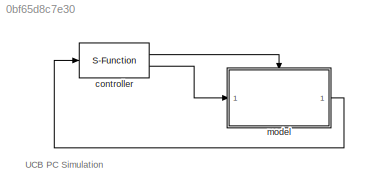
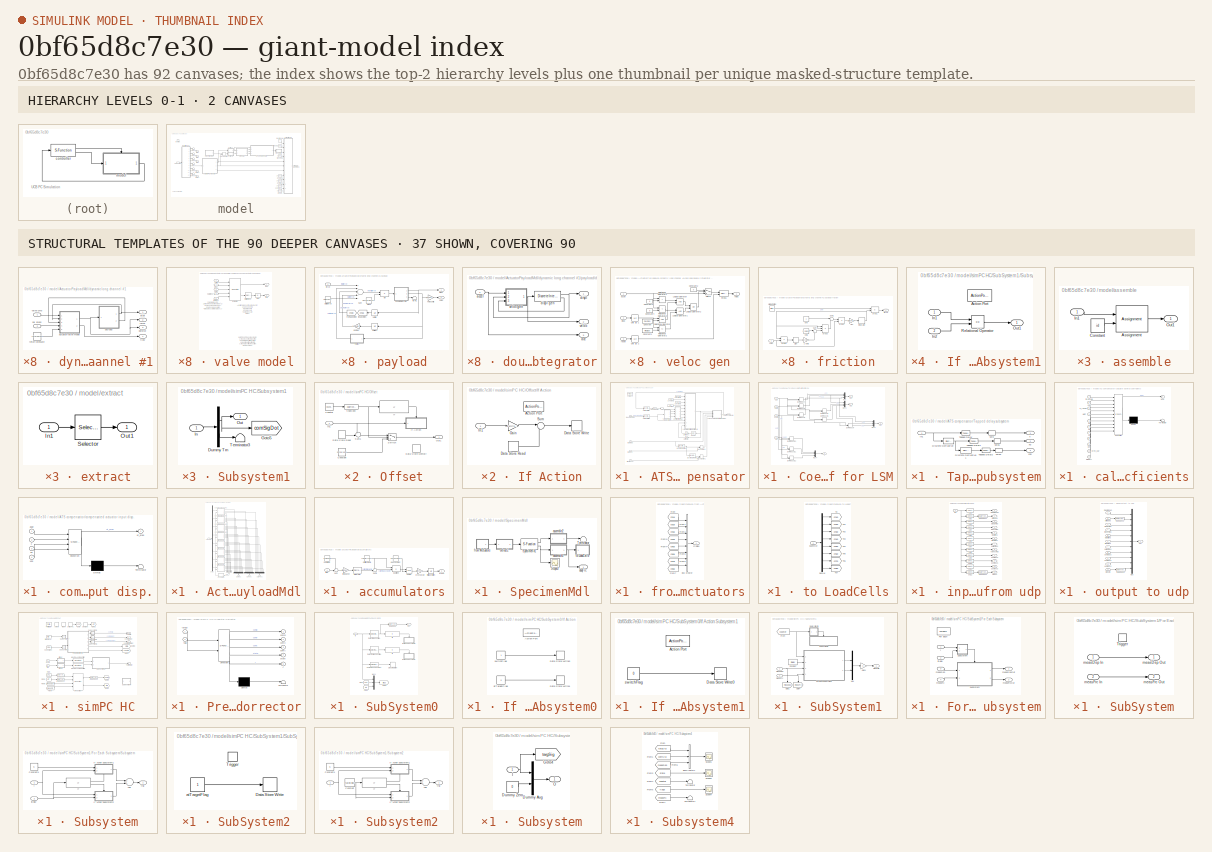
[diagram: thumbnail index - top-2 hierarchy levels (2 canvases) + 37 structural-template representatives of the remaining 90 canvases]
MODEL slx_0bf65d8c7e30
KIND model
CONFIG AbsTol = 1e-6
CONFIG EnableMultiTasking = on
CONFIG FixedStep = samplePeriod
CONFIG InitFcn = clear('all');\ninitializeSimulation;\nATS_setup;
CONFIG MaxStep = auto
CONFIG MinStep = auto
CONFIG PreLoadFcn = initializeSimulation;\nATS_setup;
CONFIG RelTol = 1e-3
CONFIG SampleTimeConstraint = Unconstrained
CONFIG Solver = FixedStepDiscrete
CONFIG SolverName = FixedStepDiscrete
CONFIG StartTime = 0.0
CONFIG StopTime = inf
BLOCK [S-Function] controller
  EnableBusSupport = off
  FunctionName = mtsConnect
  Parameters = '127.0.0.1',5002,nUDPInp,nUDPOut
  Ports = [1, 2]
  SFcnIsStateOwnerBlock = off
  SFunctionDeploymentMode = off
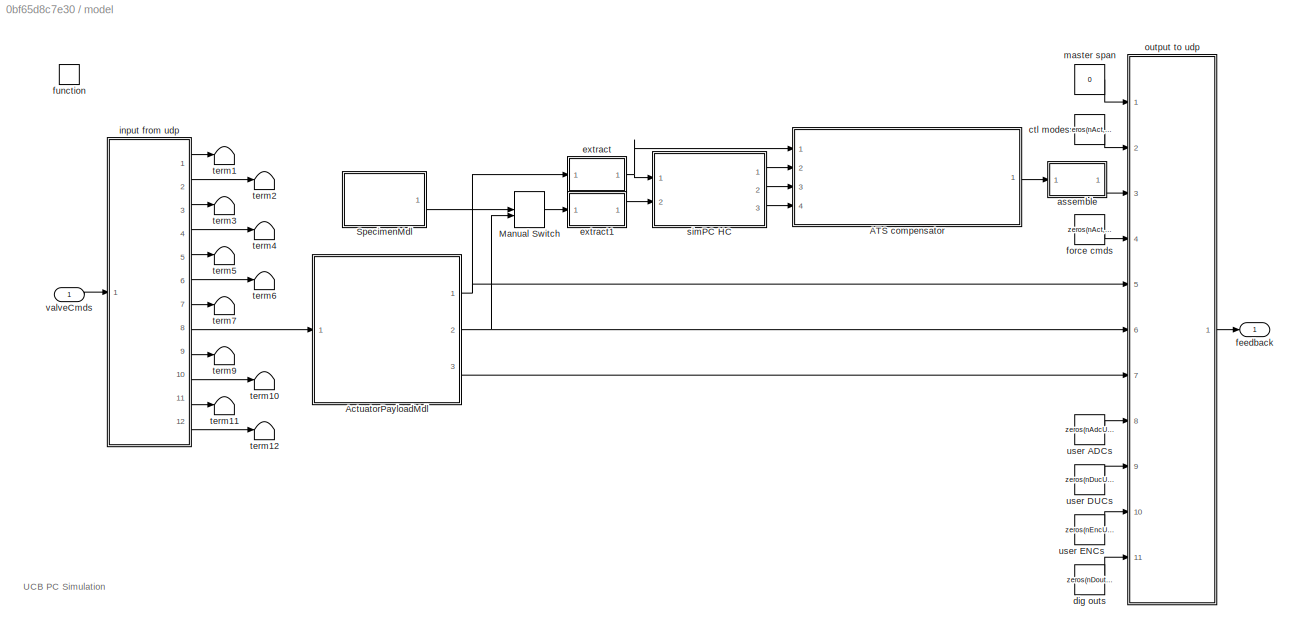
BLOCK [SubSystem] model
  Ports = [1, 1, 0, 1]
  RequestExecContextInheritance = off
  TreatAsAtomicUnit = on
BLOCK [SubSystem] model/ATS compensator
  Ports = [4, 1]
  RequestExecContextInheritance = off
BLOCK [DiscreteTransferFcn] model/ATS compensator/Butterworth filter
  Denominator = Zden
  InputPortMap = u0
  Numerator = Znum
  Ports = [1, 1]
BLOCK [DiscreteTransferFcn] model/ATS compensator/Butterworth filter1
  Denominator = Zden
  InputPortMap = u0
  Numerator = Znum
  Ports = [1, 1]
BLOCK [SubSystem] model/ATS compensator/Coefficient for LSM
  Ports = [4, 4]
  RequestExecContextInheritance = off
BLOCK [DotProduct] model/ATS compensator/Coefficient for LSM/Dot Product
  OutDataTypeStr = Inherit: Inherit via internal rule
BLOCK [DotProduct] model/ATS compensator/Coefficient for LSM/Dot Product1
  OutDataTypeStr = Inherit: Inherit via internal rule
BLOCK [DotProduct] model/ATS compensator/Coefficient for LSM/Dot Product10
  OutDataTypeStr = Inherit: Inherit via internal rule
BLOCK [DotProduct] model/ATS compensator/Coefficient for LSM/Dot Product11
  OutDataTypeStr = Inherit: Inherit via internal rule
BLOCK [DotProduct] model/ATS compensator/Coefficient for LSM/Dot Product12
  OutDataTypeStr = Inherit: Inherit via internal rule
BLOCK [DotProduct] model/ATS compensator/Coefficient for LSM/Dot Product2
  OutDataTypeStr = Inherit: Inherit via internal rule
BLOCK [DotProduct] model/ATS compensator/Coefficient for LSM/Dot Product4
  OutDataTypeStr = Inherit: Inherit via internal rule
BLOCK [DotProduct] model/ATS compensator/Coefficient for LSM/Dot Product5
  OutDataTypeStr = Inherit: Inherit via internal rule
BLOCK [DotProduct] model/ATS compensator/Coefficient for LSM/Dot Product7
  OutDataTypeStr = Inherit: Inherit via internal rule
BLOCK [Mux] model/ATS compensator/Coefficient for LSM/Mux
  DisplayOption = bar
  Inputs = 3
  Ports = [3, 1]
BLOCK [Mux] model/ATS compensator/Coefficient for LSM/Mux1
  DisplayOption = bar
  Inputs = 3
  Ports = [3, 1]
BLOCK [Mux] model/ATS compensator/Coefficient for LSM/Mux2
  DisplayOption = bar
  Inputs = 3
  Ports = [3, 1]
BLOCK [Mux] model/ATS compensator/Coefficient for LSM/Mux4
  DisplayOption = bar
  Inputs = 3
  Ports = [3, 1]
BLOCK [Outport] model/ATS compensator/Coefficient for LSM/X(1,:)
  IconDisplay = Port number
BLOCK [Outport] model/ATS compensator/Coefficient for LSM/X(2,:)
  IconDisplay = Port number
  Port = 2
BLOCK [Outport] model/ATS compensator/Coefficient for LSM/X(3,:)
  IconDisplay = Port number
  Port = 3
BLOCK [Outport] model/ATS compensator/Coefficient for LSM/Y
  IconDisplay = Port number
  Port = 4
BLOCK [Inport] model/ATS compensator/Coefficient for LSM/um
  IconDisplay = Port number
BLOCK [Inport] model/ATS compensator/Coefficient for LSM/x2dm
  IconDisplay = Port number
  Port = 4
BLOCK [Inport] model/ATS compensator/Coefficient for LSM/xdm
  IconDisplay = Port number
  Port = 3
BLOCK [Inport] model/ATS compensator/Coefficient for LSM/xm
  IconDisplay = Port number
  Port = 2
BLOCK [Constant] model/ATS compensator/Constant1
  Value = param
BLOCK [Constant] model/ATS compensator/Constant2
  Value = P_range
BLOCK [Constant] model/ATS compensator/Constant3
  Value = threshold
BLOCK [Constant] model/ATS compensator/Constant4
  Value = MRC
BLOCK [Reference] model/ATS compensator/Discrete Derivative  REF=simulink/Discrete/Discrete Derivative
  Ports = [1, 1]
  SourceBlock = simulink/Discrete/Discrete Derivative
  SourceProductBaseCode = SL
  SourceProductName = Simulink
  SourceType = Discrete Derivative
BLOCK [Reference] model/ATS compensator/Discrete Derivative1  REF=simulink/Discrete/Discrete Derivative
  Ports = [1, 1]
  SourceBlock = simulink/Discrete/Discrete Derivative
  SourceProductBaseCode = SL
  SourceProductName = Simulink
  SourceType = Discrete Derivative
BLOCK [ForEach] model/ATS compensator/For Each
  DisableCoverage = on
  IndexMode = One-based
  IterateSubsysMaskParameter = on,on
  Ports = []
  SubsysMaskParameterIterationDimension = 2,2
BLOCK [ManualSwitch] model/ATS compensator/Manual Switch
  CurrentSetting = 0
BLOCK [ManualSwitch] model/ATS compensator/Manual Switch1
  CurrentSetting = 0
BLOCK [Selector] model/ATS compensator/Selector
  IndexOptions = Index vector (dialog)
  Indices = 4
  InputPortWidth = 4
  OutputSizes = 1
  Ports = [1, 1]
BLOCK [Reference] model/ATS compensator/Tapped Delay  REF=simulink/Discrete/Tapped Delay
  Ports = [1, 1]
  SourceBlock = simulink/Discrete/Tapped Delay
  SourceProductBaseCode = SL
  SourceProductName = Simulink
  SourceType = Tapped Delay Line
BLOCK [SubSystem] model/ATS compensator/Tapped delay subsystem
  Ports = [1, 3]
  RequestExecContextInheritance = off
BLOCK [Reference] model/ATS compensator/Tapped delay subsystem/Discrete Derivative  REF=simulink/Discrete/Discrete Derivative
  Ports = [1, 1]
  SourceBlock = simulink/Discrete/Discrete Derivative
  SourceProductBaseCode = SL
  SourceProductName = Simulink
  SourceType = Discrete Derivative
BLOCK [Reference] model/ATS compensator/Tapped delay subsystem/Discrete Derivative1  REF=simulink/Discrete/Discrete Derivative
  Ports = [1, 1]
  SourceBlock = simulink/Discrete/Discrete Derivative
  SourceProductBaseCode = SL
  SourceProductName = Simulink
  SourceType = Discrete Derivative
BLOCK [Inport] model/ATS compensator/Tapped delay subsystem/In1
  IconDisplay = Port number
BLOCK [Reference] model/ATS compensator/Tapped delay subsystem/Tapped Delay  REF=simulink/Discrete/Tapped Delay
  Ports = [1, 1]
  SourceBlock = simulink/Discrete/Tapped Delay
  SourceProductBaseCode = SL
  SourceProductName = Simulink
  SourceType = Tapped Delay Line
BLOCK [Reference] model/ATS compensator/Tapped delay subsystem/Tapped Delay1  REF=simulink/Discrete/Tapped Delay
  Ports = [1, 1]
  SourceBlock = simulink/Discrete/Tapped Delay
  SourceProductBaseCode = SL
  SourceProductName = Simulink
  SourceType = Tapped Delay Line
BLOCK [Reference] model/ATS compensator/Tapped delay subsystem/Tapped Delay2  REF=simulink/Discrete/Tapped Delay
  Ports = [1, 1]
  SourceBlock = simulink/Discrete/Tapped Delay
  SourceProductBaseCode = SL
  SourceProductName = Simulink
  SourceType = Tapped Delay Line
BLOCK [Selector] model/ATS compensator/Tapped delay subsystem/skip
  IndexOptions = Index vector (dialog)
  Indices = [1:SN:Nl]
  InputPortWidth = Nl
  OutputSizes = 1
  Ports = [1, 1]
BLOCK [Selector] model/ATS compensator/Tapped delay subsystem/skip1
  IndexOptions = Index vector (dialog)
  Indices = [1:SN:Nl]
  InputPortWidth = Nl
  OutputSizes = 1
  Ports = [1, 1]
BLOCK [Selector] model/ATS compensator/Tapped delay subsystem/skip2
  IndexOptions = Index vector (dialog)
  Indices = [1:SN:Nl]
  InputPortWidth = Nl
  OutputSizes = 1
  Ports = [1, 1]
BLOCK [Outport] model/ATS compensator/Tapped delay subsystem/x
  IconDisplay = Port number
BLOCK [Outport] model/ATS compensator/Tapped delay subsystem/x2d
  IconDisplay = Port number
  Port = 3
BLOCK [Outport] model/ATS compensator/Tapped delay subsystem/xd
  IconDisplay = Port number
  Port = 2
BLOCK [UnitDelay] model/ATS compensator/Unit Delay
  HasFrameUpgradeWarning = on
  SampleTime = -1
BLOCK [UnitDelay] model/ATS compensator/Unit Delay1
  HasFrameUpgradeWarning = on
  SampleTime = -1
BLOCK [SubSystem] model/ATS compensator/calculate optimal coefficients
  ErrorFcn = Stateflow.Translate.translate
  PermitHierarchicalResolution = ExplicitOnly
  Ports = [11, 1]
  RequestExecContextInheritance = off
  SFBlockType = MATLAB Function
  TreatAsAtomicUnit = on
BLOCK [Demux] model/ATS compensator/calculate optimal coefficients/ Demux 
  Outputs = 1
  Ports = [1, 1]
BLOCK [S-Function] model/ATS compensator/calculate optimal coefficients/ SFunction 
  EnableBusSupport = on
  FunctionName = sf_sfun
  PortCounts = [11 2]
  Ports = [11, 2]
  SFcnIsStateOwnerBlock = off
  SFunctionDeploymentMode = off
  Tag = Stateflow S-Function HybridControllerD2D2 14
BLOCK [Terminator] model/ATS compensator/calculate optimal coefficients/ Terminator 
BLOCK [Inport] model/ATS compensator/calculate optimal coefficients/MRC
  IconDisplay = Port number
  Port = 4
BLOCK [Inport] model/ATS compensator/calculate optimal coefficients/X1
  IconDisplay = Port number
  Port = 5
BLOCK [Inport] model/ATS compensator/calculate optimal coefficients/X2
  IconDisplay = Port number
  Port = 6
BLOCK [Inport] model/ATS compensator/calculate optimal coefficients/X3
  IconDisplay = Port number
  Port = 7
BLOCK [Inport] model/ATS compensator/calculate optimal coefficients/Y
  IconDisplay = Port number
  Port = 8
BLOCK [Outport] model/ATS compensator/calculate optimal coefficients/apar
  IconDisplay = Port number
BLOCK [Inport] model/ATS compensator/calculate optimal coefficients/dm
  IconDisplay = Port number
  Port = 9
BLOCK [Inport] model/ATS compensator/calculate optimal coefficients/p_range
  IconDisplay = Port number
  Port = 3
BLOCK [Inport] model/ATS compensator/calculate optimal coefficients/par
  IconDisplay = Port number
  Port = 2
BLOCK [Inport] model/ATS compensator/calculate optimal coefficients/prev_par
  IconDisplay = Port number
  Port = 10
BLOCK [Inport] model/ATS compensator/calculate optimal coefficients/threshold
  IconDisplay = Port number
BLOCK [Inport] model/ATS compensator/calculate optimal coefficients/triggeri
  IconDisplay = Port number
  Port = 11
BLOCK [SubSystem] model/ATS compensator/compensated actuator input disp.
  ErrorFcn = Stateflow.Translate.translate
  PermitHierarchicalResolution = ExplicitOnly
  Ports = [4, 1]
  RequestExecContextInheritance = off
  SFBlockType = MATLAB Function
  TreatAsAtomicUnit = on
BLOCK [Demux] model/ATS compensator/compensated actuator input disp./ Demux 
  Outputs = 1
  Ports = [1, 1]
BLOCK [S-Function] model/ATS compensator/compensated actuator input disp./ SFunction 
  EnableBusSupport = on
  FunctionName = sf_sfun
  PortCounts = [4 2]
  Ports = [4, 2]
  SFcnIsStateOwnerBlock = off
  SFunctionDeploymentMode = off
  Tag = Stateflow S-Function HybridControllerD2D2 15
BLOCK [Terminator] model/ATS compensator/compensated actuator input disp./ Terminator 
BLOCK [Inport] model/ATS compensator/compensated actuator input disp./apar
  IconDisplay = Port number
BLOCK [Outport] model/ATS compensator/compensated actuator input disp./ut_pred
  IconDisplay = Port number
BLOCK [Inport] model/ATS compensator/compensated actuator input disp./x
  IconDisplay = Port number
  Port = 2
BLOCK [Inport] model/ATS compensator/compensated actuator input disp./x2d
  IconDisplay = Port number
  Port = 4
BLOCK [Inport] model/ATS compensator/compensated actuator input disp./xd
  IconDisplay = Port number
  Port = 3
BLOCK [Outport] model/ATS compensator/compensated disp
  ConcatenationDimension = 1
  IconDisplay = Port number
BLOCK [Inport] model/ATS compensator/measured disp
  IconDisplay = Port number
  Partition = on
  PartitionDimension = 1
  PartitionOffset = 0
  PartitionWidth = 1
BLOCK [Selector] model/ATS compensator/skip
  IndexOptions = Index vector (dialog)
  Indices = [1:SN:Nl]
  InputPortWidth = Nl
  OutputSizes = 1
  Ports = [1, 1]
BLOCK [Inport] model/ATS compensator/target accel
  IconDisplay = Port number
  Partition = on
  PartitionDimension = 1
  PartitionOffset = 0
  PartitionWidth = 1
  Port = 4
BLOCK [Inport] model/ATS compensator/target disp
  IconDisplay = Port number
  Partition = on
  PartitionDimension = 1
  PartitionOffset = 0
  PartitionWidth = 1
  Port = 2
BLOCK [Inport] model/ATS compensator/target vel
  IconDisplay = Port number
  Partition = on
  PartitionDimension = 1
  PartitionOffset = 0
  PartitionWidth = 1
  Port = 3
BLOCK [SubSystem] model/ActuatorPayloadMdl
  Ports = [1, 3]
  RequestExecContextInheritance = off
BLOCK [Demux] model/ActuatorPayloadMdl/Demux
  Outputs = nAct
  Ports = [1, 8]
BLOCK [Mux] model/ActuatorPayloadMdl/Mux
  DisplayOption = bar
  Inputs = nAct
  Ports = [8, 1]
BLOCK [Mux] model/ActuatorPayloadMdl/Mux1
  DisplayOption = bar
  Inputs = nAct
  Ports = [8, 1]
BLOCK [Mux] model/ActuatorPayloadMdl/Mux2
  DisplayOption = bar
  Inputs = nAct
  Ports = [8, 1]
BLOCK [Sum] model/ActuatorPayloadMdl/Sum
  InputSameDT = off
  Inputs = ++++++++
  OutDataTypeStr = Inherit: Inherit via internal rule
  Ports = [8, 1]
BLOCK [SubSystem] model/ActuatorPayloadMdl/accumulators
  Ports = [1, 1]
  RequestExecContextInheritance = off
BLOCK [Sum] model/ActuatorPayloadMdl/accumulators/Sum
  IconShape = round
  Inputs = +-|
  Ports = [2, 1]
BLOCK [Sum] model/ActuatorPayloadMdl/accumulators/Sum1
  IconShape = round
  Inputs = +-|
  Ports = [2, 1]
BLOCK [Constant] model/ActuatorPayloadMdl/accumulators/bottle volume
  Value = volume*volumeCanon
BLOCK [Inport] model/ActuatorPayloadMdl/accumulators/flow
  IconDisplay = Port number
BLOCK [Gain] model/ActuatorPayloadMdl/accumulators/flowCanon
  Gain = flowCanon
BLOCK [Constant] model/ActuatorPayloadMdl/accumulators/gas constant
  Value = gasConstant
BLOCK [UnitDelay] model/ActuatorPayloadMdl/accumulators/initial condition
  HasFrameUpgradeWarning = on
  InitialCondition = supplyPress
  SampleTime = -1
BLOCK [DiscreteIntegrator] model/ActuatorPayloadMdl/accumulators/integrator
  ICPrevOutput = DiscIntNeverNeededParam
  ICPrevScaledInput = DiscIntNeverNeededParam
  InitialCondition = maxOilVolume*volumeCanon
  LimitOutput = on
  LowerSaturationLimit = 0
  Ports = [1, 1]
  SampleTime = -1
  UpperSaturationLimit = maxOilVolume*volumeCanon
BLOCK [Math] model/ActuatorPayloadMdl/accumulators/power
  Operator = pow
  Ports = [2, 1]
BLOCK [Gain] model/ActuatorPayloadMdl/accumulators/precharge
  Gain = precharge
BLOCK [Outport] model/ActuatorPayloadMdl/accumulators/press
  IconDisplay = Port number
BLOCK [Constant] model/ActuatorPayloadMdl/accumulators/pump flow
  Value = pumpFlow
BLOCK [Product] model/ActuatorPayloadMdl/accumulators/quotient
  Inputs = */
  Ports = [2, 1]
  RndMeth = Floor
BLOCK [Outport] model/ActuatorPayloadMdl/deltaPFbks
  IconDisplay = Port number
  Port = 3
BLOCK [Outport] model/ActuatorPayloadMdl/displFbks
  IconDisplay = Port number
BLOCK [SubSystem] model/ActuatorPayloadMdl/dynamic long channel #1
  Ports = [2, 4]
  RequestExecContextInheritance = off
BLOCK [SubSystem] model/ActuatorPayloadMdl/dynamic long channel #1/actuator//valve model
  Ports = [5, 2]
  RequestExecContextInheritance = off
BLOCK [Abs] model/ActuatorPayloadMdl/dynamic long channel #1/actuator//valve model/abs
BLOCK [S-Function] model/ActuatorPayloadMdl/dynamic long channel #1/actuator//valve model/actuator
  EnableBusSupport = off
  FunctionName = actuator
  Parameters = actParamsB
  Ports = [5, 2]
  SFcnIsStateOwnerBlock = off
  SFunctionDeploymentMode = off
BLOCK [Inport] model/ActuatorPayloadMdl/dynamic long channel #1/actuator//valve model/cmd
  IconDisplay = Port number
BLOCK [Inport] model/ActuatorPayloadMdl/dynamic long channel #1/actuator//valve model/displ
  IconDisplay = Port number
  Port = 2
BLOCK [Outport] model/ActuatorPayloadMdl/dynamic long channel #1/actuator//valve model/flow
  IconDisplay = Port number
  Port = 2
BLOCK [Outport] model/ActuatorPayloadMdl/dynamic long channel #1/actuator//valve model/force
  IconDisplay = Port number
BLOCK [Inport] model/ActuatorPayloadMdl/dynamic long channel #1/actuator//valve model/rtn press
  IconDisplay = Port number
  Port = 5
BLOCK [Inport] model/ActuatorPayloadMdl/dynamic long channel #1/actuator//valve model/spl press
  IconDisplay = Port number
  Port = 4
BLOCK [Selector] model/ActuatorPayloadMdl/dynamic long channel #1/actuator//valve model/total flow sel
  IndexOptions = Index vector (dialog)
  Indices = 9
  InputPortWidth = 12
  OutputSizes = 1
  Ports = [1, 1]
BLOCK [Inport] model/ActuatorPayloadMdl/dynamic long channel #1/actuator//valve model/veloc
  IconDisplay = Port number
  Port = 3
BLOCK [Outport] model/ActuatorPayloadMdl/dynamic long channel #1/displ
  IconDisplay = Port number
BLOCK [Outport] model/ActuatorPayloadMdl/dynamic long channel #1/dpforce
  IconDisplay = Port number
  Port = 3
BLOCK [Outport] model/ActuatorPayloadMdl/dynamic long channel #1/flow
  IconDisplay = Port number
  Port = 4
BLOCK [Outport] model/ActuatorPayloadMdl/dynamic long channel #1/force
  IconDisplay = Port number
  Port = 2
BLOCK [SubSystem] model/ActuatorPayloadMdl/dynamic long channel #1/payload
  Ports = [1, 2]
  RequestExecContextInheritance = off
BLOCK [Sum] model/ActuatorPayloadMdl/dynamic long channel #1/payload/Sum
  Inputs = +----
  Ports = [5, 1]
BLOCK [Gain] model/ActuatorPayloadMdl/dynamic long channel #1/payload/damper
  Gain = damperB*damperCanon
BLOCK [Outport] model/ActuatorPayloadMdl/dynamic long channel #1/payload/displ
  IconDisplay = Port number
BLOCK [Product] model/ActuatorPayloadMdl/dynamic long channel #1/payload/div
  Inputs = */
  Ports = [2, 1]
  RndMeth = Floor
BLOCK [SubSystem] model/ActuatorPayloadMdl/dynamic long channel #1/payload/double integrator
  Ports = [1, 3]
  RequestExecContextInheritance = off
BLOCK [Outport] model/ActuatorPayloadMdl/dynamic long channel #1/payload/double integrator/acc
  IconDisplay = Port number
  Port = 3
BLOCK [Inport] model/ActuatorPayloadMdl/dynamic long channel #1/payload/double integrator/accel
  IconDisplay = Port number
BLOCK [Outport] model/ActuatorPayloadMdl/dynamic long channel #1/payload/double integrator/displ
  IconDisplay = Port number
BLOCK [DiscreteIntegrator] model/ActuatorPayloadMdl/dynamic long channel #1/payload/double integrator/displ gen
  ICPrevOutput = DiscIntNeverNeededParam
  ICPrevScaledInput = DiscIntNeverNeededParam
  IntegratorMethod = Integration: Backward Euler
  LimitOutput = on
  LowerSaturationLimit = minDisplB
  Ports = [1, 2]
  SampleTime = -1
  ShowSaturationPort = on
  UpperSaturationLimit = maxDisplB
BLOCK [Outport] model/ActuatorPayloadMdl/dynamic long channel #1/payload/double integrator/veloc
  IconDisplay = Port number
  Port = 2
BLOCK [SubSystem] model/ActuatorPayloadMdl/dynamic long channel #1/payload/double integrator/veloc gen
  Ports = [3, 1]
  RequestExecContextInheritance = off
BLOCK [Constant] model/ActuatorPayloadMdl/dynamic long channel #1/payload/double integrator/veloc gen/Constant
  Value = maxDispl
BLOCK [Constant] model/ActuatorPayloadMdl/dynamic long channel #1/payload/double integrator/veloc gen/Constant1
  Value = minDispl
BLOCK [Constant] model/ActuatorPayloadMdl/dynamic long channel #1/payload/double integrator/veloc gen/Constant2
  Value = 0
BLOCK [Constant] model/ActuatorPayloadMdl/dynamic long channel #1/payload/double integrator/veloc gen/Constant3
  Value = 0
BLOCK [Constant] model/ActuatorPayloadMdl/dynamic long channel #1/payload/double integrator/veloc gen/Constant4
  Value = 0
BLOCK [Logic] model/ActuatorPayloadMdl/dynamic long channel #1/payload/double integrator/veloc gen/Logical Operator
  Ports = [2, 1]
BLOCK [Logic] model/ActuatorPayloadMdl/dynamic long channel #1/payload/double integrator/veloc gen/Logical Operator1
  Ports = [2, 1]
BLOCK [Logic] model/ActuatorPayloadMdl/dynamic long channel #1/payload/double integrator/veloc gen/Logical Operator2
  Operator = OR
  Ports = [2, 1]
BLOCK [RelationalOperator] model/ActuatorPayloadMdl/dynamic long channel #1/payload/double integrator/veloc gen/Relational Operator
  Ports = [2, 1]
BLOCK [RelationalOperator] model/ActuatorPayloadMdl/dynamic long channel #1/payload/double integrator/veloc gen/Relational Operator1
  Operator = >
  Ports = [2, 1]
BLOCK [RelationalOperator] model/ActuatorPayloadMdl/dynamic long channel #1/payload/double integrator/veloc gen/Relational Operator2
  Operator = <=
  Ports = [2, 1]
BLOCK [RelationalOperator] model/ActuatorPayloadMdl/dynamic long channel #1/payload/double integrator/veloc gen/Relational Operator3
  Operator = <
  Ports = [2, 1]
BLOCK [Switch] model/ActuatorPayloadMdl/dynamic long channel #1/payload/double integrator/veloc gen/Switch
  Threshold = 0.5
BLOCK [Inport] model/ActuatorPayloadMdl/dynamic long channel #1/payload/double integrator/veloc gen/accel
  IconDisplay = Port number
BLOCK [Inport] model/ActuatorPayloadMdl/dynamic long channel #1/payload/double integrator/veloc gen/displ
  IconDisplay = Port number
  Port = 2
BLOCK [DiscreteIntegrator] model/ActuatorPayloadMdl/dynamic long channel #1/payload/double integrator/veloc gen/integ1
  ExternalReset = either
  ICPrevOutput = DiscIntNeverNeededParam
  ICPrevScaledInput = DiscIntNeverNeededParam
  IntegratorMethod = Integration: Backward Euler
  LimitOutput = on
  LowerSaturationLimit = minVeloc
  Ports = [2, 1]
  SampleTime = -1
  UpperSaturationLimit = maxVeloc
BLOCK [Inport] model/ActuatorPayloadMdl/dynamic long channel #1/payload/double integrator/veloc gen/reset
  IconDisplay = Port number
  Port = 3
BLOCK [UnitDelay] model/ActuatorPayloadMdl/dynamic long channel #1/payload/double integrator/veloc gen/unit dly 1
  HasFrameUpgradeWarning = on
  SampleTime = -1
BLOCK [UnitDelay] model/ActuatorPayloadMdl/dynamic long channel #1/payload/double integrator/veloc gen/unit dly 2
  HasFrameUpgradeWarning = on
  SampleTime = -1
BLOCK [Outport] model/ActuatorPayloadMdl/dynamic long channel #1/payload/double integrator/veloc gen/veloc
  IconDisplay = Port number
BLOCK [Inport] model/ActuatorPayloadMdl/dynamic long channel #1/payload/force
  IconDisplay = Port number
BLOCK [SubSystem] model/ActuatorPayloadMdl/dynamic long channel #1/payload/friction
  Ports = [1, 1]
  RequestExecContextInheritance = off
BLOCK [Gain] model/ActuatorPayloadMdl/dynamic long channel #1/payload/friction/1-beta
  Gain = 1-hysteresis
BLOCK [Signum] model/ActuatorPayloadMdl/dynamic long channel #1/payload/friction/Sign
BLOCK [Sum] model/ActuatorPayloadMdl/dynamic long channel #1/payload/friction/Sum
  IconShape = round
  InputSameDT = off
  Inputs = |++
  OutDataTypeStr = Inherit: Inherit via internal rule
  Ports = [2, 1]
BLOCK [Sum] model/ActuatorPayloadMdl/dynamic long channel #1/payload/friction/Sum1
  IconShape = round
  InputSameDT = off
  Inputs = |+-
  OutDataTypeStr = Inherit: Inherit via internal rule
  Ports = [2, 1]
BLOCK [Constant] model/ActuatorPayloadMdl/dynamic long channel #1/payload/friction/beta
  Value = hysteresis
BLOCK [Outport] model/ActuatorPayloadMdl/dynamic long channel #1/payload/friction/force
  IconDisplay = Port number
BLOCK [DiscreteIntegrator] model/ActuatorPayloadMdl/dynamic long channel #1/payload/friction/integrator
  ICPrevOutput = DiscIntNeverNeededParam
  ICPrevScaledInput = DiscIntNeverNeededParam
  LimitOutput = on
  LowerSaturationLimit = -1
  Ports = [1, 1]
  SampleTime = -1
  UpperSaturationLimit = 1
BLOCK [Constant] model/ActuatorPayloadMdl/dynamic long channel #1/payload/friction/one
BLOCK [Product] model/ActuatorPayloadMdl/dynamic long channel #1/payload/friction/prod1
  Ports = [2, 1]
  RndMeth = Floor
BLOCK [Product] model/ActuatorPayloadMdl/dynamic long channel #1/payload/friction/prod2
  Ports = [2, 1]
  RndMeth = Floor
BLOCK [Product] model/ActuatorPayloadMdl/dynamic long channel #1/payload/friction/prod3
  Inputs = 3
  Ports = [3, 1]
  RndMeth = Floor
BLOCK [Product] model/ActuatorPayloadMdl/dynamic long channel #1/payload/friction/prod4
  Ports = [2, 1]
  RndMeth = Floor
BLOCK [Constant] model/ActuatorPayloadMdl/dynamic long channel #1/payload/friction/sliding friction
  Value = friction
BLOCK [Inport] model/ActuatorPayloadMdl/dynamic long channel #1/payload/friction/veloc
  IconDisplay = Port number
BLOCK [Gain] model/ActuatorPayloadMdl/dynamic long channel #1/payload/friction/y inv
  Gain = 1/max(eps, yieldDispl)
BLOCK [From] model/ActuatorPayloadMdl/dynamic long channel #1/payload/from specimen
  GotoTag = ch3b
  TagVisibility = global
BLOCK [Constant] model/ActuatorPayloadMdl/dynamic long channel #1/payload/mass
  Value = massB*massCanon
BLOCK [Constant] model/ActuatorPayloadMdl/dynamic long channel #1/payload/static force
  Value = staticForceB*forceCanon
BLOCK [Terminator] model/ActuatorPayloadMdl/dynamic long channel #1/payload/term1
BLOCK [Goto] model/ActuatorPayloadMdl/dynamic long channel #1/payload/to specimen
  GotoTag = ch3a
  TagVisibility = global
BLOCK [UnitDelay] model/ActuatorPayloadMdl/dynamic long channel #1/payload/unit dly
  HasFrameUpgradeWarning = on
  SampleTime = -1
BLOCK [UnitDelay] model/ActuatorPayloadMdl/dynamic long channel #1/payload/unit dly1
  HasFrameUpgradeWarning = on
  SampleTime = -1
BLOCK [Outport] model/ActuatorPayloadMdl/dynamic long channel #1/payload/veloc
  IconDisplay = Port number
  Port = 2
BLOCK [Gain] model/ActuatorPayloadMdl/dynamic long channel #1/payload/veloc units
  Gain = 1/velocCanon
BLOCK [Constant] model/ActuatorPayloadMdl/dynamic long channel #1/return pressure
  Value = returnPress
BLOCK [Inport] model/ActuatorPayloadMdl/dynamic long channel #1/spl press
  IconDisplay = Port number
  Port = 2
BLOCK [Inport] model/ActuatorPayloadMdl/dynamic long channel #1/valve cmd
  IconDisplay = Port number
BLOCK [SubSystem] model/ActuatorPayloadMdl/dynamic long channel #2
  Ports = [2, 4]
  RequestExecContextInheritance = off
BLOCK [SubSystem] model/ActuatorPayloadMdl/dynamic long channel #2/actuator//valve model
  Ports = [5, 2]
  RequestExecContextInheritance = off
BLOCK [Abs] model/ActuatorPayloadMdl/dynamic long channel #2/actuator//valve model/abs
BLOCK [S-Function] model/ActuatorPayloadMdl/dynamic long channel #2/actuator//valve model/actuator
  EnableBusSupport = off
  FunctionName = actuator
  Parameters = actParamsB
  Ports = [5, 2]
  SFcnIsStateOwnerBlock = off
  SFunctionDeploymentMode = off
BLOCK [Inport] model/ActuatorPayloadMdl/dynamic long channel #2/actuator//valve model/cmd
  IconDisplay = Port number
BLOCK [Inport] model/ActuatorPayloadMdl/dynamic long channel #2/actuator//valve model/displ
  IconDisplay = Port number
  Port = 2
BLOCK [Outport] model/ActuatorPayloadMdl/dynamic long channel #2/actuator//valve model/flow
  IconDisplay = Port number
  Port = 2
BLOCK [Outport] model/ActuatorPayloadMdl/dynamic long channel #2/actuator//valve model/force
  IconDisplay = Port number
BLOCK [Inport] model/ActuatorPayloadMdl/dynamic long channel #2/actuator//valve model/rtn press
  IconDisplay = Port number
  Port = 5
BLOCK [Inport] model/ActuatorPayloadMdl/dynamic long channel #2/actuator//valve model/spl press
  IconDisplay = Port number
  Port = 4
BLOCK [Selector] model/ActuatorPayloadMdl/dynamic long channel #2/actuator//valve model/total flow sel
  IndexOptions = Index vector (dialog)
  Indices = 9
  InputPortWidth = 12
  OutputSizes = 1
  Ports = [1, 1]
BLOCK [Inport] model/ActuatorPayloadMdl/dynamic long channel #2/actuator//valve model/veloc
  IconDisplay = Port number
  Port = 3
BLOCK [Outport] model/ActuatorPayloadMdl/dynamic long channel #2/displ
  IconDisplay = Port number
BLOCK [Outport] model/ActuatorPayloadMdl/dynamic long channel #2/dpforce
  IconDisplay = Port number
  Port = 3
BLOCK [Outport] model/ActuatorPayloadMdl/dynamic long channel #2/flow
  IconDisplay = Port number
  Port = 4
BLOCK [Outport] model/ActuatorPayloadMdl/dynamic long channel #2/force
  IconDisplay = Port number
  Port = 2
BLOCK [SubSystem] model/ActuatorPayloadMdl/dynamic long channel #2/payload
  Ports = [1, 2]
  RequestExecContextInheritance = off
BLOCK [Sum] model/ActuatorPayloadMdl/dynamic long channel #2/payload/Sum
  Inputs = +----
  Ports = [5, 1]
BLOCK [Gain] model/ActuatorPayloadMdl/dynamic long channel #2/payload/damper
  Gain = damperB*damperCanon
BLOCK [Outport] model/ActuatorPayloadMdl/dynamic long channel #2/payload/displ
  IconDisplay = Port number
BLOCK [Product] model/ActuatorPayloadMdl/dynamic long channel #2/payload/div
  Inputs = */
  Ports = [2, 1]
  RndMeth = Floor
BLOCK [SubSystem] model/ActuatorPayloadMdl/dynamic long channel #2/payload/double integrator
  Ports = [1, 3]
  RequestExecContextInheritance = off
BLOCK [Outport] model/ActuatorPayloadMdl/dynamic long channel #2/payload/double integrator/acc
  IconDisplay = Port number
  Port = 3
BLOCK [Inport] model/ActuatorPayloadMdl/dynamic long channel #2/payload/double integrator/accel
  IconDisplay = Port number
BLOCK [Outport] model/ActuatorPayloadMdl/dynamic long channel #2/payload/double integrator/displ
  IconDisplay = Port number
BLOCK [DiscreteIntegrator] model/ActuatorPayloadMdl/dynamic long channel #2/payload/double integrator/displ gen
  ICPrevOutput = DiscIntNeverNeededParam
  ICPrevScaledInput = DiscIntNeverNeededParam
  IntegratorMethod = Integration: Backward Euler
  LimitOutput = on
  LowerSaturationLimit = minDisplB
  Ports = [1, 2]
  SampleTime = -1
  ShowSaturationPort = on
  UpperSaturationLimit = maxDisplB
BLOCK [Outport] model/ActuatorPayloadMdl/dynamic long channel #2/payload/double integrator/veloc
  IconDisplay = Port number
  Port = 2
BLOCK [SubSystem] model/ActuatorPayloadMdl/dynamic long channel #2/payload/double integrator/veloc gen
  Ports = [3, 1]
  RequestExecContextInheritance = off
BLOCK [Constant] model/ActuatorPayloadMdl/dynamic long channel #2/payload/double integrator/veloc gen/Constant
  Value = maxDispl
BLOCK [Constant] model/ActuatorPayloadMdl/dynamic long channel #2/payload/double integrator/veloc gen/Constant1
  Value = minDispl
BLOCK [Constant] model/ActuatorPayloadMdl/dynamic long channel #2/payload/double integrator/veloc gen/Constant2
  Value = 0
BLOCK [Constant] model/ActuatorPayloadMdl/dynamic long channel #2/payload/double integrator/veloc gen/Constant3
  Value = 0
BLOCK [Constant] model/ActuatorPayloadMdl/dynamic long channel #2/payload/double integrator/veloc gen/Constant4
  Value = 0
BLOCK [Logic] model/ActuatorPayloadMdl/dynamic long channel #2/payload/double integrator/veloc gen/Logical Operator
  Ports = [2, 1]
BLOCK [Logic] model/ActuatorPayloadMdl/dynamic long channel #2/payload/double integrator/veloc gen/Logical Operator1
  Ports = [2, 1]
BLOCK [Logic] model/ActuatorPayloadMdl/dynamic long channel #2/payload/double integrator/veloc gen/Logical Operator2
  Operator = OR
  Ports = [2, 1]
BLOCK [RelationalOperator] model/ActuatorPayloadMdl/dynamic long channel #2/payload/double integrator/veloc gen/Relational Operator
  Ports = [2, 1]
BLOCK [RelationalOperator] model/ActuatorPayloadMdl/dynamic long channel #2/payload/double integrator/veloc gen/Relational Operator1
  Operator = >
  Ports = [2, 1]
BLOCK [RelationalOperator] model/ActuatorPayloadMdl/dynamic long channel #2/payload/double integrator/veloc gen/Relational Operator2
  Operator = <=
  Ports = [2, 1]
BLOCK [RelationalOperator] model/ActuatorPayloadMdl/dynamic long channel #2/payload/double integrator/veloc gen/Relational Operator3
  Operator = <
  Ports = [2, 1]
BLOCK [Switch] model/ActuatorPayloadMdl/dynamic long channel #2/payload/double integrator/veloc gen/Switch
  Threshold = 0.5
BLOCK [Inport] model/ActuatorPayloadMdl/dynamic long channel #2/payload/double integrator/veloc gen/accel
  IconDisplay = Port number
BLOCK [Inport] model/ActuatorPayloadMdl/dynamic long channel #2/payload/double integrator/veloc gen/displ
  IconDisplay = Port number
  Port = 2
BLOCK [DiscreteIntegrator] model/ActuatorPayloadMdl/dynamic long channel #2/payload/double integrator/veloc gen/integ1
  ExternalReset = either
  ICPrevOutput = DiscIntNeverNeededParam
  ICPrevScaledInput = DiscIntNeverNeededParam
  IntegratorMethod = Integration: Backward Euler
  LimitOutput = on
  LowerSaturationLimit = minVeloc
  Ports = [2, 1]
  SampleTime = -1
  UpperSaturationLimit = maxVeloc
BLOCK [Inport] model/ActuatorPayloadMdl/dynamic long channel #2/payload/double integrator/veloc gen/reset
  IconDisplay = Port number
  Port = 3
BLOCK [UnitDelay] model/ActuatorPayloadMdl/dynamic long channel #2/payload/double integrator/veloc gen/unit dly 1
  HasFrameUpgradeWarning = on
  SampleTime = -1
BLOCK [UnitDelay] model/ActuatorPayloadMdl/dynamic long channel #2/payload/double integrator/veloc gen/unit dly 2
  HasFrameUpgradeWarning = on
  SampleTime = -1
BLOCK [Outport] model/ActuatorPayloadMdl/dynamic long channel #2/payload/double integrator/veloc gen/veloc
  IconDisplay = Port number
BLOCK [Inport] model/ActuatorPayloadMdl/dynamic long channel #2/payload/force
  IconDisplay = Port number
BLOCK [SubSystem] model/ActuatorPayloadMdl/dynamic long channel #2/payload/friction
  Ports = [1, 1]
  RequestExecContextInheritance = off
BLOCK [Gain] model/ActuatorPayloadMdl/dynamic long channel #2/payload/friction/1-beta
  Gain = 1-hysteresis
BLOCK [Signum] model/ActuatorPayloadMdl/dynamic long channel #2/payload/friction/Sign
BLOCK [Sum] model/ActuatorPayloadMdl/dynamic long channel #2/payload/friction/Sum
  IconShape = round
  InputSameDT = off
  Inputs = |++
  OutDataTypeStr = Inherit: Inherit via internal rule
  Ports = [2, 1]
BLOCK [Sum] model/ActuatorPayloadMdl/dynamic long channel #2/payload/friction/Sum1
  IconShape = round
  InputSameDT = off
  Inputs = |+-
  OutDataTypeStr = Inherit: Inherit via internal rule
  Ports = [2, 1]
BLOCK [Constant] model/ActuatorPayloadMdl/dynamic long channel #2/payload/friction/beta
  Value = hysteresis
BLOCK [Outport] model/ActuatorPayloadMdl/dynamic long channel #2/payload/friction/force
  IconDisplay = Port number
BLOCK [DiscreteIntegrator] model/ActuatorPayloadMdl/dynamic long channel #2/payload/friction/integrator
  ICPrevOutput = DiscIntNeverNeededParam
  ICPrevScaledInput = DiscIntNeverNeededParam
  LimitOutput = on
  LowerSaturationLimit = -1
  Ports = [1, 1]
  SampleTime = -1
  UpperSaturationLimit = 1
BLOCK [Constant] model/ActuatorPayloadMdl/dynamic long channel #2/payload/friction/one
BLOCK [Product] model/ActuatorPayloadMdl/dynamic long channel #2/payload/friction/prod1
  Ports = [2, 1]
  RndMeth = Floor
BLOCK [Product] model/ActuatorPayloadMdl/dynamic long channel #2/payload/friction/prod2
  Ports = [2, 1]
  RndMeth = Floor
BLOCK [Product] model/ActuatorPayloadMdl/dynamic long channel #2/payload/friction/prod3
  Inputs = 3
  Ports = [3, 1]
  RndMeth = Floor
BLOCK [Product] model/ActuatorPayloadMdl/dynamic long channel #2/payload/friction/prod4
  Ports = [2, 1]
  RndMeth = Floor
BLOCK [Constant] model/ActuatorPayloadMdl/dynamic long channel #2/payload/friction/sliding friction
  Value = friction
BLOCK [Inport] model/ActuatorPayloadMdl/dynamic long channel #2/payload/friction/veloc
  IconDisplay = Port number
BLOCK [Gain] model/ActuatorPayloadMdl/dynamic long channel #2/payload/friction/y inv
  Gain = 1/max(eps, yieldDispl)
BLOCK [From] model/ActuatorPayloadMdl/dynamic long channel #2/payload/from specimen
  GotoTag = ch4b
  TagVisibility = global
BLOCK [Constant] model/ActuatorPayloadMdl/dynamic long channel #2/payload/mass
  Value = massB*massCanon
BLOCK [Constant] model/ActuatorPayloadMdl/dynamic long channel #2/payload/static force
  Value = staticForceB*forceCanon
BLOCK [Terminator] model/ActuatorPayloadMdl/dynamic long channel #2/payload/term1
BLOCK [Goto] model/ActuatorPayloadMdl/dynamic long channel #2/payload/to specimen
  GotoTag = ch4a
  TagVisibility = global
BLOCK [UnitDelay] model/ActuatorPayloadMdl/dynamic long channel #2/payload/unit dly
  HasFrameUpgradeWarning = on
  SampleTime = -1
BLOCK [UnitDelay] model/ActuatorPayloadMdl/dynamic long channel #2/payload/unit dly1
  HasFrameUpgradeWarning = on
  SampleTime = -1
BLOCK [Outport] model/ActuatorPayloadMdl/dynamic long channel #2/payload/veloc
  IconDisplay = Port number
  Port = 2
BLOCK [Gain] model/ActuatorPayloadMdl/dynamic long channel #2/payload/veloc units
  Gain = 1/velocCanon
BLOCK [Constant] model/ActuatorPayloadMdl/dynamic long channel #2/return pressure
  Value = returnPress
BLOCK [Inport] model/ActuatorPayloadMdl/dynamic long channel #2/spl press
  IconDisplay = Port number
  Port = 2
BLOCK [Inport] model/ActuatorPayloadMdl/dynamic long channel #2/valve cmd
  IconDisplay = Port number
BLOCK [SubSystem] model/ActuatorPayloadMdl/dynamic short channel #1
  Ports = [2, 4]
  RequestExecContextInheritance = off
BLOCK [SubSystem] model/ActuatorPayloadMdl/dynamic short channel #1/actuator//valve model
  Ports = [5, 2]
  RequestExecContextInheritance = off
BLOCK [Abs] model/ActuatorPayloadMdl/dynamic short channel #1/actuator//valve model/abs
BLOCK [S-Function] model/ActuatorPayloadMdl/dynamic short channel #1/actuator//valve model/actuator
  EnableBusSupport = off
  FunctionName = actuator
  Parameters = actParamsA
  Ports = [5, 2]
  SFcnIsStateOwnerBlock = off
  SFunctionDeploymentMode = off
BLOCK [Inport] model/ActuatorPayloadMdl/dynamic short channel #1/actuator//valve model/cmd
  IconDisplay = Port number
BLOCK [Inport] model/ActuatorPayloadMdl/dynamic short channel #1/actuator//valve model/displ
  IconDisplay = Port number
  Port = 2
BLOCK [Outport] model/ActuatorPayloadMdl/dynamic short channel #1/actuator//valve model/flow
  IconDisplay = Port number
  Port = 2
BLOCK [Outport] model/ActuatorPayloadMdl/dynamic short channel #1/actuator//valve model/force
  IconDisplay = Port number
BLOCK [Inport] model/ActuatorPayloadMdl/dynamic short channel #1/actuator//valve model/rtn press
  IconDisplay = Port number
  Port = 5
BLOCK [Inport] model/ActuatorPayloadMdl/dynamic short channel #1/actuator//valve model/spl press
  IconDisplay = Port number
  Port = 4
BLOCK [Selector] model/ActuatorPayloadMdl/dynamic short channel #1/actuator//valve model/total flow sel
  IndexOptions = Index vector (dialog)
  Indices = 9
  InputPortWidth = 12
  OutputSizes = 1
  Ports = [1, 1]
BLOCK [Inport] model/ActuatorPayloadMdl/dynamic short channel #1/actuator//valve model/veloc
  IconDisplay = Port number
  Port = 3
BLOCK [Outport] model/ActuatorPayloadMdl/dynamic short channel #1/displ
  IconDisplay = Port number
BLOCK [Outport] model/ActuatorPayloadMdl/dynamic short channel #1/dpforce
  IconDisplay = Port number
  Port = 3
BLOCK [Outport] model/ActuatorPayloadMdl/dynamic short channel #1/flow
  IconDisplay = Port number
  Port = 4
BLOCK [Outport] model/ActuatorPayloadMdl/dynamic short channel #1/force
  IconDisplay = Port number
  Port = 2
BLOCK [SubSystem] model/ActuatorPayloadMdl/dynamic short channel #1/payload
  Ports = [1, 2]
  RequestExecContextInheritance = off
BLOCK [Sum] model/ActuatorPayloadMdl/dynamic short channel #1/payload/Sum
  Inputs = +----
  Ports = [5, 1]
BLOCK [Gain] model/ActuatorPayloadMdl/dynamic short channel #1/payload/damper
  Gain = damperA*damperCanon
BLOCK [Outport] model/ActuatorPayloadMdl/dynamic short channel #1/payload/displ
  IconDisplay = Port number
BLOCK [Product] model/ActuatorPayloadMdl/dynamic short channel #1/payload/div
  Inputs = */
  Ports = [2, 1]
  RndMeth = Floor
BLOCK [SubSystem] model/ActuatorPayloadMdl/dynamic short channel #1/payload/double integrator
  Ports = [1, 3]
  RequestExecContextInheritance = off
BLOCK [Outport] model/ActuatorPayloadMdl/dynamic short channel #1/payload/double integrator/acc
  IconDisplay = Port number
  Port = 3
BLOCK [Inport] model/ActuatorPayloadMdl/dynamic short channel #1/payload/double integrator/accel
  IconDisplay = Port number
BLOCK [Outport] model/ActuatorPayloadMdl/dynamic short channel #1/payload/double integrator/displ
  IconDisplay = Port number
BLOCK [DiscreteIntegrator] model/ActuatorPayloadMdl/dynamic short channel #1/payload/double integrator/displ gen
  ICPrevOutput = DiscIntNeverNeededParam
  ICPrevScaledInput = DiscIntNeverNeededParam
  IntegratorMethod = Integration: Backward Euler
  LimitOutput = on
  LowerSaturationLimit = minDisplA
  Ports = [1, 2]
  SampleTime = -1
  ShowSaturationPort = on
  UpperSaturationLimit = maxDisplA
BLOCK [Outport] model/ActuatorPayloadMdl/dynamic short channel #1/payload/double integrator/veloc
  IconDisplay = Port number
  Port = 2
BLOCK [SubSystem] model/ActuatorPayloadMdl/dynamic short channel #1/payload/double integrator/veloc gen
  Ports = [3, 1]
  RequestExecContextInheritance = off
BLOCK [Constant] model/ActuatorPayloadMdl/dynamic short channel #1/payload/double integrator/veloc gen/Constant
  Value = maxDispl
BLOCK [Constant] model/ActuatorPayloadMdl/dynamic short channel #1/payload/double integrator/veloc gen/Constant1
  Value = minDispl
BLOCK [Constant] model/ActuatorPayloadMdl/dynamic short channel #1/payload/double integrator/veloc gen/Constant2
  Value = 0
BLOCK [Constant] model/ActuatorPayloadMdl/dynamic short channel #1/payload/double integrator/veloc gen/Constant3
  Value = 0
BLOCK [Constant] model/ActuatorPayloadMdl/dynamic short channel #1/payload/double integrator/veloc gen/Constant4
  Value = 0
BLOCK [Logic] model/ActuatorPayloadMdl/dynamic short channel #1/payload/double integrator/veloc gen/Logical Operator
  Ports = [2, 1]
BLOCK [Logic] model/ActuatorPayloadMdl/dynamic short channel #1/payload/double integrator/veloc gen/Logical Operator1
  Ports = [2, 1]
BLOCK [Logic] model/ActuatorPayloadMdl/dynamic short channel #1/payload/double integrator/veloc gen/Logical Operator2
  Operator = OR
  Ports = [2, 1]
BLOCK [RelationalOperator] model/ActuatorPayloadMdl/dynamic short channel #1/payload/double integrator/veloc gen/Relational Operator
  Ports = [2, 1]
BLOCK [RelationalOperator] model/ActuatorPayloadMdl/dynamic short channel #1/payload/double integrator/veloc gen/Relational Operator1
  Operator = >
  Ports = [2, 1]
BLOCK [RelationalOperator] model/ActuatorPayloadMdl/dynamic short channel #1/payload/double integrator/veloc gen/Relational Operator2
  Operator = <=
  Ports = [2, 1]
BLOCK [RelationalOperator] model/ActuatorPayloadMdl/dynamic short channel #1/payload/double integrator/veloc gen/Relational Operator3
  Operator = <
  Ports = [2, 1]
BLOCK [Switch] model/ActuatorPayloadMdl/dynamic short channel #1/payload/double integrator/veloc gen/Switch
  Threshold = 0.5
BLOCK [Inport] model/ActuatorPayloadMdl/dynamic short channel #1/payload/double integrator/veloc gen/accel
  IconDisplay = Port number
BLOCK [Inport] model/ActuatorPayloadMdl/dynamic short channel #1/payload/double integrator/veloc gen/displ
  IconDisplay = Port number
  Port = 2
BLOCK [DiscreteIntegrator] model/ActuatorPayloadMdl/dynamic short channel #1/payload/double integrator/veloc gen/integ1
  ExternalReset = either
  ICPrevOutput = DiscIntNeverNeededParam
  ICPrevScaledInput = DiscIntNeverNeededParam
  IntegratorMethod = Integration: Backward Euler
  LimitOutput = on
  LowerSaturationLimit = minVeloc
  Ports = [2, 1]
  SampleTime = -1
  UpperSaturationLimit = maxVeloc
BLOCK [Inport] model/ActuatorPayloadMdl/dynamic short channel #1/payload/double integrator/veloc gen/reset
  IconDisplay = Port number
  Port = 3
BLOCK [UnitDelay] model/ActuatorPayloadMdl/dynamic short channel #1/payload/double integrator/veloc gen/unit dly 1
  HasFrameUpgradeWarning = on
  SampleTime = -1
BLOCK [UnitDelay] model/ActuatorPayloadMdl/dynamic short channel #1/payload/double integrator/veloc gen/unit dly 2
  HasFrameUpgradeWarning = on
  SampleTime = -1
BLOCK [Outport] model/ActuatorPayloadMdl/dynamic short channel #1/payload/double integrator/veloc gen/veloc
  IconDisplay = Port number
BLOCK [Inport] model/ActuatorPayloadMdl/dynamic short channel #1/payload/force
  IconDisplay = Port number
BLOCK [SubSystem] model/ActuatorPayloadMdl/dynamic short channel #1/payload/friction
  Ports = [1, 1]
  RequestExecContextInheritance = off
BLOCK [Gain] model/ActuatorPayloadMdl/dynamic short channel #1/payload/friction/1-beta
  Gain = 1-hysteresis
BLOCK [Signum] model/ActuatorPayloadMdl/dynamic short channel #1/payload/friction/Sign
BLOCK [Sum] model/ActuatorPayloadMdl/dynamic short channel #1/payload/friction/Sum
  IconShape = round
  InputSameDT = off
  Inputs = |++
  OutDataTypeStr = Inherit: Inherit via internal rule
  Ports = [2, 1]
BLOCK [Sum] model/ActuatorPayloadMdl/dynamic short channel #1/payload/friction/Sum1
  IconShape = round
  InputSameDT = off
  Inputs = |+-
  OutDataTypeStr = Inherit: Inherit via internal rule
  Ports = [2, 1]
BLOCK [Constant] model/ActuatorPayloadMdl/dynamic short channel #1/payload/friction/beta
  Value = hysteresis
BLOCK [Outport] model/ActuatorPayloadMdl/dynamic short channel #1/payload/friction/force
  IconDisplay = Port number
BLOCK [DiscreteIntegrator] model/ActuatorPayloadMdl/dynamic short channel #1/payload/friction/integrator
  ICPrevOutput = DiscIntNeverNeededParam
  ICPrevScaledInput = DiscIntNeverNeededParam
  LimitOutput = on
  LowerSaturationLimit = -1
  Ports = [1, 1]
  SampleTime = -1
  UpperSaturationLimit = 1
BLOCK [Constant] model/ActuatorPayloadMdl/dynamic short channel #1/payload/friction/one
BLOCK [Product] model/ActuatorPayloadMdl/dynamic short channel #1/payload/friction/prod1
  Ports = [2, 1]
  RndMeth = Floor
BLOCK [Product] model/ActuatorPayloadMdl/dynamic short channel #1/payload/friction/prod2
  Ports = [2, 1]
  RndMeth = Floor
BLOCK [Product] model/ActuatorPayloadMdl/dynamic short channel #1/payload/friction/prod3
  Inputs = 3
  Ports = [3, 1]
  RndMeth = Floor
BLOCK [Product] model/ActuatorPayloadMdl/dynamic short channel #1/payload/friction/prod4
  Ports = [2, 1]
  RndMeth = Floor
BLOCK [Constant] model/ActuatorPayloadMdl/dynamic short channel #1/payload/friction/sliding friction
  Value = friction
BLOCK [Inport] model/ActuatorPayloadMdl/dynamic short channel #1/payload/friction/veloc
  IconDisplay = Port number
BLOCK [Gain] model/ActuatorPayloadMdl/dynamic short channel #1/payload/friction/y inv
  Gain = 1/max(eps, yieldDispl)
BLOCK [From] model/ActuatorPayloadMdl/dynamic short channel #1/payload/from specimen
  GotoTag = ch1b
  TagVisibility = global
BLOCK [Constant] model/ActuatorPayloadMdl/dynamic short channel #1/payload/mass
  Value = massA*massCanon
BLOCK [Constant] model/ActuatorPayloadMdl/dynamic short channel #1/payload/static force
  Value = staticForceA*forceCanon
BLOCK [Terminator] model/ActuatorPayloadMdl/dynamic short channel #1/payload/term1
BLOCK [Goto] model/ActuatorPayloadMdl/dynamic short channel #1/payload/to specimen
  GotoTag = ch1a
  TagVisibility = global
BLOCK [UnitDelay] model/ActuatorPayloadMdl/dynamic short channel #1/payload/unit dly
  HasFrameUpgradeWarning = on
  SampleTime = -1
BLOCK [UnitDelay] model/ActuatorPayloadMdl/dynamic short channel #1/payload/unit dly1
  HasFrameUpgradeWarning = on
  SampleTime = -1
BLOCK [Outport] model/ActuatorPayloadMdl/dynamic short channel #1/payload/veloc
  IconDisplay = Port number
  Port = 2
BLOCK [Gain] model/ActuatorPayloadMdl/dynamic short channel #1/payload/veloc units
  Gain = 1/velocCanon
BLOCK [Constant] model/ActuatorPayloadMdl/dynamic short channel #1/return pressure
  Value = returnPress
BLOCK [Inport] model/ActuatorPayloadMdl/dynamic short channel #1/spl press
  IconDisplay = Port number
  Port = 2
BLOCK [Inport] model/ActuatorPayloadMdl/dynamic short channel #1/valve cmd
  IconDisplay = Port number
BLOCK [SubSystem] model/ActuatorPayloadMdl/dynamic short channel #2
  Ports = [2, 4]
  RequestExecContextInheritance = off
BLOCK [SubSystem] model/ActuatorPayloadMdl/dynamic short channel #2/actuator//valve model
  Ports = [5, 2]
  RequestExecContextInheritance = off
BLOCK [Abs] model/ActuatorPayloadMdl/dynamic short channel #2/actuator//valve model/abs
BLOCK [S-Function] model/ActuatorPayloadMdl/dynamic short channel #2/actuator//valve model/actuator
  EnableBusSupport = off
  FunctionName = actuator
  Parameters = actParamsA
  Ports = [5, 2]
  SFcnIsStateOwnerBlock = off
  SFunctionDeploymentMode = off
BLOCK [Inport] model/ActuatorPayloadMdl/dynamic short channel #2/actuator//valve model/cmd
  IconDisplay = Port number
BLOCK [Inport] model/ActuatorPayloadMdl/dynamic short channel #2/actuator//valve model/displ
  IconDisplay = Port number
  Port = 2
BLOCK [Outport] model/ActuatorPayloadMdl/dynamic short channel #2/actuator//valve model/flow
  IconDisplay = Port number
  Port = 2
BLOCK [Outport] model/ActuatorPayloadMdl/dynamic short channel #2/actuator//valve model/force
  IconDisplay = Port number
BLOCK [Inport] model/ActuatorPayloadMdl/dynamic short channel #2/actuator//valve model/rtn press
  IconDisplay = Port number
  Port = 5
BLOCK [Inport] model/ActuatorPayloadMdl/dynamic short channel #2/actuator//valve model/spl press
  IconDisplay = Port number
  Port = 4
BLOCK [Selector] model/ActuatorPayloadMdl/dynamic short channel #2/actuator//valve model/total flow sel
  IndexOptions = Index vector (dialog)
  Indices = 9
  InputPortWidth = 12
  OutputSizes = 1
  Ports = [1, 1]
BLOCK [Inport] model/ActuatorPayloadMdl/dynamic short channel #2/actuator//valve model/veloc
  IconDisplay = Port number
  Port = 3
BLOCK [Outport] model/ActuatorPayloadMdl/dynamic short channel #2/displ
  IconDisplay = Port number
BLOCK [Outport] model/ActuatorPayloadMdl/dynamic short channel #2/dpforce
  IconDisplay = Port number
  Port = 3
BLOCK [Outport] model/ActuatorPayloadMdl/dynamic short channel #2/flow
  IconDisplay = Port number
  Port = 4
BLOCK [Outport] model/ActuatorPayloadMdl/dynamic short channel #2/force
  IconDisplay = Port number
  Port = 2
BLOCK [SubSystem] model/ActuatorPayloadMdl/dynamic short channel #2/payload
  Ports = [1, 2]
  RequestExecContextInheritance = off
BLOCK [Sum] model/ActuatorPayloadMdl/dynamic short channel #2/payload/Sum
  Inputs = +----
  Ports = [5, 1]
BLOCK [Gain] model/ActuatorPayloadMdl/dynamic short channel #2/payload/damper
  Gain = damperA*damperCanon
BLOCK [Outport] model/ActuatorPayloadMdl/dynamic short channel #2/payload/displ
  IconDisplay = Port number
BLOCK [Product] model/ActuatorPayloadMdl/dynamic short channel #2/payload/div
  Inputs = */
  Ports = [2, 1]
  RndMeth = Floor
BLOCK [SubSystem] model/ActuatorPayloadMdl/dynamic short channel #2/payload/double integrator
  Ports = [1, 3]
  RequestExecContextInheritance = off
BLOCK [Outport] model/ActuatorPayloadMdl/dynamic short channel #2/payload/double integrator/acc
  IconDisplay = Port number
  Port = 3
BLOCK [Inport] model/ActuatorPayloadMdl/dynamic short channel #2/payload/double integrator/accel
  IconDisplay = Port number
BLOCK [Outport] model/ActuatorPayloadMdl/dynamic short channel #2/payload/double integrator/displ
  IconDisplay = Port number
BLOCK [DiscreteIntegrator] model/ActuatorPayloadMdl/dynamic short channel #2/payload/double integrator/displ gen
  ICPrevOutput = DiscIntNeverNeededParam
  ICPrevScaledInput = DiscIntNeverNeededParam
  IntegratorMethod = Integration: Backward Euler
  LimitOutput = on
  LowerSaturationLimit = minDisplA
  Ports = [1, 2]
  SampleTime = -1
  ShowSaturationPort = on
  UpperSaturationLimit = maxDisplA
BLOCK [Outport] model/ActuatorPayloadMdl/dynamic short channel #2/payload/double integrator/veloc
  IconDisplay = Port number
  Port = 2
BLOCK [SubSystem] model/ActuatorPayloadMdl/dynamic short channel #2/payload/double integrator/veloc gen
  Ports = [3, 1]
  RequestExecContextInheritance = off
BLOCK [Constant] model/ActuatorPayloadMdl/dynamic short channel #2/payload/double integrator/veloc gen/Constant
  Value = maxDispl
BLOCK [Constant] model/ActuatorPayloadMdl/dynamic short channel #2/payload/double integrator/veloc gen/Constant1
  Value = minDispl
BLOCK [Constant] model/ActuatorPayloadMdl/dynamic short channel #2/payload/double integrator/veloc gen/Constant2
  Value = 0
BLOCK [Constant] model/ActuatorPayloadMdl/dynamic short channel #2/payload/double integrator/veloc gen/Constant3
  Value = 0
BLOCK [Constant] model/ActuatorPayloadMdl/dynamic short channel #2/payload/double integrator/veloc gen/Constant4
  Value = 0
BLOCK [Logic] model/ActuatorPayloadMdl/dynamic short channel #2/payload/double integrator/veloc gen/Logical Operator
  Ports = [2, 1]
BLOCK [Logic] model/ActuatorPayloadMdl/dynamic short channel #2/payload/double integrator/veloc gen/Logical Operator1
  Ports = [2, 1]
BLOCK [Logic] model/ActuatorPayloadMdl/dynamic short channel #2/payload/double integrator/veloc gen/Logical Operator2
  Operator = OR
  Ports = [2, 1]
BLOCK [RelationalOperator] model/ActuatorPayloadMdl/dynamic short channel #2/payload/double integrator/veloc gen/Relational Operator
  Ports = [2, 1]
BLOCK [RelationalOperator] model/ActuatorPayloadMdl/dynamic short channel #2/payload/double integrator/veloc gen/Relational Operator1
  Operator = >
  Ports = [2, 1]
BLOCK [RelationalOperator] model/ActuatorPayloadMdl/dynamic short channel #2/payload/double integrator/veloc gen/Relational Operator2
  Operator = <=
  Ports = [2, 1]
BLOCK [RelationalOperator] model/ActuatorPayloadMdl/dynamic short channel #2/payload/double integrator/veloc gen/Relational Operator3
  Operator = <
  Ports = [2, 1]
BLOCK [Switch] model/ActuatorPayloadMdl/dynamic short channel #2/payload/double integrator/veloc gen/Switch
  Threshold = 0.5
BLOCK [Inport] model/ActuatorPayloadMdl/dynamic short channel #2/payload/double integrator/veloc gen/accel
  IconDisplay = Port number
BLOCK [Inport] model/ActuatorPayloadMdl/dynamic short channel #2/payload/double integrator/veloc gen/displ
  IconDisplay = Port number
  Port = 2
BLOCK [DiscreteIntegrator] model/ActuatorPayloadMdl/dynamic short channel #2/payload/double integrator/veloc gen/integ1
  ExternalReset = either
  ICPrevOutput = DiscIntNeverNeededParam
  ICPrevScaledInput = DiscIntNeverNeededParam
  IntegratorMethod = Integration: Backward Euler
  LimitOutput = on
  LowerSaturationLimit = minVeloc
  Ports = [2, 1]
  SampleTime = -1
  UpperSaturationLimit = maxVeloc
BLOCK [Inport] model/ActuatorPayloadMdl/dynamic short channel #2/payload/double integrator/veloc gen/reset
  IconDisplay = Port number
  Port = 3
BLOCK [UnitDelay] model/ActuatorPayloadMdl/dynamic short channel #2/payload/double integrator/veloc gen/unit dly 1
  HasFrameUpgradeWarning = on
  SampleTime = -1
BLOCK [UnitDelay] model/ActuatorPayloadMdl/dynamic short channel #2/payload/double integrator/veloc gen/unit dly 2
  HasFrameUpgradeWarning = on
  SampleTime = -1
BLOCK [Outport] model/ActuatorPayloadMdl/dynamic short channel #2/payload/double integrator/veloc gen/veloc
  IconDisplay = Port number
BLOCK [Inport] model/ActuatorPayloadMdl/dynamic short channel #2/payload/force
  IconDisplay = Port number
BLOCK [SubSystem] model/ActuatorPayloadMdl/dynamic short channel #2/payload/friction
  Ports = [1, 1]
  RequestExecContextInheritance = off
BLOCK [Gain] model/ActuatorPayloadMdl/dynamic short channel #2/payload/friction/1-beta
  Gain = 1-hysteresis
BLOCK [Signum] model/ActuatorPayloadMdl/dynamic short channel #2/payload/friction/Sign
BLOCK [Sum] model/ActuatorPayloadMdl/dynamic short channel #2/payload/friction/Sum
  IconShape = round
  InputSameDT = off
  Inputs = |++
  OutDataTypeStr = Inherit: Inherit via internal rule
  Ports = [2, 1]
BLOCK [Sum] model/ActuatorPayloadMdl/dynamic short channel #2/payload/friction/Sum1
  IconShape = round
  InputSameDT = off
  Inputs = |+-
  OutDataTypeStr = Inherit: Inherit via internal rule
  Ports = [2, 1]
BLOCK [Constant] model/ActuatorPayloadMdl/dynamic short channel #2/payload/friction/beta
  Value = hysteresis
BLOCK [Outport] model/ActuatorPayloadMdl/dynamic short channel #2/payload/friction/force
  IconDisplay = Port number
BLOCK [DiscreteIntegrator] model/ActuatorPayloadMdl/dynamic short channel #2/payload/friction/integrator
  ICPrevOutput = DiscIntNeverNeededParam
  ICPrevScaledInput = DiscIntNeverNeededParam
  LimitOutput = on
  LowerSaturationLimit = -1
  Ports = [1, 1]
  SampleTime = -1
  UpperSaturationLimit = 1
BLOCK [Constant] model/ActuatorPayloadMdl/dynamic short channel #2/payload/friction/one
BLOCK [Product] model/ActuatorPayloadMdl/dynamic short channel #2/payload/friction/prod1
  Ports = [2, 1]
  RndMeth = Floor
BLOCK [Product] model/ActuatorPayloadMdl/dynamic short channel #2/payload/friction/prod2
  Ports = [2, 1]
  RndMeth = Floor
BLOCK [Product] model/ActuatorPayloadMdl/dynamic short channel #2/payload/friction/prod3
  Inputs = 3
  Ports = [3, 1]
  RndMeth = Floor
BLOCK [Product] model/ActuatorPayloadMdl/dynamic short channel #2/payload/friction/prod4
  Ports = [2, 1]
  RndMeth = Floor
BLOCK [Constant] model/ActuatorPayloadMdl/dynamic short channel #2/payload/friction/sliding friction
  Value = friction
BLOCK [Inport] model/ActuatorPayloadMdl/dynamic short channel #2/payload/friction/veloc
  IconDisplay = Port number
BLOCK [Gain] model/ActuatorPayloadMdl/dynamic short channel #2/payload/friction/y inv
  Gain = 1/max(eps, yieldDispl)
BLOCK [From] model/ActuatorPayloadMdl/dynamic short channel #2/payload/from specimen
  GotoTag = ch2b
  TagVisibility = global
BLOCK [Constant] model/ActuatorPayloadMdl/dynamic short channel #2/payload/mass
  Value = massA*massCanon
BLOCK [Constant] model/ActuatorPayloadMdl/dynamic short channel #2/payload/static force
  Value = staticForceA*forceCanon
BLOCK [Terminator] model/ActuatorPayloadMdl/dynamic short channel #2/payload/term1
BLOCK [Goto] model/ActuatorPayloadMdl/dynamic short channel #2/payload/to specimen
  GotoTag = ch2a
  TagVisibility = global
BLOCK [UnitDelay] model/ActuatorPayloadMdl/dynamic short channel #2/payload/unit dly
  HasFrameUpgradeWarning = on
  SampleTime = -1
BLOCK [UnitDelay] model/ActuatorPayloadMdl/dynamic short channel #2/payload/unit dly1
  HasFrameUpgradeWarning = on
  SampleTime = -1
BLOCK [Outport] model/ActuatorPayloadMdl/dynamic short channel #2/payload/veloc
  IconDisplay = Port number
  Port = 2
BLOCK [Gain] model/ActuatorPayloadMdl/dynamic short channel #2/payload/veloc units
  Gain = 1/velocCanon
BLOCK [Constant] model/ActuatorPayloadMdl/dynamic short channel #2/return pressure
  Value = returnPress
BLOCK [Inport] model/ActuatorPayloadMdl/dynamic short channel #2/spl press
  IconDisplay = Port number
  Port = 2
BLOCK [Inport] model/ActuatorPayloadMdl/dynamic short channel #2/valve cmd
  IconDisplay = Port number
BLOCK [Outport] model/ActuatorPayloadMdl/forceFbks
  IconDisplay = Port number
  Port = 2
BLOCK [SubSystem] model/ActuatorPayloadMdl/static channel #1
  Ports = [2, 4]
  RequestExecContextInheritance = off
BLOCK [SubSystem] model/ActuatorPayloadMdl/static channel #1/actuator//valve model
  Ports = [5, 2]
  RequestExecContextInheritance = off
BLOCK [Abs] model/ActuatorPayloadMdl/static channel #1/actuator//valve model/abs
BLOCK [S-Function] model/ActuatorPayloadMdl/static channel #1/actuator//valve model/actuator
  EnableBusSupport = off
  FunctionName = actuator
  Parameters = actParamsC
  Ports = [5, 2]
  SFcnIsStateOwnerBlock = off
  SFunctionDeploymentMode = off
BLOCK [Inport] model/ActuatorPayloadMdl/static channel #1/actuator//valve model/cmd
  IconDisplay = Port number
BLOCK [Inport] model/ActuatorPayloadMdl/static channel #1/actuator//valve model/displ
  IconDisplay = Port number
  Port = 2
BLOCK [Outport] model/ActuatorPayloadMdl/static channel #1/actuator//valve model/flow
  IconDisplay = Port number
  Port = 2
BLOCK [Outport] model/ActuatorPayloadMdl/static channel #1/actuator//valve model/force
  IconDisplay = Port number
BLOCK [Inport] model/ActuatorPayloadMdl/static channel #1/actuator//valve model/rtn press
  IconDisplay = Port number
  Port = 5
BLOCK [Inport] model/ActuatorPayloadMdl/static channel #1/actuator//valve model/spl press
  IconDisplay = Port number
  Port = 4
BLOCK [Selector] model/ActuatorPayloadMdl/static channel #1/actuator//valve model/total flow sel
  IndexOptions = Index vector (dialog)
  Indices = 9
  InputPortWidth = 12
  OutputSizes = 1
  Ports = [1, 1]
BLOCK [Inport] model/ActuatorPayloadMdl/static channel #1/actuator//valve model/veloc
  IconDisplay = Port number
  Port = 3
BLOCK [Outport] model/ActuatorPayloadMdl/static channel #1/displ
  IconDisplay = Port number
BLOCK [Outport] model/ActuatorPayloadMdl/static channel #1/dpforce
  IconDisplay = Port number
  Port = 3
BLOCK [Outport] model/ActuatorPayloadMdl/static channel #1/flow
  IconDisplay = Port number
  Port = 4
BLOCK [Outport] model/ActuatorPayloadMdl/static channel #1/force
  IconDisplay = Port number
  Port = 2
BLOCK [SubSystem] model/ActuatorPayloadMdl/static channel #1/payload
  Ports = [1, 2]
  RequestExecContextInheritance = off
BLOCK [Sum] model/ActuatorPayloadMdl/static channel #1/payload/Sum
  Inputs = +----
  Ports = [5, 1]
BLOCK [Gain] model/ActuatorPayloadMdl/static channel #1/payload/damper
  Gain = damperC*damperCanon
BLOCK [Outport] model/ActuatorPayloadMdl/static channel #1/payload/displ
  IconDisplay = Port number
BLOCK [Product] model/ActuatorPayloadMdl/static channel #1/payload/div
  Inputs = */
  Ports = [2, 1]
  RndMeth = Floor
BLOCK [SubSystem] model/ActuatorPayloadMdl/static channel #1/payload/double integrator
  Ports = [1, 3]
  RequestExecContextInheritance = off
BLOCK [Outport] model/ActuatorPayloadMdl/static channel #1/payload/double integrator/acc
  IconDisplay = Port number
  Port = 3
BLOCK [Inport] model/ActuatorPayloadMdl/static channel #1/payload/double integrator/accel
  IconDisplay = Port number
BLOCK [Outport] model/ActuatorPayloadMdl/static channel #1/payload/double integrator/displ
  IconDisplay = Port number
BLOCK [DiscreteIntegrator] model/ActuatorPayloadMdl/static channel #1/payload/double integrator/displ gen
  ICPrevOutput = DiscIntNeverNeededParam
  ICPrevScaledInput = DiscIntNeverNeededParam
  IntegratorMethod = Integration: Backward Euler
  LimitOutput = on
  LowerSaturationLimit = minDisplC
  Ports = [1, 2]
  SampleTime = -1
  ShowSaturationPort = on
  UpperSaturationLimit = maxDisplC
BLOCK [Outport] model/ActuatorPayloadMdl/static channel #1/payload/double integrator/veloc
  IconDisplay = Port number
  Port = 2
BLOCK [SubSystem] model/ActuatorPayloadMdl/static channel #1/payload/double integrator/veloc gen
  Ports = [3, 1]
  RequestExecContextInheritance = off
BLOCK [Constant] model/ActuatorPayloadMdl/static channel #1/payload/double integrator/veloc gen/Constant
  Value = maxDispl
BLOCK [Constant] model/ActuatorPayloadMdl/static channel #1/payload/double integrator/veloc gen/Constant1
  Value = minDispl
BLOCK [Constant] model/ActuatorPayloadMdl/static channel #1/payload/double integrator/veloc gen/Constant2
  Value = 0
BLOCK [Constant] model/ActuatorPayloadMdl/static channel #1/payload/double integrator/veloc gen/Constant3
  Value = 0
BLOCK [Constant] model/ActuatorPayloadMdl/static channel #1/payload/double integrator/veloc gen/Constant4
  Value = 0
BLOCK [Logic] model/ActuatorPayloadMdl/static channel #1/payload/double integrator/veloc gen/Logical Operator
  Ports = [2, 1]
BLOCK [Logic] model/ActuatorPayloadMdl/static channel #1/payload/double integrator/veloc gen/Logical Operator1
  Ports = [2, 1]
BLOCK [Logic] model/ActuatorPayloadMdl/static channel #1/payload/double integrator/veloc gen/Logical Operator2
  Operator = OR
  Ports = [2, 1]
BLOCK [RelationalOperator] model/ActuatorPayloadMdl/static channel #1/payload/double integrator/veloc gen/Relational Operator
  Ports = [2, 1]
BLOCK [RelationalOperator] model/ActuatorPayloadMdl/static channel #1/payload/double integrator/veloc gen/Relational Operator1
  Operator = >
  Ports = [2, 1]
BLOCK [RelationalOperator] model/ActuatorPayloadMdl/static channel #1/payload/double integrator/veloc gen/Relational Operator2
  Operator = <=
  Ports = [2, 1]
BLOCK [RelationalOperator] model/ActuatorPayloadMdl/static channel #1/payload/double integrator/veloc gen/Relational Operator3
  Operator = <
  Ports = [2, 1]
BLOCK [Switch] model/ActuatorPayloadMdl/static channel #1/payload/double integrator/veloc gen/Switch
  Threshold = 0.5
BLOCK [Inport] model/ActuatorPayloadMdl/static channel #1/payload/double integrator/veloc gen/accel
  IconDisplay = Port number
BLOCK [Inport] model/ActuatorPayloadMdl/static channel #1/payload/double integrator/veloc gen/displ
  IconDisplay = Port number
  Port = 2
BLOCK [DiscreteIntegrator] model/ActuatorPayloadMdl/static channel #1/payload/double integrator/veloc gen/integ1
  ExternalReset = either
  ICPrevOutput = DiscIntNeverNeededParam
  ICPrevScaledInput = DiscIntNeverNeededParam
  IntegratorMethod = Integration: Backward Euler
  LimitOutput = on
  LowerSaturationLimit = minVeloc
  Ports = [2, 1]
  SampleTime = -1
  UpperSaturationLimit = maxVeloc
BLOCK [Inport] model/ActuatorPayloadMdl/static channel #1/payload/double integrator/veloc gen/reset
  IconDisplay = Port number
  Port = 3
BLOCK [UnitDelay] model/ActuatorPayloadMdl/static channel #1/payload/double integrator/veloc gen/unit dly 1
  HasFrameUpgradeWarning = on
  SampleTime = -1
BLOCK [UnitDelay] model/ActuatorPayloadMdl/static channel #1/payload/double integrator/veloc gen/unit dly 2
  HasFrameUpgradeWarning = on
  SampleTime = -1
BLOCK [Outport] model/ActuatorPayloadMdl/static channel #1/payload/double integrator/veloc gen/veloc
  IconDisplay = Port number
BLOCK [Inport] model/ActuatorPayloadMdl/static channel #1/payload/force
  IconDisplay = Port number
BLOCK [SubSystem] model/ActuatorPayloadMdl/static channel #1/payload/friction
  Ports = [1, 1]
  RequestExecContextInheritance = off
BLOCK [Gain] model/ActuatorPayloadMdl/static channel #1/payload/friction/1-beta
  Gain = 1-hysteresis
BLOCK [Signum] model/ActuatorPayloadMdl/static channel #1/payload/friction/Sign
BLOCK [Sum] model/ActuatorPayloadMdl/static channel #1/payload/friction/Sum
  IconShape = round
  InputSameDT = off
  Inputs = |++
  OutDataTypeStr = Inherit: Inherit via internal rule
  Ports = [2, 1]
BLOCK [Sum] model/ActuatorPayloadMdl/static channel #1/payload/friction/Sum1
  IconShape = round
  InputSameDT = off
  Inputs = |+-
  OutDataTypeStr = Inherit: Inherit via internal rule
  Ports = [2, 1]
BLOCK [Constant] model/ActuatorPayloadMdl/static channel #1/payload/friction/beta
  Value = hysteresis
BLOCK [Outport] model/ActuatorPayloadMdl/static channel #1/payload/friction/force
  IconDisplay = Port number
BLOCK [DiscreteIntegrator] model/ActuatorPayloadMdl/static channel #1/payload/friction/integrator
  ICPrevOutput = DiscIntNeverNeededParam
  ICPrevScaledInput = DiscIntNeverNeededParam
  LimitOutput = on
  LowerSaturationLimit = -1
  Ports = [1, 1]
  SampleTime = -1
  UpperSaturationLimit = 1
BLOCK [Constant] model/ActuatorPayloadMdl/static channel #1/payload/friction/one
BLOCK [Product] model/ActuatorPayloadMdl/static channel #1/payload/friction/prod1
  Ports = [2, 1]
  RndMeth = Floor
BLOCK [Product] model/ActuatorPayloadMdl/static channel #1/payload/friction/prod2
  Ports = [2, 1]
  RndMeth = Floor
BLOCK [Product] model/ActuatorPayloadMdl/static channel #1/payload/friction/prod3
  Inputs = 3
  Ports = [3, 1]
  RndMeth = Floor
BLOCK [Product] model/ActuatorPayloadMdl/static channel #1/payload/friction/prod4
  Ports = [2, 1]
  RndMeth = Floor
BLOCK [Constant] model/ActuatorPayloadMdl/static channel #1/payload/friction/sliding friction
  Value = friction
BLOCK [Inport] model/ActuatorPayloadMdl/static channel #1/payload/friction/veloc
  IconDisplay = Port number
BLOCK [Gain] model/ActuatorPayloadMdl/static channel #1/payload/friction/y inv
  Gain = 1/max(eps, yieldDispl)
BLOCK [From] model/ActuatorPayloadMdl/static channel #1/payload/from specimen
  GotoTag = ch5b
  TagVisibility = global
BLOCK [Constant] model/ActuatorPayloadMdl/static channel #1/payload/mass
  Value = massC*massCanon
BLOCK [Constant] model/ActuatorPayloadMdl/static channel #1/payload/static force
  Value = staticForceC*forceCanon
BLOCK [Terminator] model/ActuatorPayloadMdl/static channel #1/payload/term1
BLOCK [Goto] model/ActuatorPayloadMdl/static channel #1/payload/to specimen
  GotoTag = ch5a
  TagVisibility = global
BLOCK [UnitDelay] model/ActuatorPayloadMdl/static channel #1/payload/unit dly
  HasFrameUpgradeWarning = on
  SampleTime = -1
BLOCK [UnitDelay] model/ActuatorPayloadMdl/static channel #1/payload/unit dly1
  HasFrameUpgradeWarning = on
  SampleTime = -1
BLOCK [Outport] model/ActuatorPayloadMdl/static channel #1/payload/veloc
  IconDisplay = Port number
  Port = 2
BLOCK [Gain] model/ActuatorPayloadMdl/static channel #1/payload/veloc units
  Gain = 1/velocCanon
BLOCK [Constant] model/ActuatorPayloadMdl/static channel #1/return pressure
  Value = returnPress
BLOCK [Inport] model/ActuatorPayloadMdl/static channel #1/spl press
  IconDisplay = Port number
  Port = 2
BLOCK [Inport] model/ActuatorPayloadMdl/static channel #1/valve cmd
  IconDisplay = Port number
BLOCK [SubSystem] model/ActuatorPayloadMdl/static channel #2
  Ports = [2, 4]
  RequestExecContextInheritance = off
BLOCK [SubSystem] model/ActuatorPayloadMdl/static channel #2/actuator//valve model
  Ports = [5, 2]
  RequestExecContextInheritance = off
BLOCK [Abs] model/ActuatorPayloadMdl/static channel #2/actuator//valve model/abs
BLOCK [S-Function] model/ActuatorPayloadMdl/static channel #2/actuator//valve model/actuator
  EnableBusSupport = off
  FunctionName = actuator
  Parameters = actParamsC
  Ports = [5, 2]
  SFcnIsStateOwnerBlock = off
  SFunctionDeploymentMode = off
BLOCK [Inport] model/ActuatorPayloadMdl/static channel #2/actuator//valve model/cmd
  IconDisplay = Port number
BLOCK [Inport] model/ActuatorPayloadMdl/static channel #2/actuator//valve model/displ
  IconDisplay = Port number
  Port = 2
BLOCK [Outport] model/ActuatorPayloadMdl/static channel #2/actuator//valve model/flow
  IconDisplay = Port number
  Port = 2
BLOCK [Outport] model/ActuatorPayloadMdl/static channel #2/actuator//valve model/force
  IconDisplay = Port number
BLOCK [Inport] model/ActuatorPayloadMdl/static channel #2/actuator//valve model/rtn press
  IconDisplay = Port number
  Port = 5
BLOCK [Inport] model/ActuatorPayloadMdl/static channel #2/actuator//valve model/spl press
  IconDisplay = Port number
  Port = 4
BLOCK [Selector] model/ActuatorPayloadMdl/static channel #2/actuator//valve model/total flow sel
  IndexOptions = Index vector (dialog)
  Indices = 9
  InputPortWidth = 12
  OutputSizes = 1
  Ports = [1, 1]
BLOCK [Inport] model/ActuatorPayloadMdl/static channel #2/actuator//valve model/veloc
  IconDisplay = Port number
  Port = 3
BLOCK [Outport] model/ActuatorPayloadMdl/static channel #2/displ
  IconDisplay = Port number
BLOCK [Outport] model/ActuatorPayloadMdl/static channel #2/dpforce
  IconDisplay = Port number
  Port = 3
BLOCK [Outport] model/ActuatorPayloadMdl/static channel #2/flow
  IconDisplay = Port number
  Port = 4
BLOCK [Outport] model/ActuatorPayloadMdl/static channel #2/force
  IconDisplay = Port number
  Port = 2
BLOCK [SubSystem] model/ActuatorPayloadMdl/static channel #2/payload
  Ports = [1, 2]
  RequestExecContextInheritance = off
BLOCK [Sum] model/ActuatorPayloadMdl/static channel #2/payload/Sum
  Inputs = +----
  Ports = [5, 1]
BLOCK [Gain] model/ActuatorPayloadMdl/static channel #2/payload/damper
  Gain = damperC*damperCanon
BLOCK [Outport] model/ActuatorPayloadMdl/static channel #2/payload/displ
  IconDisplay = Port number
BLOCK [Product] model/ActuatorPayloadMdl/static channel #2/payload/div
  Inputs = */
  Ports = [2, 1]
  RndMeth = Floor
BLOCK [SubSystem] model/ActuatorPayloadMdl/static channel #2/payload/double integrator
  Ports = [1, 3]
  RequestExecContextInheritance = off
BLOCK [Outport] model/ActuatorPayloadMdl/static channel #2/payload/double integrator/acc
  IconDisplay = Port number
  Port = 3
BLOCK [Inport] model/ActuatorPayloadMdl/static channel #2/payload/double integrator/accel
  IconDisplay = Port number
BLOCK [Outport] model/ActuatorPayloadMdl/static channel #2/payload/double integrator/displ
  IconDisplay = Port number
BLOCK [DiscreteIntegrator] model/ActuatorPayloadMdl/static channel #2/payload/double integrator/displ gen
  ICPrevOutput = DiscIntNeverNeededParam
  ICPrevScaledInput = DiscIntNeverNeededParam
  IntegratorMethod = Integration: Backward Euler
  LimitOutput = on
  LowerSaturationLimit = minDisplC
  Ports = [1, 2]
  SampleTime = -1
  ShowSaturationPort = on
  UpperSaturationLimit = maxDisplC
BLOCK [Outport] model/ActuatorPayloadMdl/static channel #2/payload/double integrator/veloc
  IconDisplay = Port number
  Port = 2
BLOCK [SubSystem] model/ActuatorPayloadMdl/static channel #2/payload/double integrator/veloc gen
  Ports = [3, 1]
  RequestExecContextInheritance = off
BLOCK [Constant] model/ActuatorPayloadMdl/static channel #2/payload/double integrator/veloc gen/Constant
  Value = maxDispl
BLOCK [Constant] model/ActuatorPayloadMdl/static channel #2/payload/double integrator/veloc gen/Constant1
  Value = minDispl
BLOCK [Constant] model/ActuatorPayloadMdl/static channel #2/payload/double integrator/veloc gen/Constant2
  Value = 0
BLOCK [Constant] model/ActuatorPayloadMdl/static channel #2/payload/double integrator/veloc gen/Constant3
  Value = 0
BLOCK [Constant] model/ActuatorPayloadMdl/static channel #2/payload/double integrator/veloc gen/Constant4
  Value = 0
BLOCK [Logic] model/ActuatorPayloadMdl/static channel #2/payload/double integrator/veloc gen/Logical Operator
  Ports = [2, 1]
BLOCK [Logic] model/ActuatorPayloadMdl/static channel #2/payload/double integrator/veloc gen/Logical Operator1
  Ports = [2, 1]
BLOCK [Logic] model/ActuatorPayloadMdl/static channel #2/payload/double integrator/veloc gen/Logical Operator2
  Operator = OR
  Ports = [2, 1]
BLOCK [RelationalOperator] model/ActuatorPayloadMdl/static channel #2/payload/double integrator/veloc gen/Relational Operator
  Ports = [2, 1]
BLOCK [RelationalOperator] model/ActuatorPayloadMdl/static channel #2/payload/double integrator/veloc gen/Relational Operator1
  Operator = >
  Ports = [2, 1]
BLOCK [RelationalOperator] model/ActuatorPayloadMdl/static channel #2/payload/double integrator/veloc gen/Relational Operator2
  Operator = <=
  Ports = [2, 1]
BLOCK [RelationalOperator] model/ActuatorPayloadMdl/static channel #2/payload/double integrator/veloc gen/Relational Operator3
  Operator = <
  Ports = [2, 1]
BLOCK [Switch] model/ActuatorPayloadMdl/static channel #2/payload/double integrator/veloc gen/Switch
  Threshold = 0.5
BLOCK [Inport] model/ActuatorPayloadMdl/static channel #2/payload/double integrator/veloc gen/accel
  IconDisplay = Port number
BLOCK [Inport] model/ActuatorPayloadMdl/static channel #2/payload/double integrator/veloc gen/displ
  IconDisplay = Port number
  Port = 2
BLOCK [DiscreteIntegrator] model/ActuatorPayloadMdl/static channel #2/payload/double integrator/veloc gen/integ1
  ExternalReset = either
  ICPrevOutput = DiscIntNeverNeededParam
  ICPrevScaledInput = DiscIntNeverNeededParam
  IntegratorMethod = Integration: Backward Euler
  LimitOutput = on
  LowerSaturationLimit = minVeloc
  Ports = [2, 1]
  SampleTime = -1
  UpperSaturationLimit = maxVeloc
BLOCK [Inport] model/ActuatorPayloadMdl/static channel #2/payload/double integrator/veloc gen/reset
  IconDisplay = Port number
  Port = 3
BLOCK [UnitDelay] model/ActuatorPayloadMdl/static channel #2/payload/double integrator/veloc gen/unit dly 1
  HasFrameUpgradeWarning = on
  SampleTime = -1
BLOCK [UnitDelay] model/ActuatorPayloadMdl/static channel #2/payload/double integrator/veloc gen/unit dly 2
  HasFrameUpgradeWarning = on
  SampleTime = -1
BLOCK [Outport] model/ActuatorPayloadMdl/static channel #2/payload/double integrator/veloc gen/veloc
  IconDisplay = Port number
BLOCK [Inport] model/ActuatorPayloadMdl/static channel #2/payload/force
  IconDisplay = Port number
BLOCK [SubSystem] model/ActuatorPayloadMdl/static channel #2/payload/friction
  Ports = [1, 1]
  RequestExecContextInheritance = off
BLOCK [Gain] model/ActuatorPayloadMdl/static channel #2/payload/friction/1-beta
  Gain = 1-hysteresis
BLOCK [Signum] model/ActuatorPayloadMdl/static channel #2/payload/friction/Sign
BLOCK [Sum] model/ActuatorPayloadMdl/static channel #2/payload/friction/Sum
  IconShape = round
  InputSameDT = off
  Inputs = |++
  OutDataTypeStr = Inherit: Inherit via internal rule
  Ports = [2, 1]
BLOCK [Sum] model/ActuatorPayloadMdl/static channel #2/payload/friction/Sum1
  IconShape = round
  InputSameDT = off
  Inputs = |+-
  OutDataTypeStr = Inherit: Inherit via internal rule
  Ports = [2, 1]
BLOCK [Constant] model/ActuatorPayloadMdl/static channel #2/payload/friction/beta
  Value = hysteresis
BLOCK [Outport] model/ActuatorPayloadMdl/static channel #2/payload/friction/force
  IconDisplay = Port number
BLOCK [DiscreteIntegrator] model/ActuatorPayloadMdl/static channel #2/payload/friction/integrator
  ICPrevOutput = DiscIntNeverNeededParam
  ICPrevScaledInput = DiscIntNeverNeededParam
  LimitOutput = on
  LowerSaturationLimit = -1
  Ports = [1, 1]
  SampleTime = -1
  UpperSaturationLimit = 1
BLOCK [Constant] model/ActuatorPayloadMdl/static channel #2/payload/friction/one
BLOCK [Product] model/ActuatorPayloadMdl/static channel #2/payload/friction/prod1
  Ports = [2, 1]
  RndMeth = Floor
BLOCK [Product] model/ActuatorPayloadMdl/static channel #2/payload/friction/prod2
  Ports = [2, 1]
  RndMeth = Floor
BLOCK [Product] model/ActuatorPayloadMdl/static channel #2/payload/friction/prod3
  Inputs = 3
  Ports = [3, 1]
  RndMeth = Floor
BLOCK [Product] model/ActuatorPayloadMdl/static channel #2/payload/friction/prod4
  Ports = [2, 1]
  RndMeth = Floor
BLOCK [Constant] model/ActuatorPayloadMdl/static channel #2/payload/friction/sliding friction
  Value = friction
BLOCK [Inport] model/ActuatorPayloadMdl/static channel #2/payload/friction/veloc
  IconDisplay = Port number
BLOCK [Gain] model/ActuatorPayloadMdl/static channel #2/payload/friction/y inv
  Gain = 1/max(eps, yieldDispl)
BLOCK [From] model/ActuatorPayloadMdl/static channel #2/payload/from specimen
  GotoTag = ch6b
  TagVisibility = global
BLOCK [Constant] model/ActuatorPayloadMdl/static channel #2/payload/mass
  Value = massC*massCanon
BLOCK [Constant] model/ActuatorPayloadMdl/static channel #2/payload/static force
  Value = staticForceC*forceCanon
BLOCK [Terminator] model/ActuatorPayloadMdl/static channel #2/payload/term1
BLOCK [Goto] model/ActuatorPayloadMdl/static channel #2/payload/to specimen
  GotoTag = ch6a
  TagVisibility = global
BLOCK [UnitDelay] model/ActuatorPayloadMdl/static channel #2/payload/unit dly
  HasFrameUpgradeWarning = on
  SampleTime = -1
BLOCK [UnitDelay] model/ActuatorPayloadMdl/static channel #2/payload/unit dly1
  HasFrameUpgradeWarning = on
  SampleTime = -1
BLOCK [Outport] model/ActuatorPayloadMdl/static channel #2/payload/veloc
  IconDisplay = Port number
  Port = 2
BLOCK [Gain] model/ActuatorPayloadMdl/static channel #2/payload/veloc units
  Gain = 1/velocCanon
BLOCK [Constant] model/ActuatorPayloadMdl/static channel #2/return pressure
  Value = returnPress
BLOCK [Inport] model/ActuatorPayloadMdl/static channel #2/spl press
  IconDisplay = Port number
  Port = 2
BLOCK [Inport] model/ActuatorPayloadMdl/static channel #2/valve cmd
  IconDisplay = Port number
BLOCK [SubSystem] model/ActuatorPayloadMdl/static channel #3
  Ports = [2, 4]
  RequestExecContextInheritance = off
BLOCK [SubSystem] model/ActuatorPayloadMdl/static channel #3/actuator//valve model
  Ports = [5, 2]
  RequestExecContextInheritance = off
BLOCK [Abs] model/ActuatorPayloadMdl/static channel #3/actuator//valve model/abs
BLOCK [S-Function] model/ActuatorPayloadMdl/static channel #3/actuator//valve model/actuator
  EnableBusSupport = off
  FunctionName = actuator
  Parameters = actParamsC
  Ports = [5, 2]
  SFcnIsStateOwnerBlock = off
  SFunctionDeploymentMode = off
BLOCK [Inport] model/ActuatorPayloadMdl/static channel #3/actuator//valve model/cmd
  IconDisplay = Port number
BLOCK [Inport] model/ActuatorPayloadMdl/static channel #3/actuator//valve model/displ
  IconDisplay = Port number
  Port = 2
BLOCK [Outport] model/ActuatorPayloadMdl/static channel #3/actuator//valve model/flow
  IconDisplay = Port number
  Port = 2
BLOCK [Outport] model/ActuatorPayloadMdl/static channel #3/actuator//valve model/force
  IconDisplay = Port number
BLOCK [Inport] model/ActuatorPayloadMdl/static channel #3/actuator//valve model/rtn press
  IconDisplay = Port number
  Port = 5
BLOCK [Inport] model/ActuatorPayloadMdl/static channel #3/actuator//valve model/spl press
  IconDisplay = Port number
  Port = 4
BLOCK [Selector] model/ActuatorPayloadMdl/static channel #3/actuator//valve model/total flow sel
  IndexOptions = Index vector (dialog)
  Indices = 9
  InputPortWidth = 12
  OutputSizes = 1
  Ports = [1, 1]
BLOCK [Inport] model/ActuatorPayloadMdl/static channel #3/actuator//valve model/veloc
  IconDisplay = Port number
  Port = 3
BLOCK [Outport] model/ActuatorPayloadMdl/static channel #3/displ
  IconDisplay = Port number
BLOCK [Outport] model/ActuatorPayloadMdl/static channel #3/dpforce
  IconDisplay = Port number
  Port = 3
BLOCK [Outport] model/ActuatorPayloadMdl/static channel #3/flow
  IconDisplay = Port number
  Port = 4
BLOCK [Outport] model/ActuatorPayloadMdl/static channel #3/force
  IconDisplay = Port number
  Port = 2
BLOCK [SubSystem] model/ActuatorPayloadMdl/static channel #3/payload
  Ports = [1, 2]
  RequestExecContextInheritance = off
BLOCK [Sum] model/ActuatorPayloadMdl/static channel #3/payload/Sum
  Inputs = +----
  Ports = [5, 1]
BLOCK [Gain] model/ActuatorPayloadMdl/static channel #3/payload/damper
  Gain = damperC*damperCanon
BLOCK [Outport] model/ActuatorPayloadMdl/static channel #3/payload/displ
  IconDisplay = Port number
BLOCK [Product] model/ActuatorPayloadMdl/static channel #3/payload/div
  Inputs = */
  Ports = [2, 1]
  RndMeth = Floor
BLOCK [SubSystem] model/ActuatorPayloadMdl/static channel #3/payload/double integrator
  Ports = [1, 3]
  RequestExecContextInheritance = off
BLOCK [Outport] model/ActuatorPayloadMdl/static channel #3/payload/double integrator/acc
  IconDisplay = Port number
  Port = 3
BLOCK [Inport] model/ActuatorPayloadMdl/static channel #3/payload/double integrator/accel
  IconDisplay = Port number
BLOCK [Outport] model/ActuatorPayloadMdl/static channel #3/payload/double integrator/displ
  IconDisplay = Port number
BLOCK [DiscreteIntegrator] model/ActuatorPayloadMdl/static channel #3/payload/double integrator/displ gen
  ICPrevOutput = DiscIntNeverNeededParam
  ICPrevScaledInput = DiscIntNeverNeededParam
  IntegratorMethod = Integration: Backward Euler
  LimitOutput = on
  LowerSaturationLimit = minDisplC
  Ports = [1, 2]
  SampleTime = -1
  ShowSaturationPort = on
  UpperSaturationLimit = maxDisplC
BLOCK [Outport] model/ActuatorPayloadMdl/static channel #3/payload/double integrator/veloc
  IconDisplay = Port number
  Port = 2
BLOCK [SubSystem] model/ActuatorPayloadMdl/static channel #3/payload/double integrator/veloc gen
  Ports = [3, 1]
  RequestExecContextInheritance = off
BLOCK [Constant] model/ActuatorPayloadMdl/static channel #3/payload/double integrator/veloc gen/Constant
  Value = maxDispl
BLOCK [Constant] model/ActuatorPayloadMdl/static channel #3/payload/double integrator/veloc gen/Constant1
  Value = minDispl
BLOCK [Constant] model/ActuatorPayloadMdl/static channel #3/payload/double integrator/veloc gen/Constant2
  Value = 0
BLOCK [Constant] model/ActuatorPayloadMdl/static channel #3/payload/double integrator/veloc gen/Constant3
  Value = 0
BLOCK [Constant] model/ActuatorPayloadMdl/static channel #3/payload/double integrator/veloc gen/Constant4
  Value = 0
BLOCK [Logic] model/ActuatorPayloadMdl/static channel #3/payload/double integrator/veloc gen/Logical Operator
  Ports = [2, 1]
BLOCK [Logic] model/ActuatorPayloadMdl/static channel #3/payload/double integrator/veloc gen/Logical Operator1
  Ports = [2, 1]
BLOCK [Logic] model/ActuatorPayloadMdl/static channel #3/payload/double integrator/veloc gen/Logical Operator2
  Operator = OR
  Ports = [2, 1]
BLOCK [RelationalOperator] model/ActuatorPayloadMdl/static channel #3/payload/double integrator/veloc gen/Relational Operator
  Ports = [2, 1]
BLOCK [RelationalOperator] model/ActuatorPayloadMdl/static channel #3/payload/double integrator/veloc gen/Relational Operator1
  Operator = >
  Ports = [2, 1]
BLOCK [RelationalOperator] model/ActuatorPayloadMdl/static channel #3/payload/double integrator/veloc gen/Relational Operator2
  Operator = <=
  Ports = [2, 1]
BLOCK [RelationalOperator] model/ActuatorPayloadMdl/static channel #3/payload/double integrator/veloc gen/Relational Operator3
  Operator = <
  Ports = [2, 1]
BLOCK [Switch] model/ActuatorPayloadMdl/static channel #3/payload/double integrator/veloc gen/Switch
  Threshold = 0.5
BLOCK [Inport] model/ActuatorPayloadMdl/static channel #3/payload/double integrator/veloc gen/accel
  IconDisplay = Port number
BLOCK [Inport] model/ActuatorPayloadMdl/static channel #3/payload/double integrator/veloc gen/displ
  IconDisplay = Port number
  Port = 2
BLOCK [DiscreteIntegrator] model/ActuatorPayloadMdl/static channel #3/payload/double integrator/veloc gen/integ1
  ExternalReset = either
  ICPrevOutput = DiscIntNeverNeededParam
  ICPrevScaledInput = DiscIntNeverNeededParam
  IntegratorMethod = Integration: Backward Euler
  LimitOutput = on
  LowerSaturationLimit = minVeloc
  Ports = [2, 1]
  SampleTime = -1
  UpperSaturationLimit = maxVeloc
BLOCK [Inport] model/ActuatorPayloadMdl/static channel #3/payload/double integrator/veloc gen/reset
  IconDisplay = Port number
  Port = 3
BLOCK [UnitDelay] model/ActuatorPayloadMdl/static channel #3/payload/double integrator/veloc gen/unit dly 1
  HasFrameUpgradeWarning = on
  SampleTime = -1
BLOCK [UnitDelay] model/ActuatorPayloadMdl/static channel #3/payload/double integrator/veloc gen/unit dly 2
  HasFrameUpgradeWarning = on
  SampleTime = -1
BLOCK [Outport] model/ActuatorPayloadMdl/static channel #3/payload/double integrator/veloc gen/veloc
  IconDisplay = Port number
BLOCK [Inport] model/ActuatorPayloadMdl/static channel #3/payload/force
  IconDisplay = Port number
BLOCK [SubSystem] model/ActuatorPayloadMdl/static channel #3/payload/friction
  Ports = [1, 1]
  RequestExecContextInheritance = off
BLOCK [Gain] model/ActuatorPayloadMdl/static channel #3/payload/friction/1-beta
  Gain = 1-hysteresis
BLOCK [Signum] model/ActuatorPayloadMdl/static channel #3/payload/friction/Sign
BLOCK [Sum] model/ActuatorPayloadMdl/static channel #3/payload/friction/Sum
  IconShape = round
  InputSameDT = off
  Inputs = |++
  OutDataTypeStr = Inherit: Inherit via internal rule
  Ports = [2, 1]
BLOCK [Sum] model/ActuatorPayloadMdl/static channel #3/payload/friction/Sum1
  IconShape = round
  InputSameDT = off
  Inputs = |+-
  OutDataTypeStr = Inherit: Inherit via internal rule
  Ports = [2, 1]
BLOCK [Constant] model/ActuatorPayloadMdl/static channel #3/payload/friction/beta
  Value = hysteresis
BLOCK [Outport] model/ActuatorPayloadMdl/static channel #3/payload/friction/force
  IconDisplay = Port number
BLOCK [DiscreteIntegrator] model/ActuatorPayloadMdl/static channel #3/payload/friction/integrator
  ICPrevOutput = DiscIntNeverNeededParam
  ICPrevScaledInput = DiscIntNeverNeededParam
  LimitOutput = on
  LowerSaturationLimit = -1
  Ports = [1, 1]
  SampleTime = -1
  UpperSaturationLimit = 1
BLOCK [Constant] model/ActuatorPayloadMdl/static channel #3/payload/friction/one
BLOCK [Product] model/ActuatorPayloadMdl/static channel #3/payload/friction/prod1
  Ports = [2, 1]
  RndMeth = Floor
BLOCK [Product] model/ActuatorPayloadMdl/static channel #3/payload/friction/prod2
  Ports = [2, 1]
  RndMeth = Floor
BLOCK [Product] model/ActuatorPayloadMdl/static channel #3/payload/friction/prod3
  Inputs = 3
  Ports = [3, 1]
  RndMeth = Floor
BLOCK [Product] model/ActuatorPayloadMdl/static channel #3/payload/friction/prod4
  Ports = [2, 1]
  RndMeth = Floor
BLOCK [Constant] model/ActuatorPayloadMdl/static channel #3/payload/friction/sliding friction
  Value = friction
BLOCK [Inport] model/ActuatorPayloadMdl/static channel #3/payload/friction/veloc
  IconDisplay = Port number
BLOCK [Gain] model/ActuatorPayloadMdl/static channel #3/payload/friction/y inv
  Gain = 1/max(eps, yieldDispl)
BLOCK [From] model/ActuatorPayloadMdl/static channel #3/payload/from specimen
  GotoTag = ch7b
  TagVisibility = global
BLOCK [Constant] model/ActuatorPayloadMdl/static channel #3/payload/mass
  Value = massC*massCanon
BLOCK [Constant] model/ActuatorPayloadMdl/static channel #3/payload/static force
  Value = staticForceC*forceCanon
BLOCK [Terminator] model/ActuatorPayloadMdl/static channel #3/payload/term1
BLOCK [Goto] model/ActuatorPayloadMdl/static channel #3/payload/to specimen
  GotoTag = ch7a
  TagVisibility = global
BLOCK [UnitDelay] model/ActuatorPayloadMdl/static channel #3/payload/unit dly
  HasFrameUpgradeWarning = on
  SampleTime = -1
BLOCK [UnitDelay] model/ActuatorPayloadMdl/static channel #3/payload/unit dly1
  HasFrameUpgradeWarning = on
  SampleTime = -1
BLOCK [Outport] model/ActuatorPayloadMdl/static channel #3/payload/veloc
  IconDisplay = Port number
  Port = 2
BLOCK [Gain] model/ActuatorPayloadMdl/static channel #3/payload/veloc units
  Gain = 1/velocCanon
BLOCK [Constant] model/ActuatorPayloadMdl/static channel #3/return pressure
  Value = returnPress
BLOCK [Inport] model/ActuatorPayloadMdl/static channel #3/spl press
  IconDisplay = Port number
  Port = 2
BLOCK [Inport] model/ActuatorPayloadMdl/static channel #3/valve cmd
  IconDisplay = Port number
BLOCK [SubSystem] model/ActuatorPayloadMdl/static channel #4
  Ports = [2, 4]
  RequestExecContextInheritance = off
BLOCK [SubSystem] model/ActuatorPayloadMdl/static channel #4/actuator//valve model
  Ports = [5, 2]
  RequestExecContextInheritance = off
BLOCK [Abs] model/ActuatorPayloadMdl/static channel #4/actuator//valve model/abs
BLOCK [S-Function] model/ActuatorPayloadMdl/static channel #4/actuator//valve model/actuator
  EnableBusSupport = off
  FunctionName = actuator
  Parameters = actParamsC
  Ports = [5, 2]
  SFcnIsStateOwnerBlock = off
  SFunctionDeploymentMode = off
BLOCK [Inport] model/ActuatorPayloadMdl/static channel #4/actuator//valve model/cmd
  IconDisplay = Port number
BLOCK [Inport] model/ActuatorPayloadMdl/static channel #4/actuator//valve model/displ
  IconDisplay = Port number
  Port = 2
BLOCK [Outport] model/ActuatorPayloadMdl/static channel #4/actuator//valve model/flow
  IconDisplay = Port number
  Port = 2
BLOCK [Outport] model/ActuatorPayloadMdl/static channel #4/actuator//valve model/force
  IconDisplay = Port number
BLOCK [Inport] model/ActuatorPayloadMdl/static channel #4/actuator//valve model/rtn press
  IconDisplay = Port number
  Port = 5
BLOCK [Inport] model/ActuatorPayloadMdl/static channel #4/actuator//valve model/spl press
  IconDisplay = Port number
  Port = 4
BLOCK [Selector] model/ActuatorPayloadMdl/static channel #4/actuator//valve model/total flow sel
  IndexOptions = Index vector (dialog)
  Indices = 9
  InputPortWidth = 12
  OutputSizes = 1
  Ports = [1, 1]
BLOCK [Inport] model/ActuatorPayloadMdl/static channel #4/actuator//valve model/veloc
  IconDisplay = Port number
  Port = 3
BLOCK [Outport] model/ActuatorPayloadMdl/static channel #4/displ
  IconDisplay = Port number
BLOCK [Outport] model/ActuatorPayloadMdl/static channel #4/dpforce
  IconDisplay = Port number
  Port = 3
BLOCK [Outport] model/ActuatorPayloadMdl/static channel #4/flow
  IconDisplay = Port number
  Port = 4
BLOCK [Outport] model/ActuatorPayloadMdl/static channel #4/force
  IconDisplay = Port number
  Port = 2
BLOCK [SubSystem] model/ActuatorPayloadMdl/static channel #4/payload
  Ports = [1, 2]
  RequestExecContextInheritance = off
BLOCK [Sum] model/ActuatorPayloadMdl/static channel #4/payload/Sum
  Inputs = +----
  Ports = [5, 1]
BLOCK [Gain] model/ActuatorPayloadMdl/static channel #4/payload/damper
  Gain = damperC*damperCanon
BLOCK [Outport] model/ActuatorPayloadMdl/static channel #4/payload/displ
  IconDisplay = Port number
BLOCK [Product] model/ActuatorPayloadMdl/static channel #4/payload/div
  Inputs = */
  Ports = [2, 1]
  RndMeth = Floor
BLOCK [SubSystem] model/ActuatorPayloadMdl/static channel #4/payload/double integrator
  Ports = [1, 3]
  RequestExecContextInheritance = off
BLOCK [Outport] model/ActuatorPayloadMdl/static channel #4/payload/double integrator/acc
  IconDisplay = Port number
  Port = 3
BLOCK [Inport] model/ActuatorPayloadMdl/static channel #4/payload/double integrator/accel
  IconDisplay = Port number
BLOCK [Outport] model/ActuatorPayloadMdl/static channel #4/payload/double integrator/displ
  IconDisplay = Port number
BLOCK [DiscreteIntegrator] model/ActuatorPayloadMdl/static channel #4/payload/double integrator/displ gen
  ICPrevOutput = DiscIntNeverNeededParam
  ICPrevScaledInput = DiscIntNeverNeededParam
  IntegratorMethod = Integration: Backward Euler
  LimitOutput = on
  LowerSaturationLimit = minDisplC
  Ports = [1, 2]
  SampleTime = -1
  ShowSaturationPort = on
  UpperSaturationLimit = maxDisplC
BLOCK [Outport] model/ActuatorPayloadMdl/static channel #4/payload/double integrator/veloc
  IconDisplay = Port number
  Port = 2
BLOCK [SubSystem] model/ActuatorPayloadMdl/static channel #4/payload/double integrator/veloc gen
  Ports = [3, 1]
  RequestExecContextInheritance = off
BLOCK [Constant] model/ActuatorPayloadMdl/static channel #4/payload/double integrator/veloc gen/Constant
  Value = maxDispl
BLOCK [Constant] model/ActuatorPayloadMdl/static channel #4/payload/double integrator/veloc gen/Constant1
  Value = minDispl
BLOCK [Constant] model/ActuatorPayloadMdl/static channel #4/payload/double integrator/veloc gen/Constant2
  Value = 0
BLOCK [Constant] model/ActuatorPayloadMdl/static channel #4/payload/double integrator/veloc gen/Constant3
  Value = 0
BLOCK [Constant] model/ActuatorPayloadMdl/static channel #4/payload/double integrator/veloc gen/Constant4
  Value = 0
BLOCK [Logic] model/ActuatorPayloadMdl/static channel #4/payload/double integrator/veloc gen/Logical Operator
  Ports = [2, 1]
BLOCK [Logic] model/ActuatorPayloadMdl/static channel #4/payload/double integrator/veloc gen/Logical Operator1
  Ports = [2, 1]
BLOCK [Logic] model/ActuatorPayloadMdl/static channel #4/payload/double integrator/veloc gen/Logical Operator2
  Operator = OR
  Ports = [2, 1]
BLOCK [RelationalOperator] model/ActuatorPayloadMdl/static channel #4/payload/double integrator/veloc gen/Relational Operator
  Ports = [2, 1]
BLOCK [RelationalOperator] model/ActuatorPayloadMdl/static channel #4/payload/double integrator/veloc gen/Relational Operator1
  Operator = >
  Ports = [2, 1]
BLOCK [RelationalOperator] model/ActuatorPayloadMdl/static channel #4/payload/double integrator/veloc gen/Relational Operator2
  Operator = <=
  Ports = [2, 1]
BLOCK [RelationalOperator] model/ActuatorPayloadMdl/static channel #4/payload/double integrator/veloc gen/Relational Operator3
  Operator = <
  Ports = [2, 1]
BLOCK [Switch] model/ActuatorPayloadMdl/static channel #4/payload/double integrator/veloc gen/Switch
  Threshold = 0.5
BLOCK [Inport] model/ActuatorPayloadMdl/static channel #4/payload/double integrator/veloc gen/accel
  IconDisplay = Port number
BLOCK [Inport] model/ActuatorPayloadMdl/static channel #4/payload/double integrator/veloc gen/displ
  IconDisplay = Port number
  Port = 2
BLOCK [DiscreteIntegrator] model/ActuatorPayloadMdl/static channel #4/payload/double integrator/veloc gen/integ1
  ExternalReset = either
  ICPrevOutput = DiscIntNeverNeededParam
  ICPrevScaledInput = DiscIntNeverNeededParam
  IntegratorMethod = Integration: Backward Euler
  LimitOutput = on
  LowerSaturationLimit = minVeloc
  Ports = [2, 1]
  SampleTime = -1
  UpperSaturationLimit = maxVeloc
BLOCK [Inport] model/ActuatorPayloadMdl/static channel #4/payload/double integrator/veloc gen/reset
  IconDisplay = Port number
  Port = 3
BLOCK [UnitDelay] model/ActuatorPayloadMdl/static channel #4/payload/double integrator/veloc gen/unit dly 1
  HasFrameUpgradeWarning = on
  SampleTime = -1
BLOCK [UnitDelay] model/ActuatorPayloadMdl/static channel #4/payload/double integrator/veloc gen/unit dly 2
  HasFrameUpgradeWarning = on
  SampleTime = -1
BLOCK [Outport] model/ActuatorPayloadMdl/static channel #4/payload/double integrator/veloc gen/veloc
  IconDisplay = Port number
BLOCK [Inport] model/ActuatorPayloadMdl/static channel #4/payload/force
  IconDisplay = Port number
BLOCK [SubSystem] model/ActuatorPayloadMdl/static channel #4/payload/friction
  Ports = [1, 1]
  RequestExecContextInheritance = off
BLOCK [Gain] model/ActuatorPayloadMdl/static channel #4/payload/friction/1-beta
  Gain = 1-hysteresis
BLOCK [Signum] model/ActuatorPayloadMdl/static channel #4/payload/friction/Sign
BLOCK [Sum] model/ActuatorPayloadMdl/static channel #4/payload/friction/Sum
  IconShape = round
  InputSameDT = off
  Inputs = |++
  OutDataTypeStr = Inherit: Inherit via internal rule
  Ports = [2, 1]
BLOCK [Sum] model/ActuatorPayloadMdl/static channel #4/payload/friction/Sum1
  IconShape = round
  InputSameDT = off
  Inputs = |+-
  OutDataTypeStr = Inherit: Inherit via internal rule
  Ports = [2, 1]
BLOCK [Constant] model/ActuatorPayloadMdl/static channel #4/payload/friction/beta
  Value = hysteresis
BLOCK [Outport] model/ActuatorPayloadMdl/static channel #4/payload/friction/force
  IconDisplay = Port number
BLOCK [DiscreteIntegrator] model/ActuatorPayloadMdl/static channel #4/payload/friction/integrator
  ICPrevOutput = DiscIntNeverNeededParam
  ICPrevScaledInput = DiscIntNeverNeededParam
  LimitOutput = on
  LowerSaturationLimit = -1
  Ports = [1, 1]
  SampleTime = -1
  UpperSaturationLimit = 1
BLOCK [Constant] model/ActuatorPayloadMdl/static channel #4/payload/friction/one
BLOCK [Product] model/ActuatorPayloadMdl/static channel #4/payload/friction/prod1
  Ports = [2, 1]
  RndMeth = Floor
BLOCK [Product] model/ActuatorPayloadMdl/static channel #4/payload/friction/prod2
  Ports = [2, 1]
  RndMeth = Floor
BLOCK [Product] model/ActuatorPayloadMdl/static channel #4/payload/friction/prod3
  Inputs = 3
  Ports = [3, 1]
  RndMeth = Floor
BLOCK [Product] model/ActuatorPayloadMdl/static channel #4/payload/friction/prod4
  Ports = [2, 1]
  RndMeth = Floor
BLOCK [Constant] model/ActuatorPayloadMdl/static channel #4/payload/friction/sliding friction
  Value = friction
BLOCK [Inport] model/ActuatorPayloadMdl/static channel #4/payload/friction/veloc
  IconDisplay = Port number
BLOCK [Gain] model/ActuatorPayloadMdl/static channel #4/payload/friction/y inv
  Gain = 1/max(eps, yieldDispl)
BLOCK [From] model/ActuatorPayloadMdl/static channel #4/payload/from specimen
  GotoTag = ch8b
  TagVisibility = global
BLOCK [Constant] model/ActuatorPayloadMdl/static channel #4/payload/mass
  Value = massC*massCanon
BLOCK [Constant] model/ActuatorPayloadMdl/static channel #4/payload/static force
  Value = staticForceC*forceCanon
BLOCK [Terminator] model/ActuatorPayloadMdl/static channel #4/payload/term1
BLOCK [Goto] model/ActuatorPayloadMdl/static channel #4/payload/to specimen
  GotoTag = ch8a
  TagVisibility = global
BLOCK [UnitDelay] model/ActuatorPayloadMdl/static channel #4/payload/unit dly
  HasFrameUpgradeWarning = on
  SampleTime = -1
BLOCK [UnitDelay] model/ActuatorPayloadMdl/static channel #4/payload/unit dly1
  HasFrameUpgradeWarning = on
  SampleTime = -1
BLOCK [Outport] model/ActuatorPayloadMdl/static channel #4/payload/veloc
  IconDisplay = Port number
  Port = 2
BLOCK [Gain] model/ActuatorPayloadMdl/static channel #4/payload/veloc units
  Gain = 1/velocCanon
BLOCK [Constant] model/ActuatorPayloadMdl/static channel #4/return pressure
  Value = returnPress
BLOCK [Inport] model/ActuatorPayloadMdl/static channel #4/spl press
  IconDisplay = Port number
  Port = 2
BLOCK [Inport] model/ActuatorPayloadMdl/static channel #4/valve cmd
  IconDisplay = Port number
BLOCK [Inport] model/ActuatorPayloadMdl/valveCmds
  IconDisplay = Port number
BLOCK [ManualSwitch] model/Manual Switch
BLOCK [SubSystem] model/SpecimenMdl
  Ports = [0, 1]
  RequestExecContextInheritance = off
BLOCK [Scope] model/SpecimenMdl/Scope3
  Floating = off
  NumInputPorts = 1
  Ports = [1]
  ScopeSpecificationString = Simulink.scopes.TimeScopeBlockCfg('CurrentConfiguration', extmgr.ConfigurationSet(extmgr.Configuration('Core','General UI',true),extmgr.Configuration('Core','Source UI',true),extmgr.Configuration('Sources','WiredSimulink',true,'DataLoggingVariableName','ScopeData2','DataLoggingSaveFormat','StructureWithTime','DataLoggingDecimation','1','DataLoggingDecimateData',true),extmgr.Configuration('Visuals'...<+1772ch>
BLOCK [S-Function] model/SpecimenMdl/Specimen #1
  EnableBusSupport = off
  FunctionName = SFun_SimFEAdapter
  Parameters = ipAddr,ipPort,dataSize
  Ports = [1, 2]
  SFcnIsStateOwnerBlock = off
  SFunctionDeploymentMode = off
BLOCK [Terminator] model/SpecimenMdl/Terminator
BLOCK [SubSystem] model/SpecimenMdl/assemble1
  Ports = [1, 1]
  RequestExecContextInheritance = off
BLOCK [Assignment] model/SpecimenMdl/assemble1/Assignment
  IndexOptions = Index vector (port)
  Indices = 1
  OutputInitialize = Specify size for each dimension in table
  OutputSizes = nAct
  Ports = [2, 1]
BLOCK [Constant] model/SpecimenMdl/assemble1/Constant
  Value = id
BLOCK [Inport] model/SpecimenMdl/assemble1/In1
  IconDisplay = Port number
BLOCK [Outport] model/SpecimenMdl/assemble1/Out1
  IconDisplay = Port number
BLOCK [SubSystem] model/SpecimenMdl/assemble2
  Ports = [1, 1]
  RequestExecContextInheritance = off
BLOCK [Assignment] model/SpecimenMdl/assemble2/Assignment
  IndexOptions = Index vector (port)
  Indices = 1
  OutputInitialize = Specify size for each dimension in table
  OutputSizes = nAct
  Ports = [2, 1]
BLOCK [Constant] model/SpecimenMdl/assemble2/Constant
  Value = id
BLOCK [Inport] model/SpecimenMdl/assemble2/In1
  IconDisplay = Port number
BLOCK [Outport] model/SpecimenMdl/assemble2/Out1
  IconDisplay = Port number
BLOCK [Outport] model/SpecimenMdl/daqFrc
  IconDisplay = Port number
BLOCK [SubSystem] model/SpecimenMdl/extract2
  Ports = [1, 1]
  RequestExecContextInheritance = off
BLOCK [Inport] model/SpecimenMdl/extract2/In1
  IconDisplay = Port number
BLOCK [Outport] model/SpecimenMdl/extract2/Out1
  IconDisplay = Port number
BLOCK [Selector] model/SpecimenMdl/extract2/Selector
  IndexOptions = Index vector (dialog)
  Indices = id
  InputPortWidth = size
  OutputSizes = 1
  Ports = [1, 1]
BLOCK [SubSystem] model/SpecimenMdl/from Actuators
  Ports = [0, 1]
  RequestExecContextInheritance = off
BLOCK [BusCreator] model/SpecimenMdl/from Actuators/Bus Creator
  DisplayOption = bar
  InheritFromInputs = on
  Inputs = 8
  Ports = [8, 1]
BLOCK [From] model/SpecimenMdl/from Actuators/From
  GotoTag = ch1a
  TagVisibility = global
BLOCK [From] model/SpecimenMdl/from Actuators/From1
  GotoTag = ch2a
  TagVisibility = global
BLOCK [From] model/SpecimenMdl/from Actuators/From2
  GotoTag = ch3a
  TagVisibility = global
BLOCK [From] model/SpecimenMdl/from Actuators/From3
  GotoTag = ch4a
  TagVisibility = global
BLOCK [From] model/SpecimenMdl/from Actuators/From4
  GotoTag = ch5a
  TagVisibility = global
BLOCK [From] model/SpecimenMdl/from Actuators/From5
  GotoTag = ch6a
  TagVisibility = global
BLOCK [From] model/SpecimenMdl/from Actuators/From6
  GotoTag = ch7a
  TagVisibility = global
BLOCK [From] model/SpecimenMdl/from Actuators/From7
  GotoTag = ch8a
  TagVisibility = global
BLOCK [Outport] model/SpecimenMdl/from Actuators/ctrlDisp
  IconDisplay = Port number
BLOCK [SubSystem] model/SpecimenMdl/to LoadCells
  Ports = [1]
  RequestExecContextInheritance = off
BLOCK [Demux] model/SpecimenMdl/to LoadCells/Demux
  DisplayOption = bar
  Outputs = 8
  Ports = [1, 8]
BLOCK [Goto] model/SpecimenMdl/to LoadCells/To
  GotoTag = ch1b
  TagVisibility = global
BLOCK [Goto] model/SpecimenMdl/to LoadCells/To1
  GotoTag = ch2b
  TagVisibility = global
BLOCK [Goto] model/SpecimenMdl/to LoadCells/To2
  GotoTag = ch3b
  TagVisibility = global
BLOCK [Goto] model/SpecimenMdl/to LoadCells/To3
  GotoTag = ch4b
  TagVisibility = global
BLOCK [Goto] model/SpecimenMdl/to LoadCells/To4
  GotoTag = ch5b
  TagVisibility = global
BLOCK [Goto] model/SpecimenMdl/to LoadCells/To5
  GotoTag = ch6b
  TagVisibility = global
BLOCK [Goto] model/SpecimenMdl/to LoadCells/To6
  GotoTag = ch7b
  TagVisibility = global
BLOCK [Goto] model/SpecimenMdl/to LoadCells/To7
  GotoTag = ch8b
  TagVisibility = global
BLOCK [Inport] model/SpecimenMdl/to LoadCells/daqForce
  IconDisplay = Port number
BLOCK [SubSystem] model/assemble
  Ports = [1, 1]
  RequestExecContextInheritance = off
BLOCK [Assignment] model/assemble/Assignment
  IndexOptions = Index vector (port)
  Indices = 1
  OutputInitialize = Specify size for each dimension in table
  OutputSizes = nAct
  Ports = [2, 1]
BLOCK [Constant] model/assemble/Constant
  Value = id
BLOCK [Inport] model/assemble/In1
  IconDisplay = Port number
BLOCK [Outport] model/assemble/Out1
  IconDisplay = Port number
BLOCK [Constant] model/ctl modes
  Value = zeros(nAct, 1)
BLOCK [Constant] model/dig outs
  OutDataTypeStr = uint32
  Value = zeros(nDout, 1)
BLOCK [SubSystem] model/extract
  Ports = [1, 1]
  RequestExecContextInheritance = off
BLOCK [Inport] model/extract/In1
  IconDisplay = Port number
BLOCK [Outport] model/extract/Out1
  IconDisplay = Port number
BLOCK [Selector] model/extract/Selector
  IndexOptions = Index vector (dialog)
  Indices = id
  InputPortWidth = size
  OutputSizes = 1
  Ports = [1, 1]
BLOCK [SubSystem] model/extract1
  Ports = [1, 1]
  RequestExecContextInheritance = off
BLOCK [Inport] model/extract1/In1
  IconDisplay = Port number
BLOCK [Outport] model/extract1/Out1
  IconDisplay = Port number
BLOCK [Selector] model/extract1/Selector
  IndexOptions = Index vector (dialog)
  Indices = id
  InputPortWidth = size
  OutputSizes = 1
  Ports = [1, 1]
BLOCK [Outport] model/feedback
  IconDisplay = Port number
BLOCK [Constant] model/force cmds
  Value = zeros(nAct, 1)
BLOCK [TriggerPort] model/function
  Ports = []
  TriggerType = function-call
  VariantControl = (inherit)
BLOCK [SubSystem] model/input from udp
  Ports = [1, 12]
  RequestExecContextInheritance = off
BLOCK [Outport] model/input from udp/ctl modes
  IconDisplay = Port number
  Port = 2
BLOCK [Outport] model/input from udp/deltaP fbks
  IconDisplay = Port number
  Port = 7
BLOCK [Outport] model/input from udp/dig inps
  IconDisplay = Port number
  Port = 12
BLOCK [Outport] model/input from udp/displ cmds
  IconDisplay = Port number
  Port = 3
BLOCK [Outport] model/input from udp/displ fbks
  IconDisplay = Port number
  Port = 5
BLOCK [Outport] model/input from udp/force cmds
  IconDisplay = Port number
  Port = 4
BLOCK [Outport] model/input from udp/force fbks
  IconDisplay = Port number
  Port = 6
BLOCK [Inport] model/input from udp/inp
  IconDisplay = Port number
BLOCK [Outport] model/input from udp/master span
  IconDisplay = Port number
BLOCK [Selector] model/input from udp/sel1
  IndexOptions = Index vector (dialog)
  Indices = [0]+1
  InputPortWidth = nUDPOut
  OutputSizes = 1
  Ports = [1, 1]
BLOCK [Selector] model/input from udp/sel10
  IndexOptions = Index vector (dialog)
  Indices = [1:nDucU]+1+7*nAct+nAdcU
  InputPortWidth = nUDPOut
  OutputSizes = 1
  Ports = [1, 1]
BLOCK [Selector] model/input from udp/sel11
  IndexOptions = Index vector (dialog)
  Indices = [1:nEncU]+1+7*nAct+nAdcU+nDucU
  InputPortWidth = nUDPOut
  OutputSizes = 1
  Ports = [1, 1]
BLOCK [Selector] model/input from udp/sel12
  IndexOptions = Index vector (dialog)
  Indices = [1:nDinp]+1+7*nAct+nAdcU+nDucU+nEncU
  InputPortWidth = nUDPOut
  OutputSizes = 1
  Ports = [1, 1]
BLOCK [Selector] model/input from udp/sel2
  IndexOptions = Index vector (dialog)
  Indices = [1:nAct]+1+0*nAct
  InputPortWidth = nUDPOut
  OutputSizes = 1
  Ports = [1, 1]
BLOCK [Selector] model/input from udp/sel3
  IndexOptions = Index vector (dialog)
  Indices = [1:nAct]+1+1*nAct
  InputPortWidth = nUDPOut
  OutputSizes = 1
  Ports = [1, 1]
BLOCK [Selector] model/input from udp/sel4
  IndexOptions = Index vector (dialog)
  Indices = [1:nAct]+1+2*nAct
  InputPortWidth = nUDPOut
  OutputSizes = 1
  Ports = [1, 1]
BLOCK [Selector] model/input from udp/sel5
  IndexOptions = Index vector (dialog)
  Indices = [1:nAct]+1+3*nAct
  InputPortWidth = nUDPOut
  OutputSizes = 1
  Ports = [1, 1]
BLOCK [Selector] model/input from udp/sel6
  IndexOptions = Index vector (dialog)
  Indices = [1:nAct]+1+4*nAct
  InputPortWidth = nUDPOut
  OutputSizes = 1
  Ports = [1, 1]
BLOCK [Selector] model/input from udp/sel7
  IndexOptions = Index vector (dialog)
  Indices = [1:nAct]+1+5*nAct
  InputPortWidth = nUDPOut
  OutputSizes = 1
  Ports = [1, 1]
BLOCK [Selector] model/input from udp/sel8
  IndexOptions = Index vector (dialog)
  Indices = [1:nAct]+1+6*nAct
  InputPortWidth = nUDPOut
  OutputSizes = 1
  Ports = [1, 1]
BLOCK [Selector] model/input from udp/sel9
  IndexOptions = Index vector (dialog)
  Indices = [1:nAdcU]+1+7*nAct
  InputPortWidth = nUDPOut
  OutputSizes = 1
  Ports = [1, 1]
BLOCK [DataTypeConversion] model/input from udp/typeConv1
  OutDataTypeStr = uint32
BLOCK [DataTypeConversion] model/input from udp/typeConv2
  OutDataTypeStr = uint32
BLOCK [Outport] model/input from udp/user adcs
  IconDisplay = Port number
  Port = 9
BLOCK [Outport] model/input from udp/user ducs
  IconDisplay = Port number
  Port = 10
BLOCK [Outport] model/input from udp/user encs
  IconDisplay = Port number
  Port = 11
BLOCK [Outport] model/input from udp/valve cmds
  IconDisplay = Port number
  Port = 8
BLOCK [Constant] model/master span
  Value = 0
BLOCK [SubSystem] model/output to udp
  Ports = [11, 1]
  RequestExecContextInheritance = off
BLOCK [Mux] model/output to udp/Mux
  DisplayOption = bar
  Inputs = 11
  Ports = [11, 1]
BLOCK [Inport] model/output to udp/ctl modes
  IconDisplay = Port number
  Port = 2
BLOCK [Inport] model/output to udp/deltaP fbks
  IconDisplay = Port number
  Port = 7
BLOCK [Inport] model/output to udp/dig outs
  IconDisplay = Port number
  Port = 11
BLOCK [Inport] model/output to udp/displ cmds
  IconDisplay = Port number
  Port = 3
BLOCK [Inport] model/output to udp/displ fbks
  IconDisplay = Port number
  Port = 5
BLOCK [Inport] model/output to udp/force cmds
  IconDisplay = Port number
  Port = 4
BLOCK [Inport] model/output to udp/force fbks
  IconDisplay = Port number
  Port = 6
BLOCK [Inport] model/output to udp/master span
  IconDisplay = Port number
BLOCK [Outport] model/output to udp/out
  IconDisplay = Port number
BLOCK [DataTypeConversion] model/output to udp/typeConv1
  OutDataTypeStr = double
BLOCK [DataTypeConversion] model/output to udp/typeConv2
  OutDataTypeStr = double
BLOCK [Inport] model/output to udp/user adcs
  IconDisplay = Port number
  Port = 8
BLOCK [Inport] model/output to udp/user ducs
  IconDisplay = Port number
  Port = 9
BLOCK [Inport] model/output to udp/user encs
  IconDisplay = Port number
  Port = 10
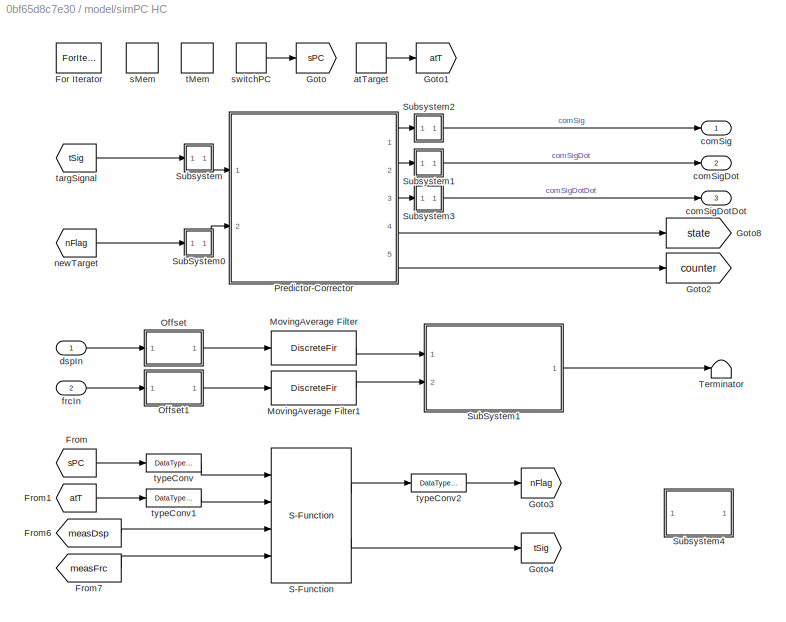
BLOCK [SubSystem] model/simPC HC
  Ports = [2, 3]
  RequestExecContextInheritance = off
BLOCK [ForIterator] model/simPC HC/For Iterator
  IterationLimit = upFact
  Ports = []
  ShowIterationPort = off
BLOCK [From] model/simPC HC/From
  GotoTag = sPC
  IconDisplay = Signal name
  TagVisibility = global
BLOCK [From] model/simPC HC/From1
  GotoTag = atT
  IconDisplay = Signal name
  TagVisibility = global
BLOCK [From] model/simPC HC/From6
  GotoTag = measDsp
  TagVisibility = global
BLOCK [From] model/simPC HC/From7
  GotoTag = measFrc
  TagVisibility = global
BLOCK [Goto] model/simPC HC/Goto
  GotoTag = sPC
  TagVisibility = global
BLOCK [Goto] model/simPC HC/Goto1
  GotoTag = atT
  TagVisibility = global
BLOCK [Goto] model/simPC HC/Goto2
  GotoTag = counter
  TagVisibility = global
BLOCK [Goto] model/simPC HC/Goto3
  GotoTag = nFlag
  TagVisibility = global
BLOCK [Goto] model/simPC HC/Goto4
  GotoTag = tSig
  TagVisibility = global
BLOCK [Goto] model/simPC HC/Goto8
  GotoTag = state
  TagVisibility = global
BLOCK [DiscreteFir] model/simPC HC/MovingAverage Filter
  Coefficients = 1/numSample*ones(1,numSample)
  InputPortMap = u0
  OutputPortMap = o0
  Ports = [1, 1]
BLOCK [DiscreteFir] model/simPC HC/MovingAverage Filter1
  Coefficients = 1/numSample*ones(1,numSample)
  InputPortMap = u0
  OutputPortMap = o0
  Ports = [1, 1]
BLOCK [SubSystem] model/simPC HC/Offset
  Ports = [1, 1]
  RequestExecContextInheritance = off
BLOCK [Constant] model/simPC HC/Offset/Constant
  Value = zeros(1,nS)
BLOCK [Reference] model/simPC HC/Offset/Counter  REF=simulink/Sources/Counter
Free-Running
  Ports = [0, 1]
  SourceBlock = simulink/Sources/Counter\nFree-Running
  SourceProductBaseCode = SL
  SourceProductName = Simulink
  SourceType = Counter Free-Running
BLOCK [DataStoreMemory] model/simPC HC/Offset/Data Store Memory
  DataStoreName = x0
  InitialValue = zeros(1,nS)
  OutDataTypeStr = double
  ShowAdditionalParam = off
  SignalType = real
BLOCK [DataStoreRead] model/simPC HC/Offset/Data Store Read
  DataStoreName = x0
  Ports = [0, 1]
BLOCK [If] model/simPC HC/Offset/If
  IfExpression = u1 < nOffset
  Ports = [1, 1]
  ShowElse = off
BLOCK [SubSystem] model/simPC HC/Offset/If Action
  Ports = [1, 0, 0, 0, 0, 0, 0, 1]
  RequestExecContextInheritance = off
  TreatAsAtomicUnit = on
BLOCK [ActionPort] model/simPC HC/Offset/If Action/Action Port
  ActionPortLabel = if(u1 < nOffset)
  PropagateVarSize = During execution
BLOCK [DataStoreRead] model/simPC HC/Offset/If Action/Data Store Read
  DataStoreName = x0
  Ports = [0, 1]
BLOCK [DataStoreWrite] model/simPC HC/Offset/If Action/Data Store Write
  DataStoreName = x0
  Ports = [1]
BLOCK [Gain] model/simPC HC/Offset/If Action/Gain
  Gain = 1/nOffset
BLOCK [Inport] model/simPC HC/Offset/If Action/In1
  IconDisplay = Port number
BLOCK [Sum] model/simPC HC/Offset/If Action/Sum
  IconShape = round
  Inputs = |++
  Ports = [2, 1]
BLOCK [Inport] model/simPC HC/Offset/In1
  IconDisplay = Port number
BLOCK [Outport] model/simPC HC/Offset/Out1
  IconDisplay = Port number
BLOCK [Sum] model/simPC HC/Offset/Sum1
  IconShape = round
  Inputs = +-|
  Ports = [2, 1]
BLOCK [Switch] model/simPC HC/Offset/Switch
  Threshold = nOffset
BLOCK [DataTypeConversion] model/simPC HC/Offset/typeConv
  OutDataTypeStr = double
  RndMeth = Round
BLOCK [SubSystem] model/simPC HC/Offset1
  Ports = [1, 1]
  RequestExecContextInheritance = off
BLOCK [Constant] model/simPC HC/Offset1/Constant
  Value = zeros(1,nS)
BLOCK [Reference] model/simPC HC/Offset1/Counter  REF=simulink/Sources/Counter
Free-Running
  Ports = [0, 1]
  SourceBlock = simulink/Sources/Counter\nFree-Running
  SourceProductBaseCode = SL
  SourceProductName = Simulink
  SourceType = Counter Free-Running
BLOCK [DataStoreMemory] model/simPC HC/Offset1/Data Store Memory
  DataStoreName = x0
  InitialValue = zeros(1,nS)
  OutDataTypeStr = double
  ShowAdditionalParam = off
  SignalType = real
BLOCK [DataStoreRead] model/simPC HC/Offset1/Data Store Read
  DataStoreName = x0
  Ports = [0, 1]
BLOCK [If] model/simPC HC/Offset1/If
  IfExpression = u1 < nOffset
  Ports = [1, 1]
  ShowElse = off
BLOCK [SubSystem] model/simPC HC/Offset1/If Action
  Ports = [1, 0, 0, 0, 0, 0, 0, 1]
  RequestExecContextInheritance = off
  TreatAsAtomicUnit = on
BLOCK [ActionPort] model/simPC HC/Offset1/If Action/Action Port
  ActionPortLabel = if(u1 < nOffset)
  PropagateVarSize = During execution
BLOCK [DataStoreRead] model/simPC HC/Offset1/If Action/Data Store Read
  DataStoreName = x0
  Ports = [0, 1]
BLOCK [DataStoreWrite] model/simPC HC/Offset1/If Action/Data Store Write
  DataStoreName = x0
  Ports = [1]
BLOCK [Gain] model/simPC HC/Offset1/If Action/Gain
  Gain = 1/nOffset
BLOCK [Inport] model/simPC HC/Offset1/If Action/In1
  IconDisplay = Port number
BLOCK [Sum] model/simPC HC/Offset1/If Action/Sum
  IconShape = round
  Inputs = |++
  Ports = [2, 1]
BLOCK [Inport] model/simPC HC/Offset1/In1
  IconDisplay = Port number
BLOCK [Outport] model/simPC HC/Offset1/Out1
  IconDisplay = Port number
BLOCK [Sum] model/simPC HC/Offset1/Sum1
  IconShape = round
  Inputs = +-|
  Ports = [2, 1]
BLOCK [Switch] model/simPC HC/Offset1/Switch
  Threshold = nOffset
BLOCK [DataTypeConversion] model/simPC HC/Offset1/typeConv
  OutDataTypeStr = double
  RndMeth = Round
BLOCK [SubSystem] model/simPC HC/Predictor-Corrector
  ErrorFcn = Stateflow.Translate.translate
  PermitHierarchicalResolution = ExplicitOnly
  Ports = [2, 5]
  RequestExecContextInheritance = off
  SFBlockType = Chart
  TreatAsAtomicUnit = on
BLOCK [Demux] model/simPC HC/Predictor-Corrector/ Demux 
  Outputs = 1
  Ports = [1, 1]
BLOCK [S-Function] model/simPC HC/Predictor-Corrector/ SFunction 
  EnableBusSupport = on
  FunctionName = sf_sfun
  Parameters = N,dtCon,dtInt,dtSim,nDOF
  PortCounts = [2 6]
  Ports = [2, 6]
  SFcnIsStateOwnerBlock = off
  SFunctionDeploymentMode = off
  Tag = Stateflow S-Function HybridControllerD2D2 2
BLOCK [Terminator] model/simPC HC/Predictor-Corrector/ Terminator 
BLOCK [Outport] model/simPC HC/Predictor-Corrector/comA
  IconDisplay = Port number
  Port = 3
BLOCK [Outport] model/simPC HC/Predictor-Corrector/comD
  IconDisplay = Port number
BLOCK [Outport] model/simPC HC/Predictor-Corrector/comV
  IconDisplay = Port number
  Port = 2
BLOCK [Inport] model/simPC HC/Predictor-Corrector/flag
  IconDisplay = Port number
  Port = 2
BLOCK [Outport] model/simPC HC/Predictor-Corrector/i
  IconDisplay = Port number
  Port = 5
BLOCK [Outport] model/simPC HC/Predictor-Corrector/state
  IconDisplay = Port number
  Port = 4
BLOCK [Inport] model/simPC HC/Predictor-Corrector/targD
  IconDisplay = Port number
BLOCK [S-Function] model/simPC HC/S-Function
  EnableBusSupport = off
  FunctionName = SFun_OPFConnect
  Parameters = ipPort
  Ports = [4, 2]
  SFcnIsStateOwnerBlock = off
  SFunctionDeploymentMode = off
BLOCK [SubSystem] model/simPC HC/SubSystem0
  Ports = [1, 1]
  RequestExecContextInheritance = off
BLOCK [Reference] model/simPC HC/SubSystem0/Compare To Constant  REF=simulink/Logic and Bit
Operations/Compare
To Constant
  Ports = [1, 1]
  SourceBlock = simulink/Logic and Bit\nOperations/Compare\nTo Constant
  SourceProductBaseCode = SL
  SourceProductName = Simulink
  SourceType = Compare To Constant
BLOCK [Reference] model/simPC HC/SubSystem0/Detect Fall Nonpositive  REF=simulink/Logic and Bit
Operations/Detect Fall
Nonpositive
  Ports = [1, 1]
  SourceBlock = simulink/Logic and Bit\nOperations/Detect Fall\nNonpositive
  SourceProductBaseCode = SL
  SourceProductName = Simulink
  SourceType = Detect Fall Nonpositive
BLOCK [Reference] model/simPC HC/SubSystem0/Detect Rise Positive  REF=simulink/Logic and Bit
Operations/Detect Rise
Positive
  Ports = [1, 1]
  SourceBlock = simulink/Logic and Bit\nOperations/Detect Rise\nPositive
  SourceProductBaseCode = SL
  SourceProductName = Simulink
  SourceType = Detect Rise Positive
BLOCK [From] model/simPC HC/SubSystem0/From
  GotoTag = sPC
  IconDisplay = Signal name
  TagVisibility = global
BLOCK [From] model/simPC HC/SubSystem0/From1
  GotoTag = atT
  IconDisplay = Signal name
  TagVisibility = global
BLOCK [Goto] model/simPC HC/SubSystem0/Goto8
  GotoTag = flags
  TagVisibility = global
BLOCK [SubSystem] model/simPC HC/SubSystem0/If Action Subsystem0
  Ports = [0, 0, 0, 0, 0, 0, 0, 1]
  RequestExecContextInheritance = off
  TreatAsAtomicUnit = on
BLOCK [ActionPort] model/simPC HC/SubSystem0/If Action Subsystem0/Action Port
  ActionPortLabel = if(u1 == 1)
  PropagateVarSize = During execution
BLOCK [DataStoreWrite] model/simPC HC/SubSystem0/If Action Subsystem0/Data Store Write0
  DataStoreName = sFlag
  Ports = [1]
BLOCK [DataStoreWrite] model/simPC HC/SubSystem0/If Action Subsystem0/Data Store Write1
  DataStoreName = tFlag
  Ports = [1]
BLOCK [Constant] model/simPC HC/SubSystem0/If Action Subsystem0/atTargetFlag
  OutDataTypeStr = int32
  SampleTime = -1
  Value = 0
BLOCK [Constant] model/simPC HC/SubSystem0/If Action Subsystem0/switchFlag
  OutDataTypeStr = int32
  SampleTime = -1
BLOCK [SubSystem] model/simPC HC/SubSystem0/If Action Subsystem1
  Ports = [0, 0, 0, 0, 0, 0, 0, 1]
  RequestExecContextInheritance = off
  TreatAsAtomicUnit = on
BLOCK [ActionPort] model/simPC HC/SubSystem0/If Action Subsystem1/Action Port
  ActionPortLabel = if(u1 == 1)
  PropagateVarSize = During execution
BLOCK [DataStoreWrite] model/simPC HC/SubSystem0/If Action Subsystem1/Data Store Write0
  DataStoreName = sFlag
  Ports = [1]
BLOCK [Constant] model/simPC HC/SubSystem0/If Action Subsystem1/switchFlag
  OutDataTypeStr = int32
  SampleTime = -1
  Value = 0
BLOCK [If] model/simPC HC/SubSystem0/If0
  IfExpression = u1 == 1
  Ports = [1, 1]
  ShowElse = off
BLOCK [If] model/simPC HC/SubSystem0/If1
  IfExpression = u1 == 1
  Ports = [1, 1]
  ShowElse = off
BLOCK [Inport] model/simPC HC/SubSystem0/In
  IconDisplay = Port number
BLOCK [Mux] model/simPC HC/SubSystem0/Mux1
  DisplayOption = bar
  Inputs = 3
  Ports = [3, 1]
BLOCK [Outport] model/simPC HC/SubSystem0/Out
  IconDisplay = Port number
BLOCK [Stop] model/simPC HC/SubSystem0/Stop Simulation
BLOCK [DataTypeConversion] model/simPC HC/SubSystem0/typeConv
  OutDataTypeStr = int32
  RndMeth = Round
BLOCK [SubSystem] model/simPC HC/SubSystem1
  Ports = [2, 1]
  RequestExecContextInheritance = off
BLOCK [Constant] model/simPC HC/SubSystem1/Constant
  Value = iDelay
BLOCK [SubSystem] model/simPC HC/SubSystem1/For Each Subsystem
  Ports = [4, 2]
  RequestExecContextInheritance = off
  TreatAsAtomicUnit = on
BLOCK [ForEach] model/simPC HC/SubSystem1/For Each Subsystem/For Each
  DisableCoverage = on
  IndexMode = One-based
  Ports = []
BLOCK [SubSystem] model/simPC HC/SubSystem1/For Each Subsystem/SubSystem
  Ports = [2, 2, 0, 1]
  RequestExecContextInheritance = off
  TreatAsAtomicUnit = on
BLOCK [TriggerPort] model/simPC HC/SubSystem1/For Each Subsystem/SubSystem/Trigger
  Ports = []
  StatesWhenEnabling = held
  VariantControl = (inherit)
BLOCK [Inport] model/simPC HC/SubSystem1/For Each Subsystem/SubSystem/measDsp In
  IconDisplay = Port number
BLOCK [Outport] model/simPC HC/SubSystem1/For Each Subsystem/SubSystem/measDsp Out
  IconDisplay = Port number
  InitialOutput = [0]
BLOCK [Inport] model/simPC HC/SubSystem1/For Each Subsystem/SubSystem/measFrc In
  IconDisplay = Port number
  Port = 2
BLOCK [Outport] model/simPC HC/SubSystem1/For Each Subsystem/SubSystem/measFrc Out
  IconDisplay = Port number
  InitialOutput = [0]
  Port = 2
BLOCK [SubSystem] model/simPC HC/SubSystem1/For Each Subsystem/Subsystem
  Ports = [2, 1]
  RequestExecContextInheritance = off
BLOCK [Sum] model/simPC HC/SubSystem1/For Each Subsystem/Subsystem/Add
  InputSameDT = off
  OutDataTypeStr = Inherit: Inherit via internal rule
  Ports = [2, 1]
  SaturateOnIntegerOverflow = off
BLOCK [Constant] model/simPC HC/SubSystem1/For Each Subsystem/Subsystem/Constant1
  Value = N
BLOCK [If] model/simPC HC/SubSystem1/For Each Subsystem/Subsystem/If
  IfExpression = u1 == 0
  Ports = [1, 2]
BLOCK [SubSystem] model/simPC HC/SubSystem1/For Each Subsystem/Subsystem/If Action Subsystem1
  Ports = [2, 1, 0, 0, 0, 0, 0, 1]
  RequestExecContextInheritance = off
  TreatAsAtomicUnit = on
BLOCK [ActionPort] model/simPC HC/SubSystem1/For Each Subsystem/Subsystem/If Action Subsystem1/Action Port
  ActionPortLabel = if(u1 == 0)
BLOCK [Inport] model/simPC HC/SubSystem1/For Each Subsystem/Subsystem/If Action Subsystem1/In1
  IconDisplay = Port number
BLOCK [Inport] model/simPC HC/SubSystem1/For Each Subsystem/Subsystem/If Action Subsystem1/In2
  IconDisplay = Port number
  Port = 2
BLOCK [Outport] model/simPC HC/SubSystem1/For Each Subsystem/Subsystem/If Action Subsystem1/Out1
  IconDisplay = Port number
BLOCK [RelationalOperator] model/simPC HC/SubSystem1/For Each Subsystem/Subsystem/If Action Subsystem1/Relational Operator
  InputSameDT = off
  Operator = ==
  OutDataTypeStr = boolean
  Ports = [2, 1]
BLOCK [SubSystem] model/simPC HC/SubSystem1/For Each Subsystem/Subsystem/If Action Subsystem2
  Ports = [2, 1, 0, 0, 0, 0, 0, 1]
  RequestExecContextInheritance = off
  TreatAsAtomicUnit = on
BLOCK [ActionPort] model/simPC HC/SubSystem1/For Each Subsystem/Subsystem/If Action Subsystem2/Action Port
  ActionPortLabel = else
BLOCK [Inport] model/simPC HC/SubSystem1/For Each Subsystem/Subsystem/If Action Subsystem2/In1
  IconDisplay = Port number
BLOCK [Inport] model/simPC HC/SubSystem1/For Each Subsystem/Subsystem/If Action Subsystem2/In2
  IconDisplay = Port number
  Port = 2
BLOCK [Outport] model/simPC HC/SubSystem1/For Each Subsystem/Subsystem/If Action Subsystem2/Out1
  IconDisplay = Port number
BLOCK [RelationalOperator] model/simPC HC/SubSystem1/For Each Subsystem/Subsystem/If Action Subsystem2/Relational Operator
  InputSameDT = off
  Operator = ==
  OutDataTypeStr = boolean
  Ports = [2, 1]
BLOCK [Inport] model/simPC HC/SubSystem1/For Each Subsystem/Subsystem/i
  IconDisplay = Port number
BLOCK [Inport] model/simPC HC/SubSystem1/For Each Subsystem/Subsystem/iDelay
  IconDisplay = Port number
  Port = 2
BLOCK [Outport] model/simPC HC/SubSystem1/For Each Subsystem/Subsystem/trig
  IconDisplay = Port number
BLOCK [Inport] model/simPC HC/SubSystem1/For Each Subsystem/i
  IconDisplay = Port number
BLOCK [Inport] model/simPC HC/SubSystem1/For Each Subsystem/iDelay
  IconDisplay = Port number
  Partition = on
  PartitionDimension = 1
  PartitionOffset = 0
  PartitionWidth = 1
  Port = 2
BLOCK [Inport] model/simPC HC/SubSystem1/For Each Subsystem/measDsp
  IconDisplay = Port number
  Partition = on
  PartitionDimension = 1
  PartitionOffset = 0
  PartitionWidth = 1
  Port = 3
BLOCK [Outport] model/simPC HC/SubSystem1/For Each Subsystem/measDspOut
  ConcatenationDimension = 1
  IconDisplay = Port number
BLOCK [Inport] model/simPC HC/SubSystem1/For Each Subsystem/measFrc
  IconDisplay = Port number
  Partition = on
  PartitionDimension = 1
  PartitionOffset = 0
  PartitionWidth = 1
  Port = 4
BLOCK [Outport] model/simPC HC/SubSystem1/For Each Subsystem/measFrcOut
  ConcatenationDimension = 1
  IconDisplay = Port number
  Port = 2
BLOCK [From] model/simPC HC/SubSystem1/From
  GotoTag = counter
  TagVisibility = global
BLOCK [Gain] model/simPC HC/SubSystem1/Gain4
BLOCK [Goto] model/simPC HC/SubSystem1/Goto1
  GotoTag = measDsp
  TagVisibility = global
BLOCK [Goto] model/simPC HC/SubSystem1/Goto4
  GotoTag = measFrc
  TagVisibility = global
BLOCK [Mux] model/simPC HC/SubSystem1/Mux
  DisplayOption = bar
  Inputs = 2
  Ports = [2, 1]
BLOCK [SubSystem] model/simPC HC/SubSystem1/SubSystem2
  Ports = [0, 0, 0, 1]
  RequestExecContextInheritance = off
  TreatAsAtomicUnit = on
BLOCK [DataStoreWrite] model/simPC HC/SubSystem1/SubSystem2/Data Store Write
  DataStoreName = tFlag
  Ports = [1]
BLOCK [TriggerPort] model/simPC HC/SubSystem1/SubSystem2/Trigger
  Ports = []
  StatesWhenEnabling = held
  VariantControl = (inherit)
BLOCK [Constant] model/simPC HC/SubSystem1/SubSystem2/atTargetFlag
  OutDataTypeStr = int32
  SampleTime = -1
BLOCK [SubSystem] model/simPC HC/SubSystem1/Subsystem2
  Ports = [1, 1]
  RequestExecContextInheritance = off
BLOCK [Sum] model/simPC HC/SubSystem1/Subsystem2/Add
  InputSameDT = off
  OutDataTypeStr = Inherit: Inherit via internal rule
  Ports = [2, 1]
  SaturateOnIntegerOverflow = off
BLOCK [Constant] model/simPC HC/SubSystem1/Subsystem2/Constant
  Value = max(iDelay)
BLOCK [Constant] model/simPC HC/SubSystem1/Subsystem2/Constant1
  Value = N
BLOCK [If] model/simPC HC/SubSystem1/Subsystem2/If
  IfExpression = u1 == 0
  Ports = [1, 2]
BLOCK [SubSystem] model/simPC HC/SubSystem1/Subsystem2/If Action Subsystem1
  Ports = [2, 1, 0, 0, 0, 0, 0, 1]
  RequestExecContextInheritance = off
  TreatAsAtomicUnit = on
BLOCK [ActionPort] model/simPC HC/SubSystem1/Subsystem2/If Action Subsystem1/Action Port
  ActionPortLabel = if(u1 == 0)
BLOCK [Inport] model/simPC HC/SubSystem1/Subsystem2/If Action Subsystem1/In1
  IconDisplay = Port number
BLOCK [Inport] model/simPC HC/SubSystem1/Subsystem2/If Action Subsystem1/In2
  IconDisplay = Port number
  Port = 2
BLOCK [Outport] model/simPC HC/SubSystem1/Subsystem2/If Action Subsystem1/Out1
  IconDisplay = Port number
BLOCK [RelationalOperator] model/simPC HC/SubSystem1/Subsystem2/If Action Subsystem1/Relational Operator
  InputSameDT = off
  Operator = ==
  OutDataTypeStr = boolean
  Ports = [2, 1]
BLOCK [SubSystem] model/simPC HC/SubSystem1/Subsystem2/If Action Subsystem2
  Ports = [2, 1, 0, 0, 0, 0, 0, 1]
  RequestExecContextInheritance = off
  TreatAsAtomicUnit = on
BLOCK [ActionPort] model/simPC HC/SubSystem1/Subsystem2/If Action Subsystem2/Action Port
  ActionPortLabel = else
BLOCK [Inport] model/simPC HC/SubSystem1/Subsystem2/If Action Subsystem2/In1
  IconDisplay = Port number
BLOCK [Inport] model/simPC HC/SubSystem1/Subsystem2/If Action Subsystem2/In2
  IconDisplay = Port number
  Port = 2
BLOCK [Outport] model/simPC HC/SubSystem1/Subsystem2/If Action Subsystem2/Out1
  IconDisplay = Port number
BLOCK [RelationalOperator] model/simPC HC/SubSystem1/Subsystem2/If Action Subsystem2/Relational Operator
  InputSameDT = off
  Operator = ==
  OutDataTypeStr = boolean
  Ports = [2, 1]
BLOCK [Inport] model/simPC HC/SubSystem1/Subsystem2/i
  IconDisplay = Port number
BLOCK [Outport] model/simPC HC/SubSystem1/Subsystem2/trig
  IconDisplay = Port number
BLOCK [Inport] model/simPC HC/SubSystem1/measDsp
  IconDisplay = Port number
BLOCK [Inport] model/simPC HC/SubSystem1/measFrc
  IconDisplay = Port number
  Port = 2
BLOCK [Outport] model/simPC HC/SubSystem1/measSig
  IconDisplay = Port number
BLOCK [SubSystem] model/simPC HC/Subsystem
  Ports = [1, 1]
  RequestExecContextInheritance = off
BLOCK [Mux] model/simPC HC/Subsystem/Dummy Aug
  DisplayOption = bar
  Inputs = [nDOF 1]
  Ports = [2, 1]
BLOCK [Constant] model/simPC HC/Subsystem/Dummy Zero
  OutDataTypeStr = double
  SampleTime = -1
  Value = 0
BLOCK [Goto] model/simPC HC/Subsystem/Goto4
  GotoTag = targSig
  TagVisibility = global
BLOCK [Inport] model/simPC HC/Subsystem/I
  IconDisplay = Port number
  PortDimensions = nDOF
BLOCK [Outport] model/simPC HC/Subsystem/O
  IconDisplay = Port number
  PortDimensions = nDOF+1
BLOCK [SubSystem] model/simPC HC/Subsystem1
  Ports = [1, 1]
  RequestExecContextInheritance = off
BLOCK [Demux] model/simPC HC/Subsystem1/Dummy Trn
  DisplayOption = bar
  Outputs = [nDOF 1]
  Ports = [1, 2]
BLOCK [Goto] model/simPC HC/Subsystem1/Goto5
  GotoTag = comSigDot
  TagVisibility = global
BLOCK [Inport] model/simPC HC/Subsystem1/In
  IconDisplay = Port number
  PortDimensions = nDOF+1
BLOCK [Outport] model/simPC HC/Subsystem1/Out
  IconDisplay = Port number
  PortDimensions = nDOF
BLOCK [Terminator] model/simPC HC/Subsystem1/Terminator3
BLOCK [SubSystem] model/simPC HC/Subsystem2
  Ports = [1, 1]
  RequestExecContextInheritance = off
BLOCK [Demux] model/simPC HC/Subsystem2/Dummy Trn
  DisplayOption = bar
  Outputs = [nDOF 1]
  Ports = [1, 2]
BLOCK [Goto] model/simPC HC/Subsystem2/Goto5
  GotoTag = comSig
  TagVisibility = global
BLOCK [Inport] model/simPC HC/Subsystem2/In
  IconDisplay = Port number
  PortDimensions = nDOF+1
BLOCK [Outport] model/simPC HC/Subsystem2/Out
  IconDisplay = Port number
  PortDimensions = nDOF
BLOCK [Terminator] model/simPC HC/Subsystem2/Terminator3
BLOCK [SubSystem] model/simPC HC/Subsystem3
  Ports = [1, 1]
  RequestExecContextInheritance = off
BLOCK [Demux] model/simPC HC/Subsystem3/Dummy Trn
  DisplayOption = bar
  Outputs = [nDOF 1]
  Ports = [1, 2]
BLOCK [Goto] model/simPC HC/Subsystem3/Goto5
  GotoTag = comSigDotDot
  TagVisibility = global
BLOCK [Inport] model/simPC HC/Subsystem3/In
  IconDisplay = Port number
  PortDimensions = nDOF+1
BLOCK [Outport] model/simPC HC/Subsystem3/Out
  IconDisplay = Port number
  PortDimensions = nDOF
BLOCK [Terminator] model/simPC HC/Subsystem3/Terminator3
BLOCK [SubSystem] model/simPC HC/Subsystem4
  Ports = []
  RequestExecContextInheritance = off
BLOCK [BusCreator] model/simPC HC/Subsystem4/BusCreator1
  InheritFromInputs = on
  Inputs = 3
  Ports = [3, 1]
BLOCK [From] model/simPC HC/Subsystem4/From
  GotoTag = targSig
  TagVisibility = global
BLOCK [From] model/simPC HC/Subsystem4/From1
  GotoTag = comSig
  TagVisibility = global
BLOCK [From] model/simPC HC/Subsystem4/From3
  GotoTag = state
  TagVisibility = global
BLOCK [From] model/simPC HC/Subsystem4/From4
  GotoTag = counter
  TagVisibility = global
BLOCK [From] model/simPC HC/Subsystem4/From5
  GotoTag = flags
  TagVisibility = global
BLOCK [From] model/simPC HC/Subsystem4/From6
  GotoTag = measDsp
  TagVisibility = global
BLOCK [From] model/simPC HC/Subsystem4/From7
  GotoTag = measFrc
  TagVisibility = global
BLOCK [Scope] model/simPC HC/Subsystem4/Scope1
  Floating = off
  NumInputPorts = 1
  Ports = [1]
  ScopeSpecificationString = Simulink.scopes.TimeScopeBlockCfg('CurrentConfiguration', extmgr.ConfigurationSet(extmgr.Configuration('Core','General UI',true),extmgr.Configuration('Core','Source UI',true),extmgr.Configuration('Sources','WiredSimulink',true,'DataLoggingVariableName','ScopeData3','DataLoggingSaveFormat','StructureWithTime','DataLoggingDecimation','1','DataLoggingDecimateData',true),extmgr.Configuration('Visuals'...<+1781ch>
BLOCK [Scope] model/simPC HC/Subsystem4/Scope2
  Floating = off
  NumInputPorts = 1
  Ports = [1]
  ScopeSpecificationString = Simulink.scopes.TimeScopeBlockCfg('CurrentConfiguration', extmgr.ConfigurationSet(extmgr.Configuration('Core','General UI',true),extmgr.Configuration('Core','Source UI',true),extmgr.Configuration('Sources','WiredSimulink',true,'DataLoggingVariableName','ScopeData1','DataLoggingSaveFormat','StructureWithTime','DataLoggingDecimation','1','DataLoggingDecimateData',true),extmgr.Configuration('Visuals'...<+1748ch>
BLOCK [Scope] model/simPC HC/Subsystem4/Scope4
  Floating = off
  NumInputPorts = 1
  Ports = [1]
  ScopeSpecificationString = Simulink.scopes.TimeScopeBlockCfg('CurrentConfiguration', extmgr.ConfigurationSet(extmgr.Configuration('Core','General UI',true),extmgr.Configuration('Core','Source UI',true),extmgr.Configuration('Sources','WiredSimulink',true,'DataLoggingSaveFormat','StructureWithTime','DataLoggingDecimation','1','DataLoggingDecimateData',true),extmgr.Configuration('Visuals','Time Domain',true,'SerializedDisplays...<+1731ch>
BLOCK [Terminator] model/simPC HC/Subsystem4/Terminator
BLOCK [Terminator] model/simPC HC/Subsystem4/Terminator1
BLOCK [Terminator] model/simPC HC/Terminator
BLOCK [DataStoreRead] model/simPC HC/atTarget
  DataStoreName = tFlag
  Ports = [0, 1]
BLOCK [Outport] model/simPC HC/comSig
  IconDisplay = Port number
BLOCK [Outport] model/simPC HC/comSigDot
  IconDisplay = Port number
  Port = 2
BLOCK [Outport] model/simPC HC/comSigDotDot
  IconDisplay = Port number
  Port = 3
BLOCK [Inport] model/simPC HC/dspIn
  IconDisplay = Port number
BLOCK [Inport] model/simPC HC/frcIn
  IconDisplay = Port number
  Port = 2
BLOCK [From] model/simPC HC/newTarget
  GotoTag = nFlag
  IconDisplay = Signal name
  TagVisibility = global
BLOCK [DataStoreMemory] model/simPC HC/sMem
  DataStoreName = sFlag
  OutDataTypeStr = int32
  ShowAdditionalParam = off
  SignalType = real
BLOCK [DataStoreRead] model/simPC HC/switchPC
  DataStoreName = sFlag
  Ports = [0, 1]
BLOCK [DataStoreMemory] model/simPC HC/tMem
  DataStoreName = tFlag
  OutDataTypeStr = int32
  ShowAdditionalParam = off
  SignalType = real
BLOCK [From] model/simPC HC/targSignal
  GotoTag = tSig
  IconDisplay = Signal name
  TagVisibility = global
BLOCK [DataTypeConversion] model/simPC HC/typeConv
  OutDataTypeStr = double
  RndMeth = Round
BLOCK [DataTypeConversion] model/simPC HC/typeConv1
  OutDataTypeStr = double
  RndMeth = Round
BLOCK [DataTypeConversion] model/simPC HC/typeConv2
  OutDataTypeStr = int32
  RndMeth = Round
BLOCK [Terminator] model/term1
BLOCK [Terminator] model/term10
BLOCK [Terminator] model/term11
BLOCK [Terminator] model/term12
BLOCK [Terminator] model/term2
BLOCK [Terminator] model/term3
BLOCK [Terminator] model/term4
BLOCK [Terminator] model/term5
BLOCK [Terminator] model/term6
BLOCK [Terminator] model/term7
BLOCK [Terminator] model/term9
BLOCK [Constant] model/user ADCs
  Value = zeros(nAdcU, 1)
BLOCK [Constant] model/user DUCs
  Value = zeros(nDucU, 1)
BLOCK [Constant] model/user ENCs
  Value = zeros(nEncU, 1)
BLOCK [Inport] model/valveCmds
  IconDisplay = Port number
ANNOTATION (root): UCB PC Simulation
ANNOTATION model: UCB PC Simulation
ANNOTATION model/ActuatorPayloadMdl/dynamic long channel #1/actuator//valve model: Parameter vector: 1: oil bulk modulus (force/displ^2) 2: servovalve delay (sec) 3: servovalve overlap 4: rated pressure (force/displ^2) 5: rated flow at rated pressure (displ^3/sec) 6: nominal flow at rated pressure (displ^3/sec) 7: actuator piston area 1 (displ^2) 8: actuator piston area 2 (displ^2) 9: actuator usable stroke 1 (displ) 10: actuator usable stroke 2 (displ) 11: actuator end cushion ...<+369ch>
ANNOTATION model/ActuatorPayloadMdl/dynamic long channel #1/actuator//valve model: Auxiliary diagnostic output vector: 1: valve opening 2: C1 pressure 3: C2 pressure 4: delta pressure 5: force 6: velocity 7: C1 flow 8: C2 flow 9: total flow 10: kinematic flow 11: compressibility flow 12: leakage flow
ANNOTATION model/ActuatorPayloadMdl/dynamic long channel #1/actuator//valve model: Note: "1" and "2" denote actuator cylinders on either side of the actuator piston. With positive valve drive, oil is ported into cylinder 1, resulting in positive displacement.
ANNOTATION model/ActuatorPayloadMdl/dynamic long channel #2/actuator//valve model: Parameter vector: 1: oil bulk modulus (force/displ^2) 2: servovalve delay (sec) 3: servovalve overlap 4: rated pressure (force/displ^2) 5: rated flow at rated pressure (displ^3/sec) 6: nominal flow at rated pressure (displ^3/sec) 7: actuator piston area 1 (displ^2) 8: actuator piston area 2 (displ^2) 9: actuator usable stroke 1 (displ) 10: actuator usable stroke 2 (displ) 11: actuator end cushion ...<+369ch>
ANNOTATION model/ActuatorPayloadMdl/dynamic long channel #2/actuator//valve model: Auxiliary diagnostic output vector: 1: valve opening 2: C1 pressure 3: C2 pressure 4: delta pressure 5: force 6: velocity 7: C1 flow 8: C2 flow 9: total flow 10: kinematic flow 11: compressibility flow 12: leakage flow
ANNOTATION model/ActuatorPayloadMdl/dynamic long channel #2/actuator//valve model: Note: "1" and "2" denote actuator cylinders on either side of the actuator piston. With positive valve drive, oil is ported into cylinder 1, resulting in positive displacement.
ANNOTATION model/ActuatorPayloadMdl/dynamic short channel #1/actuator//valve model: Parameter vector: 1: oil bulk modulus (force/displ^2) 2: servovalve delay (sec) 3: servovalve overlap 4: rated pressure (force/displ^2) 5: rated flow at rated pressure (displ^3/sec) 6: nominal flow at rated pressure (displ^3/sec) 7: actuator piston area 1 (displ^2) 8: actuator piston area 2 (displ^2) 9: actuator usable stroke 1 (displ) 10: actuator usable stroke 2 (displ) 11: actuator end cushion ...<+369ch>
ANNOTATION model/ActuatorPayloadMdl/dynamic short channel #1/actuator//valve model: Auxiliary diagnostic output vector: 1: valve opening 2: C1 pressure 3: C2 pressure 4: delta pressure 5: force 6: velocity 7: C1 flow 8: C2 flow 9: total flow 10: kinematic flow 11: compressibility flow 12: leakage flow
ANNOTATION model/ActuatorPayloadMdl/dynamic short channel #1/actuator//valve model: Note: "1" and "2" denote actuator cylinders on either side of the actuator piston. With positive valve drive, oil is ported into cylinder 1, resulting in positive displacement.
ANNOTATION model/ActuatorPayloadMdl/dynamic short channel #2/actuator//valve model: Parameter vector: 1: oil bulk modulus (force/displ^2) 2: servovalve delay (sec) 3: servovalve overlap 4: rated pressure (force/displ^2) 5: rated flow at rated pressure (displ^3/sec) 6: nominal flow at rated pressure (displ^3/sec) 7: actuator piston area 1 (displ^2) 8: actuator piston area 2 (displ^2) 9: actuator usable stroke 1 (displ) 10: actuator usable stroke 2 (displ) 11: actuator end cushion ...<+369ch>
ANNOTATION model/ActuatorPayloadMdl/dynamic short channel #2/actuator//valve model: Auxiliary diagnostic output vector: 1: valve opening 2: C1 pressure 3: C2 pressure 4: delta pressure 5: force 6: velocity 7: C1 flow 8: C2 flow 9: total flow 10: kinematic flow 11: compressibility flow 12: leakage flow
ANNOTATION model/ActuatorPayloadMdl/dynamic short channel #2/actuator//valve model: Note: "1" and "2" denote actuator cylinders on either side of the actuator piston. With positive valve drive, oil is ported into cylinder 1, resulting in positive displacement.
ANNOTATION model/ActuatorPayloadMdl/static channel #1/actuator//valve model: Parameter vector: 1: oil bulk modulus (force/displ^2) 2: servovalve delay (sec) 3: servovalve overlap 4: rated pressure (force/displ^2) 5: rated flow at rated pressure (displ^3/sec) 6: nominal flow at rated pressure (displ^3/sec) 7: actuator piston area 1 (displ^2) 8: actuator piston area 2 (displ^2) 9: actuator usable stroke 1 (displ) 10: actuator usable stroke 2 (displ) 11: actuator end cushion ...<+369ch>
ANNOTATION model/ActuatorPayloadMdl/static channel #1/actuator//valve model: Auxiliary diagnostic output vector: 1: valve opening 2: C1 pressure 3: C2 pressure 4: delta pressure 5: force 6: velocity 7: C1 flow 8: C2 flow 9: total flow 10: kinematic flow 11: compressibility flow 12: leakage flow
ANNOTATION model/ActuatorPayloadMdl/static channel #1/actuator//valve model: Note: "1" and "2" denote actuator cylinders on either side of the actuator piston. With positive valve drive, oil is ported into cylinder 1, resulting in positive displacement.
ANNOTATION model/ActuatorPayloadMdl/static channel #2/actuator//valve model: Parameter vector: 1: oil bulk modulus (force/displ^2) 2: servovalve delay (sec) 3: servovalve overlap 4: rated pressure (force/displ^2) 5: rated flow at rated pressure (displ^3/sec) 6: nominal flow at rated pressure (displ^3/sec) 7: actuator piston area 1 (displ^2) 8: actuator piston area 2 (displ^2) 9: actuator usable stroke 1 (displ) 10: actuator usable stroke 2 (displ) 11: actuator end cushion ...<+369ch>
ANNOTATION model/ActuatorPayloadMdl/static channel #2/actuator//valve model: Auxiliary diagnostic output vector: 1: valve opening 2: C1 pressure 3: C2 pressure 4: delta pressure 5: force 6: velocity 7: C1 flow 8: C2 flow 9: total flow 10: kinematic flow 11: compressibility flow 12: leakage flow
ANNOTATION model/ActuatorPayloadMdl/static channel #2/actuator//valve model: Note: "1" and "2" denote actuator cylinders on either side of the actuator piston. With positive valve drive, oil is ported into cylinder 1, resulting in positive displacement.
ANNOTATION model/ActuatorPayloadMdl/static channel #3/actuator//valve model: Parameter vector: 1: oil bulk modulus (force/displ^2) 2: servovalve delay (sec) 3: servovalve overlap 4: rated pressure (force/displ^2) 5: rated flow at rated pressure (displ^3/sec) 6: nominal flow at rated pressure (displ^3/sec) 7: actuator piston area 1 (displ^2) 8: actuator piston area 2 (displ^2) 9: actuator usable stroke 1 (displ) 10: actuator usable stroke 2 (displ) 11: actuator end cushion ...<+369ch>
ANNOTATION model/ActuatorPayloadMdl/static channel #3/actuator//valve model: Auxiliary diagnostic output vector: 1: valve opening 2: C1 pressure 3: C2 pressure 4: delta pressure 5: force 6: velocity 7: C1 flow 8: C2 flow 9: total flow 10: kinematic flow 11: compressibility flow 12: leakage flow
ANNOTATION model/ActuatorPayloadMdl/static channel #3/actuator//valve model: Note: "1" and "2" denote actuator cylinders on either side of the actuator piston. With positive valve drive, oil is ported into cylinder 1, resulting in positive displacement.
ANNOTATION model/ActuatorPayloadMdl/static channel #4/actuator//valve model: Parameter vector: 1: oil bulk modulus (force/displ^2) 2: servovalve delay (sec) 3: servovalve overlap 4: rated pressure (force/displ^2) 5: rated flow at rated pressure (displ^3/sec) 6: nominal flow at rated pressure (displ^3/sec) 7: actuator piston area 1 (displ^2) 8: actuator piston area 2 (displ^2) 9: actuator usable stroke 1 (displ) 10: actuator usable stroke 2 (displ) 11: actuator end cushion ...<+369ch>
ANNOTATION model/ActuatorPayloadMdl/static channel #4/actuator//valve model: Auxiliary diagnostic output vector: 1: valve opening 2: C1 pressure 3: C2 pressure 4: delta pressure 5: force 6: velocity 7: C1 flow 8: C2 flow 9: total flow 10: kinematic flow 11: compressibility flow 12: leakage flow
ANNOTATION model/ActuatorPayloadMdl/static channel #4/actuator//valve model: Note: "1" and "2" denote actuator cylinders on either side of the actuator piston. With positive valve drive, oil is ported into cylinder 1, resulting in positive displacement.
LINE controller:1 -> model:trigger
LINE controller:2 -> model:1
NET model/ATS compensator/Butterworth filter1:1 -> model/ATS compensator/Tapped delay subsystem:1, model/ATS compensator/calculate optimal coefficients:9
LINE model/ATS compensator/Butterworth filter:1 -> model/ATS compensator/Tapped Delay:1
LINE model/ATS compensator/Coefficient for LSM/Dot Product10:1 -> model/ATS compensator/Coefficient for LSM/Mux4:1
LINE model/ATS compensator/Coefficient for LSM/Dot Product11:1 -> model/ATS compensator/Coefficient for LSM/Mux4:2
LINE model/ATS compensator/Coefficient for LSM/Dot Product12:1 -> model/ATS compensator/Coefficient for LSM/Mux4:3
NET model/ATS compensator/Coefficient for LSM/Dot Product1:1 -> model/ATS compensator/Coefficient for LSM/Mux1:1, model/ATS compensator/Coefficient for LSM/Mux:2
NET model/ATS compensator/Coefficient for LSM/Dot Product2:1 -> model/ATS compensator/Coefficient for LSM/Mux2:1, model/ATS compensator/Coefficient for LSM/Mux:3
LINE model/ATS compensator/Coefficient for LSM/Dot Product4:1 -> model/ATS compensator/Coefficient for LSM/Mux1:2
NET model/ATS compensator/Coefficient for LSM/Dot Product5:1 -> model/ATS compensator/Coefficient for LSM/Mux1:3, model/ATS compensator/Coefficient for LSM/Mux2:2
LINE model/ATS compensator/Coefficient for LSM/Dot Product7:1 -> model/ATS compensator/Coefficient for LSM/Mux2:3
LINE model/ATS compensator/Coefficient for LSM/Dot Product:1 -> model/ATS compensator/Coefficient for LSM/Mux:1
LINE model/ATS compensator/Coefficient for LSM/Mux1:1 -> model/ATS compensator/Coefficient for LSM/X(2,:):1
LINE model/ATS compensator/Coefficient for LSM/Mux2:1 -> model/ATS compensator/Coefficient for LSM/X(3,:):1
LINE model/ATS compensator/Coefficient for LSM/Mux4:1 -> model/ATS compensator/Coefficient for LSM/Y:1
LINE model/ATS compensator/Coefficient for LSM/Mux:1 -> model/ATS compensator/Coefficient for LSM/X(1,:):1
NET model/ATS compensator/Coefficient for LSM/um:1 -> model/ATS compensator/Coefficient for LSM/Dot Product10:1, model/ATS compensator/Coefficient for LSM/Dot Product11:1, model/ATS compensator/Coefficient for LSM/Dot Product12:1
NET model/ATS compensator/Coefficient for LSM/x2dm:1 -> model/ATS compensator/Coefficient for LSM/Dot Product12:2, model/ATS compensator/Coefficient for LSM/Dot Product2:2, model/ATS compensator/Coefficient for LSM/Dot Product5:2, model/ATS compensator/Coefficient for LSM/Dot Product7:1, model/ATS compensator/Coefficient for LSM/Dot Product7:2
NET model/ATS compensator/Coefficient for LSM/xdm:1 -> model/ATS compensator/Coefficient for LSM/Dot Product11:2, model/ATS compensator/Coefficient for LSM/Dot Product1:2, model/ATS compensator/Coefficient for LSM/Dot Product4:1, model/ATS compensator/Coefficient for LSM/Dot Product4:2, model/ATS compensator/Coefficient for LSM/Dot Product5:1
NET model/ATS compensator/Coefficient for LSM/xm:1 -> model/ATS compensator/Coefficient for LSM/Dot Product10:2, model/ATS compensator/Coefficient for LSM/Dot Product1:1, model/ATS compensator/Coefficient for LSM/Dot Product2:1, model/ATS compensator/Coefficient for LSM/Dot Product:1, model/ATS compensator/Coefficient for LSM/Dot Product:2
LINE model/ATS compensator/Coefficient for LSM:1 -> model/ATS compensator/calculate optimal coefficients:5
LINE model/ATS compensator/Coefficient for LSM:2 -> model/ATS compensator/calculate optimal coefficients:6
LINE model/ATS compensator/Coefficient for LSM:3 -> model/ATS compensator/calculate optimal coefficients:7
LINE model/ATS compensator/Coefficient for LSM:4 -> model/ATS compensator/calculate optimal coefficients:8
LINE model/ATS compensator/Constant1:1 -> model/ATS compensator/calculate optimal coefficients:2
LINE model/ATS compensator/Constant2:1 -> model/ATS compensator/calculate optimal coefficients:3
LINE model/ATS compensator/Constant3:1 -> model/ATS compensator/calculate optimal coefficients:1
LINE model/ATS compensator/Constant4:1 -> model/ATS compensator/calculate optimal coefficients:4
LINE model/ATS compensator/Discrete Derivative1:1 -> model/ATS compensator/Manual Switch1:1
NET model/ATS compensator/Discrete Derivative:1 -> model/ATS compensator/Discrete Derivative1:1, model/ATS compensator/Manual Switch:1
LINE model/ATS compensator/Manual Switch1:1 -> model/ATS compensator/compensated actuator input disp.:4
LINE model/ATS compensator/Manual Switch:1 -> model/ATS compensator/compensated actuator input disp.:3
LINE model/ATS compensator/Selector:1 -> model/ATS compensator/Unit Delay1:1
LINE model/ATS compensator/Tapped Delay:1 -> model/ATS compensator/skip:1
LINE model/ATS compensator/Tapped delay subsystem/Discrete Derivative1:1 -> model/ATS compensator/Tapped delay subsystem/Tapped Delay2:1
NET model/ATS compensator/Tapped delay subsystem/Discrete Derivative:1 -> model/ATS compensator/Tapped delay subsystem/Discrete Derivative1:1, model/ATS compensator/Tapped delay subsystem/Tapped Delay1:1
NET model/ATS compensator/Tapped delay subsystem/In1:1 -> model/ATS compensator/Tapped delay subsystem/Discrete Derivative:1, model/ATS compensator/Tapped delay subsystem/Tapped Delay:1
LINE model/ATS compensator/Tapped delay subsystem/Tapped Delay1:1 -> model/ATS compensator/Tapped delay subsystem/skip1:1
LINE model/ATS compensator/Tapped delay subsystem/Tapped Delay2:1 -> model/ATS compensator/Tapped delay subsystem/skip2:1
LINE model/ATS compensator/Tapped delay subsystem/Tapped Delay:1 -> model/ATS compensator/Tapped delay subsystem/skip:1
LINE model/ATS compensator/Tapped delay subsystem/skip1:1 -> model/ATS compensator/Tapped delay subsystem/xd:1
LINE model/ATS compensator/Tapped delay subsystem/skip2:1 -> model/ATS compensator/Tapped delay subsystem/x2d:1
LINE model/ATS compensator/Tapped delay subsystem/skip:1 -> model/ATS compensator/Tapped delay subsystem/x:1
LINE model/ATS compensator/Tapped delay subsystem:1 -> model/ATS compensator/Coefficient for LSM:2
LINE model/ATS compensator/Tapped delay subsystem:2 -> model/ATS compensator/Coefficient for LSM:3
LINE model/ATS compensator/Tapped delay subsystem:3 -> model/ATS compensator/Coefficient for LSM:4
LINE model/ATS compensator/Unit Delay1:1 -> model/ATS compensator/calculate optimal coefficients:11
LINE model/ATS compensator/Unit Delay:1 -> model/ATS compensator/calculate optimal coefficients:10
NET model/ATS compensator/calculate optimal coefficients:1 -> model/ATS compensator/Selector:1, model/ATS compensator/Unit Delay:1, model/ATS compensator/compensated actuator input disp.:1
NET model/ATS compensator/compensated actuator input disp.:1 -> model/ATS compensator/Butterworth filter:1, model/ATS compensator/compensated disp:1
LINE model/ATS compensator/measured disp:1 -> model/ATS compensator/Butterworth filter1:1
LINE model/ATS compensator/skip:1 -> model/ATS compensator/Coefficient for LSM:1
LINE model/ATS compensator/target accel:1 -> model/ATS compensator/Manual Switch1:2
NET model/ATS compensator/target disp:1 -> model/ATS compensator/Discrete Derivative:1, model/ATS compensator/compensated actuator input disp.:2
LINE model/ATS compensator/target vel:1 -> model/ATS compensator/Manual Switch:2
LINE model/ATS compensator:1 -> model/assemble:1
LINE model/ActuatorPayloadMdl/Demux:1 -> model/ActuatorPayloadMdl/dynamic short channel #1:1
LINE model/ActuatorPayloadMdl/Demux:2 -> model/ActuatorPayloadMdl/dynamic short channel #2:1
LINE model/ActuatorPayloadMdl/Demux:3 -> model/ActuatorPayloadMdl/dynamic long channel #1:1
LINE model/ActuatorPayloadMdl/Demux:4 -> model/ActuatorPayloadMdl/dynamic long channel #2:1
LINE model/ActuatorPayloadMdl/Demux:5 -> model/ActuatorPayloadMdl/static channel #1:1
LINE model/ActuatorPayloadMdl/Demux:6 -> model/ActuatorPayloadMdl/static channel #2:1
LINE model/ActuatorPayloadMdl/Demux:7 -> model/ActuatorPayloadMdl/static channel #3:1
LINE model/ActuatorPayloadMdl/Demux:8 -> model/ActuatorPayloadMdl/static channel #4:1
LINE model/ActuatorPayloadMdl/Mux1:1 -> model/ActuatorPayloadMdl/forceFbks:1
LINE model/ActuatorPayloadMdl/Mux2:1 -> model/ActuatorPayloadMdl/deltaPFbks:1
LINE model/ActuatorPayloadMdl/Mux:1 -> model/ActuatorPayloadMdl/displFbks:1
LINE model/ActuatorPayloadMdl/Sum:1 -> model/ActuatorPayloadMdl/accumulators:1
LINE model/ActuatorPayloadMdl/accumulators/Sum1:1 -> model/ActuatorPayloadMdl/accumulators/quotient:2
LINE model/ActuatorPayloadMdl/accumulators/Sum:1 -> model/ActuatorPayloadMdl/accumulators/flowCanon:1
NET model/ActuatorPayloadMdl/accumulators/bottle volume:1 -> model/ActuatorPayloadMdl/accumulators/Sum1:1, model/ActuatorPayloadMdl/accumulators/quotient:1
LINE model/ActuatorPayloadMdl/accumulators/flow:1 -> model/ActuatorPayloadMdl/accumulators/Sum:2
LINE model/ActuatorPayloadMdl/accumulators/flowCanon:1 -> model/ActuatorPayloadMdl/accumulators/integrator:1
LINE model/ActuatorPayloadMdl/accumulators/gas constant:1 -> model/ActuatorPayloadMdl/accumulators/power:2
LINE model/ActuatorPayloadMdl/accumulators/initial condition:1 -> model/ActuatorPayloadMdl/accumulators/press:1
LINE model/ActuatorPayloadMdl/accumulators/integrator:1 -> model/ActuatorPayloadMdl/accumulators/Sum1:2
LINE model/ActuatorPayloadMdl/accumulators/power:1 -> model/ActuatorPayloadMdl/accumulators/precharge:1
LINE model/ActuatorPayloadMdl/accumulators/precharge:1 -> model/ActuatorPayloadMdl/accumulators/initial condition:1
LINE model/ActuatorPayloadMdl/accumulators/pump flow:1 -> model/ActuatorPayloadMdl/accumulators/Sum:1
LINE model/ActuatorPayloadMdl/accumulators/quotient:1 -> model/ActuatorPayloadMdl/accumulators/power:1
NET model/ActuatorPayloadMdl/accumulators:1 -> model/ActuatorPayloadMdl/dynamic long channel #1:2, model/ActuatorPayloadMdl/dynamic long channel #2:2, model/ActuatorPayloadMdl/dynamic short channel #1:2, model/ActuatorPayloadMdl/dynamic short channel #2:2, model/ActuatorPayloadMdl/static channel #1:2, model/ActuatorPayloadMdl/static channel #2:2, model/ActuatorPayloadMdl/static channel #3:2, model/ActuatorPayloadMdl/static channel #4:2
LINE model/ActuatorPayloadMdl/dynamic long channel #1/actuator//valve model/abs:1 -> model/ActuatorPayloadMdl/dynamic long channel #1/actuator//valve model/flow:1
LINE model/ActuatorPayloadMdl/dynamic long channel #1/actuator//valve model/actuator:1 -> model/ActuatorPayloadMdl/dynamic long channel #1/actuator//valve model/force:1
LINE model/ActuatorPayloadMdl/dynamic long channel #1/actuator//valve model/actuator:2 -> model/ActuatorPayloadMdl/dynamic long channel #1/actuator//valve model/total flow sel:1
LINE model/ActuatorPayloadMdl/dynamic long channel #1/actuator//valve model/cmd:1 -> model/ActuatorPayloadMdl/dynamic long channel #1/actuator//valve model/actuator:1
LINE model/ActuatorPayloadMdl/dynamic long channel #1/actuator//valve model/displ:1 -> model/ActuatorPayloadMdl/dynamic long channel #1/actuator//valve model/actuator:2
LINE model/ActuatorPayloadMdl/dynamic long channel #1/actuator//valve model/rtn press:1 -> model/ActuatorPayloadMdl/dynamic long channel #1/actuator//valve model/actuator:5
LINE model/ActuatorPayloadMdl/dynamic long channel #1/actuator//valve model/spl press:1 -> model/ActuatorPayloadMdl/dynamic long channel #1/actuator//valve model/actuator:4
LINE model/ActuatorPayloadMdl/dynamic long channel #1/actuator//valve model/total flow sel:1 -> model/ActuatorPayloadMdl/dynamic long channel #1/actuator//valve model/abs:1
LINE model/ActuatorPayloadMdl/dynamic long channel #1/actuator//valve model/veloc:1 -> model/ActuatorPayloadMdl/dynamic long channel #1/actuator//valve model/actuator:3
NET model/ActuatorPayloadMdl/dynamic long channel #1/actuator//valve model:1 -> model/ActuatorPayloadMdl/dynamic long channel #1/dpforce:1, model/ActuatorPayloadMdl/dynamic long channel #1/force:1, model/ActuatorPayloadMdl/dynamic long channel #1/payload:1
LINE model/ActuatorPayloadMdl/dynamic long channel #1/actuator//valve model:2 -> model/ActuatorPayloadMdl/dynamic long channel #1/flow:1
LINE model/ActuatorPayloadMdl/dynamic long channel #1/payload/Sum:1 -> model/ActuatorPayloadMdl/dynamic long channel #1/payload/div:1
LINE model/ActuatorPayloadMdl/dynamic long channel #1/payload/damper:1 -> model/ActuatorPayloadMdl/dynamic long channel #1/payload/Sum:4
LINE model/ActuatorPayloadMdl/dynamic long channel #1/payload/div:1 -> model/ActuatorPayloadMdl/dynamic long channel #1/payload/double integrator:1
NET model/ActuatorPayloadMdl/dynamic long channel #1/payload/double integrator/accel:1 -> model/ActuatorPayloadMdl/dynamic long channel #1/payload/double integrator/acc:1, model/ActuatorPayloadMdl/dynamic long channel #1/payload/double integrator/veloc gen:1
NET model/ActuatorPayloadMdl/dynamic long channel #1/payload/double integrator/displ gen:1 -> model/ActuatorPayloadMdl/dynamic long channel #1/payload/double integrator/displ:1, model/ActuatorPayloadMdl/dynamic long channel #1/payload/double integrator/veloc gen:2
LINE model/ActuatorPayloadMdl/dynamic long channel #1/payload/double integrator/displ gen:2 -> model/ActuatorPayloadMdl/dynamic long channel #1/payload/double integrator/veloc gen:3
LINE model/ActuatorPayloadMdl/dynamic long channel #1/payload/double integrator/veloc gen/Constant1:1 -> model/ActuatorPayloadMdl/dynamic long channel #1/payload/double integrator/veloc gen/Relational Operator2:2
LINE model/ActuatorPayloadMdl/dynamic long channel #1/payload/double integrator/veloc gen/Constant2:1 -> model/ActuatorPayloadMdl/dynamic long channel #1/payload/double integrator/veloc gen/Switch:1
LINE model/ActuatorPayloadMdl/dynamic long channel #1/payload/double integrator/veloc gen/Constant3:1 -> model/ActuatorPayloadMdl/dynamic long channel #1/payload/double integrator/veloc gen/Relational Operator1:2
LINE model/ActuatorPayloadMdl/dynamic long channel #1/payload/double integrator/veloc gen/Constant4:1 -> model/ActuatorPayloadMdl/dynamic long channel #1/payload/double integrator/veloc gen/Relational Operator3:2
LINE model/ActuatorPayloadMdl/dynamic long channel #1/payload/double integrator/veloc gen/Constant:1 -> model/ActuatorPayloadMdl/dynamic long channel #1/payload/double integrator/veloc gen/Relational Operator:2
LINE model/ActuatorPayloadMdl/dynamic long channel #1/payload/double integrator/veloc gen/Logical Operator1:1 -> model/ActuatorPayloadMdl/dynamic long channel #1/payload/double integrator/veloc gen/Logical Operator2:2
LINE model/ActuatorPayloadMdl/dynamic long channel #1/payload/double integrator/veloc gen/Logical Operator2:1 -> model/ActuatorPayloadMdl/dynamic long channel #1/payload/double integrator/veloc gen/Switch:2
LINE model/ActuatorPayloadMdl/dynamic long channel #1/payload/double integrator/veloc gen/Logical Operator:1 -> model/ActuatorPayloadMdl/dynamic long channel #1/payload/double integrator/veloc gen/Logical Operator2:1
LINE model/ActuatorPayloadMdl/dynamic long channel #1/payload/double integrator/veloc gen/Relational Operator1:1 -> model/ActuatorPayloadMdl/dynamic long channel #1/payload/double integrator/veloc gen/Logical Operator:1
LINE model/ActuatorPayloadMdl/dynamic long channel #1/payload/double integrator/veloc gen/Relational Operator2:1 -> model/ActuatorPayloadMdl/dynamic long channel #1/payload/double integrator/veloc gen/Logical Operator1:2
LINE model/ActuatorPayloadMdl/dynamic long channel #1/payload/double integrator/veloc gen/Relational Operator3:1 -> model/ActuatorPayloadMdl/dynamic long channel #1/payload/double integrator/veloc gen/Logical Operator1:1
LINE model/ActuatorPayloadMdl/dynamic long channel #1/payload/double integrator/veloc gen/Relational Operator:1 -> model/ActuatorPayloadMdl/dynamic long channel #1/payload/double integrator/veloc gen/Logical Operator:2
LINE model/ActuatorPayloadMdl/dynamic long channel #1/payload/double integrator/veloc gen/Switch:1 -> model/ActuatorPayloadMdl/dynamic long channel #1/payload/double integrator/veloc gen/integ1:1
NET model/ActuatorPayloadMdl/dynamic long channel #1/payload/double integrator/veloc gen/accel:1 -> model/ActuatorPayloadMdl/dynamic long channel #1/payload/double integrator/veloc gen/Relational Operator1:1, model/ActuatorPayloadMdl/dynamic long channel #1/payload/double integrator/veloc gen/Relational Operator3:1, model/ActuatorPayloadMdl/dynamic long channel #1/payload/double integrator/veloc gen/Switch:3
LINE model/ActuatorPayloadMdl/dynamic long channel #1/payload/double integrator/veloc gen/displ:1 -> model/ActuatorPayloadMdl/dynamic long channel #1/payload/double integrator/veloc gen/unit dly 1:1
LINE model/ActuatorPayloadMdl/dynamic long channel #1/payload/double integrator/veloc gen/integ1:1 -> model/ActuatorPayloadMdl/dynamic long channel #1/payload/double integrator/veloc gen/veloc:1
LINE model/ActuatorPayloadMdl/dynamic long channel #1/payload/double integrator/veloc gen/reset:1 -> model/ActuatorPayloadMdl/dynamic long channel #1/payload/double integrator/veloc gen/unit dly 2:1
NET model/ActuatorPayloadMdl/dynamic long channel #1/payload/double integrator/veloc gen/unit dly 1:1 -> model/ActuatorPayloadMdl/dynamic long channel #1/payload/double integrator/veloc gen/Relational Operator2:1, model/ActuatorPayloadMdl/dynamic long channel #1/payload/double integrator/veloc gen/Relational Operator:1
LINE model/ActuatorPayloadMdl/dynamic long channel #1/payload/double integrator/veloc gen/unit dly 2:1 -> model/ActuatorPayloadMdl/dynamic long channel #1/payload/double integrator/veloc gen/integ1:2
NET model/ActuatorPayloadMdl/dynamic long channel #1/payload/double integrator/veloc gen:1 -> model/ActuatorPayloadMdl/dynamic long channel #1/payload/double integrator/displ gen:1, model/ActuatorPayloadMdl/dynamic long channel #1/payload/double integrator/veloc:1
NET model/ActuatorPayloadMdl/dynamic long channel #1/payload/double integrator:1 -> model/ActuatorPayloadMdl/dynamic long channel #1/payload/displ:1, model/ActuatorPayloadMdl/dynamic long channel #1/payload/unit dly:1
NET model/ActuatorPayloadMdl/dynamic long channel #1/payload/double integrator:2 -> model/ActuatorPayloadMdl/dynamic long channel #1/payload/friction:1, model/ActuatorPayloadMdl/dynamic long channel #1/payload/unit dly1:1, model/ActuatorPayloadMdl/dynamic long channel #1/payload/veloc units:1
LINE model/ActuatorPayloadMdl/dynamic long channel #1/payload/double integrator:3 -> model/ActuatorPayloadMdl/dynamic long channel #1/payload/term1:1
LINE model/ActuatorPayloadMdl/dynamic long channel #1/payload/force:1 -> model/ActuatorPayloadMdl/dynamic long channel #1/payload/Sum:1
LINE model/ActuatorPayloadMdl/dynamic long channel #1/payload/friction/1-beta:1 -> model/ActuatorPayloadMdl/dynamic long channel #1/payload/friction/Sum:2
LINE model/ActuatorPayloadMdl/dynamic long channel #1/payload/friction/Sign:1 -> model/ActuatorPayloadMdl/dynamic long channel #1/payload/friction/1-beta:1
LINE model/ActuatorPayloadMdl/dynamic long channel #1/payload/friction/Sum1:1 -> model/ActuatorPayloadMdl/dynamic long channel #1/payload/friction/prod2:1
LINE model/ActuatorPayloadMdl/dynamic long channel #1/payload/friction/Sum:1 -> model/ActuatorPayloadMdl/dynamic long channel #1/payload/friction/prod3:3
LINE model/ActuatorPayloadMdl/dynamic long channel #1/payload/friction/beta:1 -> model/ActuatorPayloadMdl/dynamic long channel #1/payload/friction/Sum:1
NET model/ActuatorPayloadMdl/dynamic long channel #1/payload/friction/integrator:1 -> model/ActuatorPayloadMdl/dynamic long channel #1/payload/friction/prod1:2, model/ActuatorPayloadMdl/dynamic long channel #1/payload/friction/prod3:1, model/ActuatorPayloadMdl/dynamic long channel #1/payload/friction/prod3:2, model/ActuatorPayloadMdl/dynamic long channel #1/payload/friction/prod4:1
LINE model/ActuatorPayloadMdl/dynamic long channel #1/payload/friction/one:1 -> model/ActuatorPayloadMdl/dynamic long channel #1/payload/friction/Sum1:1
LINE model/ActuatorPayloadMdl/dynamic long channel #1/payload/friction/prod1:1 -> model/ActuatorPayloadMdl/dynamic long channel #1/payload/friction/force:1
LINE model/ActuatorPayloadMdl/dynamic long channel #1/payload/friction/prod2:1 -> model/ActuatorPayloadMdl/dynamic long channel #1/payload/friction/y inv:1
LINE model/ActuatorPayloadMdl/dynamic long channel #1/payload/friction/prod3:1 -> model/ActuatorPayloadMdl/dynamic long channel #1/payload/friction/Sum1:2
LINE model/ActuatorPayloadMdl/dynamic long channel #1/payload/friction/prod4:1 -> model/ActuatorPayloadMdl/dynamic long channel #1/payload/friction/Sign:1
LINE model/ActuatorPayloadMdl/dynamic long channel #1/payload/friction/sliding friction:1 -> model/ActuatorPayloadMdl/dynamic long channel #1/payload/friction/prod1:1
NET model/ActuatorPayloadMdl/dynamic long channel #1/payload/friction/veloc:1 -> model/ActuatorPayloadMdl/dynamic long channel #1/payload/friction/prod2:2, model/ActuatorPayloadMdl/dynamic long channel #1/payload/friction/prod4:2
LINE model/ActuatorPayloadMdl/dynamic long channel #1/payload/friction/y inv:1 -> model/ActuatorPayloadMdl/dynamic long channel #1/payload/friction/integrator:1
LINE model/ActuatorPayloadMdl/dynamic long channel #1/payload/friction:1 -> model/ActuatorPayloadMdl/dynamic long channel #1/payload/Sum:2
LINE model/ActuatorPayloadMdl/dynamic long channel #1/payload/from specimen:1 -> model/ActuatorPayloadMdl/dynamic long channel #1/payload/Sum:3
LINE model/ActuatorPayloadMdl/dynamic long channel #1/payload/mass:1 -> model/ActuatorPayloadMdl/dynamic long channel #1/payload/div:2
LINE model/ActuatorPayloadMdl/dynamic long channel #1/payload/static force:1 -> model/ActuatorPayloadMdl/dynamic long channel #1/payload/Sum:5
LINE model/ActuatorPayloadMdl/dynamic long channel #1/payload/unit dly1:1 -> model/ActuatorPayloadMdl/dynamic long channel #1/payload/damper:1
LINE model/ActuatorPayloadMdl/dynamic long channel #1/payload/unit dly:1 -> model/ActuatorPayloadMdl/dynamic long channel #1/payload/to specimen:1
LINE model/ActuatorPayloadMdl/dynamic long channel #1/payload/veloc units:1 -> model/ActuatorPayloadMdl/dynamic long channel #1/payload/veloc:1
NET model/ActuatorPayloadMdl/dynamic long channel #1/payload:1 -> model/ActuatorPayloadMdl/dynamic long channel #1/actuator//valve model:2, model/ActuatorPayloadMdl/dynamic long channel #1/displ:1
LINE model/ActuatorPayloadMdl/dynamic long channel #1/payload:2 -> model/ActuatorPayloadMdl/dynamic long channel #1/actuator//valve model:3
LINE model/ActuatorPayloadMdl/dynamic long channel #1/return pressure:1 -> model/ActuatorPayloadMdl/dynamic long channel #1/actuator//valve model:5
LINE model/ActuatorPayloadMdl/dynamic long channel #1/spl press:1 -> model/ActuatorPayloadMdl/dynamic long channel #1/actuator//valve model:4
LINE model/ActuatorPayloadMdl/dynamic long channel #1/valve cmd:1 -> model/ActuatorPayloadMdl/dynamic long channel #1/actuator//valve model:1
LINE model/ActuatorPayloadMdl/dynamic long channel #1:1 -> model/ActuatorPayloadMdl/Mux:3
LINE model/ActuatorPayloadMdl/dynamic long channel #1:2 -> model/ActuatorPayloadMdl/Mux1:3
LINE model/ActuatorPayloadMdl/dynamic long channel #1:3 -> model/ActuatorPayloadMdl/Mux2:3
LINE model/ActuatorPayloadMdl/dynamic long channel #1:4 -> model/ActuatorPayloadMdl/Sum:3
LINE model/ActuatorPayloadMdl/dynamic long channel #2/actuator//valve model/abs:1 -> model/ActuatorPayloadMdl/dynamic long channel #2/actuator//valve model/flow:1
LINE model/ActuatorPayloadMdl/dynamic long channel #2/actuator//valve model/actuator:1 -> model/ActuatorPayloadMdl/dynamic long channel #2/actuator//valve model/force:1
LINE model/ActuatorPayloadMdl/dynamic long channel #2/actuator//valve model/actuator:2 -> model/ActuatorPayloadMdl/dynamic long channel #2/actuator//valve model/total flow sel:1
LINE model/ActuatorPayloadMdl/dynamic long channel #2/actuator//valve model/cmd:1 -> model/ActuatorPayloadMdl/dynamic long channel #2/actuator//valve model/actuator:1
LINE model/ActuatorPayloadMdl/dynamic long channel #2/actuator//valve model/displ:1 -> model/ActuatorPayloadMdl/dynamic long channel #2/actuator//valve model/actuator:2
LINE model/ActuatorPayloadMdl/dynamic long channel #2/actuator//valve model/rtn press:1 -> model/ActuatorPayloadMdl/dynamic long channel #2/actuator//valve model/actuator:5
LINE model/ActuatorPayloadMdl/dynamic long channel #2/actuator//valve model/spl press:1 -> model/ActuatorPayloadMdl/dynamic long channel #2/actuator//valve model/actuator:4
LINE model/ActuatorPayloadMdl/dynamic long channel #2/actuator//valve model/total flow sel:1 -> model/ActuatorPayloadMdl/dynamic long channel #2/actuator//valve model/abs:1
LINE model/ActuatorPayloadMdl/dynamic long channel #2/actuator//valve model/veloc:1 -> model/ActuatorPayloadMdl/dynamic long channel #2/actuator//valve model/actuator:3
NET model/ActuatorPayloadMdl/dynamic long channel #2/actuator//valve model:1 -> model/ActuatorPayloadMdl/dynamic long channel #2/dpforce:1, model/ActuatorPayloadMdl/dynamic long channel #2/force:1, model/ActuatorPayloadMdl/dynamic long channel #2/payload:1
LINE model/ActuatorPayloadMdl/dynamic long channel #2/actuator//valve model:2 -> model/ActuatorPayloadMdl/dynamic long channel #2/flow:1
LINE model/ActuatorPayloadMdl/dynamic long channel #2/payload/Sum:1 -> model/ActuatorPayloadMdl/dynamic long channel #2/payload/div:1
LINE model/ActuatorPayloadMdl/dynamic long channel #2/payload/damper:1 -> model/ActuatorPayloadMdl/dynamic long channel #2/payload/Sum:4
LINE model/ActuatorPayloadMdl/dynamic long channel #2/payload/div:1 -> model/ActuatorPayloadMdl/dynamic long channel #2/payload/double integrator:1
NET model/ActuatorPayloadMdl/dynamic long channel #2/payload/double integrator/accel:1 -> model/ActuatorPayloadMdl/dynamic long channel #2/payload/double integrator/acc:1, model/ActuatorPayloadMdl/dynamic long channel #2/payload/double integrator/veloc gen:1
NET model/ActuatorPayloadMdl/dynamic long channel #2/payload/double integrator/displ gen:1 -> model/ActuatorPayloadMdl/dynamic long channel #2/payload/double integrator/displ:1, model/ActuatorPayloadMdl/dynamic long channel #2/payload/double integrator/veloc gen:2
LINE model/ActuatorPayloadMdl/dynamic long channel #2/payload/double integrator/displ gen:2 -> model/ActuatorPayloadMdl/dynamic long channel #2/payload/double integrator/veloc gen:3
LINE model/ActuatorPayloadMdl/dynamic long channel #2/payload/double integrator/veloc gen/Constant1:1 -> model/ActuatorPayloadMdl/dynamic long channel #2/payload/double integrator/veloc gen/Relational Operator2:2
LINE model/ActuatorPayloadMdl/dynamic long channel #2/payload/double integrator/veloc gen/Constant2:1 -> model/ActuatorPayloadMdl/dynamic long channel #2/payload/double integrator/veloc gen/Switch:1
LINE model/ActuatorPayloadMdl/dynamic long channel #2/payload/double integrator/veloc gen/Constant3:1 -> model/ActuatorPayloadMdl/dynamic long channel #2/payload/double integrator/veloc gen/Relational Operator1:2
LINE model/ActuatorPayloadMdl/dynamic long channel #2/payload/double integrator/veloc gen/Constant4:1 -> model/ActuatorPayloadMdl/dynamic long channel #2/payload/double integrator/veloc gen/Relational Operator3:2
LINE model/ActuatorPayloadMdl/dynamic long channel #2/payload/double integrator/veloc gen/Constant:1 -> model/ActuatorPayloadMdl/dynamic long channel #2/payload/double integrator/veloc gen/Relational Operator:2
LINE model/ActuatorPayloadMdl/dynamic long channel #2/payload/double integrator/veloc gen/Logical Operator1:1 -> model/ActuatorPayloadMdl/dynamic long channel #2/payload/double integrator/veloc gen/Logical Operator2:2
LINE model/ActuatorPayloadMdl/dynamic long channel #2/payload/double integrator/veloc gen/Logical Operator2:1 -> model/ActuatorPayloadMdl/dynamic long channel #2/payload/double integrator/veloc gen/Switch:2
LINE model/ActuatorPayloadMdl/dynamic long channel #2/payload/double integrator/veloc gen/Logical Operator:1 -> model/ActuatorPayloadMdl/dynamic long channel #2/payload/double integrator/veloc gen/Logical Operator2:1
LINE model/ActuatorPayloadMdl/dynamic long channel #2/payload/double integrator/veloc gen/Relational Operator1:1 -> model/ActuatorPayloadMdl/dynamic long channel #2/payload/double integrator/veloc gen/Logical Operator:1
LINE model/ActuatorPayloadMdl/dynamic long channel #2/payload/double integrator/veloc gen/Relational Operator2:1 -> model/ActuatorPayloadMdl/dynamic long channel #2/payload/double integrator/veloc gen/Logical Operator1:2
LINE model/ActuatorPayloadMdl/dynamic long channel #2/payload/double integrator/veloc gen/Relational Operator3:1 -> model/ActuatorPayloadMdl/dynamic long channel #2/payload/double integrator/veloc gen/Logical Operator1:1
LINE model/ActuatorPayloadMdl/dynamic long channel #2/payload/double integrator/veloc gen/Relational Operator:1 -> model/ActuatorPayloadMdl/dynamic long channel #2/payload/double integrator/veloc gen/Logical Operator:2
LINE model/ActuatorPayloadMdl/dynamic long channel #2/payload/double integrator/veloc gen/Switch:1 -> model/ActuatorPayloadMdl/dynamic long channel #2/payload/double integrator/veloc gen/integ1:1
NET model/ActuatorPayloadMdl/dynamic long channel #2/payload/double integrator/veloc gen/accel:1 -> model/ActuatorPayloadMdl/dynamic long channel #2/payload/double integrator/veloc gen/Relational Operator1:1, model/ActuatorPayloadMdl/dynamic long channel #2/payload/double integrator/veloc gen/Relational Operator3:1, model/ActuatorPayloadMdl/dynamic long channel #2/payload/double integrator/veloc gen/Switch:3
LINE model/ActuatorPayloadMdl/dynamic long channel #2/payload/double integrator/veloc gen/displ:1 -> model/ActuatorPayloadMdl/dynamic long channel #2/payload/double integrator/veloc gen/unit dly 1:1
LINE model/ActuatorPayloadMdl/dynamic long channel #2/payload/double integrator/veloc gen/integ1:1 -> model/ActuatorPayloadMdl/dynamic long channel #2/payload/double integrator/veloc gen/veloc:1
LINE model/ActuatorPayloadMdl/dynamic long channel #2/payload/double integrator/veloc gen/reset:1 -> model/ActuatorPayloadMdl/dynamic long channel #2/payload/double integrator/veloc gen/unit dly 2:1
NET model/ActuatorPayloadMdl/dynamic long channel #2/payload/double integrator/veloc gen/unit dly 1:1 -> model/ActuatorPayloadMdl/dynamic long channel #2/payload/double integrator/veloc gen/Relational Operator2:1, model/ActuatorPayloadMdl/dynamic long channel #2/payload/double integrator/veloc gen/Relational Operator:1
LINE model/ActuatorPayloadMdl/dynamic long channel #2/payload/double integrator/veloc gen/unit dly 2:1 -> model/ActuatorPayloadMdl/dynamic long channel #2/payload/double integrator/veloc gen/integ1:2
NET model/ActuatorPayloadMdl/dynamic long channel #2/payload/double integrator/veloc gen:1 -> model/ActuatorPayloadMdl/dynamic long channel #2/payload/double integrator/displ gen:1, model/ActuatorPayloadMdl/dynamic long channel #2/payload/double integrator/veloc:1
NET model/ActuatorPayloadMdl/dynamic long channel #2/payload/double integrator:1 -> model/ActuatorPayloadMdl/dynamic long channel #2/payload/displ:1, model/ActuatorPayloadMdl/dynamic long channel #2/payload/unit dly:1
NET model/ActuatorPayloadMdl/dynamic long channel #2/payload/double integrator:2 -> model/ActuatorPayloadMdl/dynamic long channel #2/payload/friction:1, model/ActuatorPayloadMdl/dynamic long channel #2/payload/unit dly1:1, model/ActuatorPayloadMdl/dynamic long channel #2/payload/veloc units:1
LINE model/ActuatorPayloadMdl/dynamic long channel #2/payload/double integrator:3 -> model/ActuatorPayloadMdl/dynamic long channel #2/payload/term1:1
LINE model/ActuatorPayloadMdl/dynamic long channel #2/payload/force:1 -> model/ActuatorPayloadMdl/dynamic long channel #2/payload/Sum:1
LINE model/ActuatorPayloadMdl/dynamic long channel #2/payload/friction/1-beta:1 -> model/ActuatorPayloadMdl/dynamic long channel #2/payload/friction/Sum:2
LINE model/ActuatorPayloadMdl/dynamic long channel #2/payload/friction/Sign:1 -> model/ActuatorPayloadMdl/dynamic long channel #2/payload/friction/1-beta:1
LINE model/ActuatorPayloadMdl/dynamic long channel #2/payload/friction/Sum1:1 -> model/ActuatorPayloadMdl/dynamic long channel #2/payload/friction/prod2:1
LINE model/ActuatorPayloadMdl/dynamic long channel #2/payload/friction/Sum:1 -> model/ActuatorPayloadMdl/dynamic long channel #2/payload/friction/prod3:3
LINE model/ActuatorPayloadMdl/dynamic long channel #2/payload/friction/beta:1 -> model/ActuatorPayloadMdl/dynamic long channel #2/payload/friction/Sum:1
NET model/ActuatorPayloadMdl/dynamic long channel #2/payload/friction/integrator:1 -> model/ActuatorPayloadMdl/dynamic long channel #2/payload/friction/prod1:2, model/ActuatorPayloadMdl/dynamic long channel #2/payload/friction/prod3:1, model/ActuatorPayloadMdl/dynamic long channel #2/payload/friction/prod3:2, model/ActuatorPayloadMdl/dynamic long channel #2/payload/friction/prod4:1
LINE model/ActuatorPayloadMdl/dynamic long channel #2/payload/friction/one:1 -> model/ActuatorPayloadMdl/dynamic long channel #2/payload/friction/Sum1:1
LINE model/ActuatorPayloadMdl/dynamic long channel #2/payload/friction/prod1:1 -> model/ActuatorPayloadMdl/dynamic long channel #2/payload/friction/force:1
LINE model/ActuatorPayloadMdl/dynamic long channel #2/payload/friction/prod2:1 -> model/ActuatorPayloadMdl/dynamic long channel #2/payload/friction/y inv:1
LINE model/ActuatorPayloadMdl/dynamic long channel #2/payload/friction/prod3:1 -> model/ActuatorPayloadMdl/dynamic long channel #2/payload/friction/Sum1:2
LINE model/ActuatorPayloadMdl/dynamic long channel #2/payload/friction/prod4:1 -> model/ActuatorPayloadMdl/dynamic long channel #2/payload/friction/Sign:1
LINE model/ActuatorPayloadMdl/dynamic long channel #2/payload/friction/sliding friction:1 -> model/ActuatorPayloadMdl/dynamic long channel #2/payload/friction/prod1:1
NET model/ActuatorPayloadMdl/dynamic long channel #2/payload/friction/veloc:1 -> model/ActuatorPayloadMdl/dynamic long channel #2/payload/friction/prod2:2, model/ActuatorPayloadMdl/dynamic long channel #2/payload/friction/prod4:2
LINE model/ActuatorPayloadMdl/dynamic long channel #2/payload/friction/y inv:1 -> model/ActuatorPayloadMdl/dynamic long channel #2/payload/friction/integrator:1
LINE model/ActuatorPayloadMdl/dynamic long channel #2/payload/friction:1 -> model/ActuatorPayloadMdl/dynamic long channel #2/payload/Sum:2
LINE model/ActuatorPayloadMdl/dynamic long channel #2/payload/from specimen:1 -> model/ActuatorPayloadMdl/dynamic long channel #2/payload/Sum:3
LINE model/ActuatorPayloadMdl/dynamic long channel #2/payload/mass:1 -> model/ActuatorPayloadMdl/dynamic long channel #2/payload/div:2
LINE model/ActuatorPayloadMdl/dynamic long channel #2/payload/static force:1 -> model/ActuatorPayloadMdl/dynamic long channel #2/payload/Sum:5
LINE model/ActuatorPayloadMdl/dynamic long channel #2/payload/unit dly1:1 -> model/ActuatorPayloadMdl/dynamic long channel #2/payload/damper:1
LINE model/ActuatorPayloadMdl/dynamic long channel #2/payload/unit dly:1 -> model/ActuatorPayloadMdl/dynamic long channel #2/payload/to specimen:1
LINE model/ActuatorPayloadMdl/dynamic long channel #2/payload/veloc units:1 -> model/ActuatorPayloadMdl/dynamic long channel #2/payload/veloc:1
NET model/ActuatorPayloadMdl/dynamic long channel #2/payload:1 -> model/ActuatorPayloadMdl/dynamic long channel #2/actuator//valve model:2, model/ActuatorPayloadMdl/dynamic long channel #2/displ:1
LINE model/ActuatorPayloadMdl/dynamic long channel #2/payload:2 -> model/ActuatorPayloadMdl/dynamic long channel #2/actuator//valve model:3
LINE model/ActuatorPayloadMdl/dynamic long channel #2/return pressure:1 -> model/ActuatorPayloadMdl/dynamic long channel #2/actuator//valve model:5
LINE model/ActuatorPayloadMdl/dynamic long channel #2/spl press:1 -> model/ActuatorPayloadMdl/dynamic long channel #2/actuator//valve model:4
LINE model/ActuatorPayloadMdl/dynamic long channel #2/valve cmd:1 -> model/ActuatorPayloadMdl/dynamic long channel #2/actuator//valve model:1
LINE model/ActuatorPayloadMdl/dynamic long channel #2:1 -> model/ActuatorPayloadMdl/Mux:4
LINE model/ActuatorPayloadMdl/dynamic long channel #2:2 -> model/ActuatorPayloadMdl/Mux1:4
LINE model/ActuatorPayloadMdl/dynamic long channel #2:3 -> model/ActuatorPayloadMdl/Mux2:4
LINE model/ActuatorPayloadMdl/dynamic long channel #2:4 -> model/ActuatorPayloadMdl/Sum:4
LINE model/ActuatorPayloadMdl/dynamic short channel #1/actuator//valve model/abs:1 -> model/ActuatorPayloadMdl/dynamic short channel #1/actuator//valve model/flow:1
LINE model/ActuatorPayloadMdl/dynamic short channel #1/actuator//valve model/actuator:1 -> model/ActuatorPayloadMdl/dynamic short channel #1/actuator//valve model/force:1
LINE model/ActuatorPayloadMdl/dynamic short channel #1/actuator//valve model/actuator:2 -> model/ActuatorPayloadMdl/dynamic short channel #1/actuator//valve model/total flow sel:1
LINE model/ActuatorPayloadMdl/dynamic short channel #1/actuator//valve model/cmd:1 -> model/ActuatorPayloadMdl/dynamic short channel #1/actuator//valve model/actuator:1
LINE model/ActuatorPayloadMdl/dynamic short channel #1/actuator//valve model/displ:1 -> model/ActuatorPayloadMdl/dynamic short channel #1/actuator//valve model/actuator:2
LINE model/ActuatorPayloadMdl/dynamic short channel #1/actuator//valve model/rtn press:1 -> model/ActuatorPayloadMdl/dynamic short channel #1/actuator//valve model/actuator:5
LINE model/ActuatorPayloadMdl/dynamic short channel #1/actuator//valve model/spl press:1 -> model/ActuatorPayloadMdl/dynamic short channel #1/actuator//valve model/actuator:4
LINE model/ActuatorPayloadMdl/dynamic short channel #1/actuator//valve model/total flow sel:1 -> model/ActuatorPayloadMdl/dynamic short channel #1/actuator//valve model/abs:1
LINE model/ActuatorPayloadMdl/dynamic short channel #1/actuator//valve model/veloc:1 -> model/ActuatorPayloadMdl/dynamic short channel #1/actuator//valve model/actuator:3
NET model/ActuatorPayloadMdl/dynamic short channel #1/actuator//valve model:1 -> model/ActuatorPayloadMdl/dynamic short channel #1/dpforce:1, model/ActuatorPayloadMdl/dynamic short channel #1/force:1, model/ActuatorPayloadMdl/dynamic short channel #1/payload:1
LINE model/ActuatorPayloadMdl/dynamic short channel #1/actuator//valve model:2 -> model/ActuatorPayloadMdl/dynamic short channel #1/flow:1
LINE model/ActuatorPayloadMdl/dynamic short channel #1/payload/Sum:1 -> model/ActuatorPayloadMdl/dynamic short channel #1/payload/div:1
LINE model/ActuatorPayloadMdl/dynamic short channel #1/payload/damper:1 -> model/ActuatorPayloadMdl/dynamic short channel #1/payload/Sum:4
LINE model/ActuatorPayloadMdl/dynamic short channel #1/payload/div:1 -> model/ActuatorPayloadMdl/dynamic short channel #1/payload/double integrator:1
NET model/ActuatorPayloadMdl/dynamic short channel #1/payload/double integrator/accel:1 -> model/ActuatorPayloadMdl/dynamic short channel #1/payload/double integrator/acc:1, model/ActuatorPayloadMdl/dynamic short channel #1/payload/double integrator/veloc gen:1
NET model/ActuatorPayloadMdl/dynamic short channel #1/payload/double integrator/displ gen:1 -> model/ActuatorPayloadMdl/dynamic short channel #1/payload/double integrator/displ:1, model/ActuatorPayloadMdl/dynamic short channel #1/payload/double integrator/veloc gen:2
LINE model/ActuatorPayloadMdl/dynamic short channel #1/payload/double integrator/displ gen:2 -> model/ActuatorPayloadMdl/dynamic short channel #1/payload/double integrator/veloc gen:3
LINE model/ActuatorPayloadMdl/dynamic short channel #1/payload/double integrator/veloc gen/Constant1:1 -> model/ActuatorPayloadMdl/dynamic short channel #1/payload/double integrator/veloc gen/Relational Operator2:2
LINE model/ActuatorPayloadMdl/dynamic short channel #1/payload/double integrator/veloc gen/Constant2:1 -> model/ActuatorPayloadMdl/dynamic short channel #1/payload/double integrator/veloc gen/Switch:1
LINE model/ActuatorPayloadMdl/dynamic short channel #1/payload/double integrator/veloc gen/Constant3:1 -> model/ActuatorPayloadMdl/dynamic short channel #1/payload/double integrator/veloc gen/Relational Operator1:2
LINE model/ActuatorPayloadMdl/dynamic short channel #1/payload/double integrator/veloc gen/Constant4:1 -> model/ActuatorPayloadMdl/dynamic short channel #1/payload/double integrator/veloc gen/Relational Operator3:2
LINE model/ActuatorPayloadMdl/dynamic short channel #1/payload/double integrator/veloc gen/Constant:1 -> model/ActuatorPayloadMdl/dynamic short channel #1/payload/double integrator/veloc gen/Relational Operator:2
LINE model/ActuatorPayloadMdl/dynamic short channel #1/payload/double integrator/veloc gen/Logical Operator1:1 -> model/ActuatorPayloadMdl/dynamic short channel #1/payload/double integrator/veloc gen/Logical Operator2:2
LINE model/ActuatorPayloadMdl/dynamic short channel #1/payload/double integrator/veloc gen/Logical Operator2:1 -> model/ActuatorPayloadMdl/dynamic short channel #1/payload/double integrator/veloc gen/Switch:2
LINE model/ActuatorPayloadMdl/dynamic short channel #1/payload/double integrator/veloc gen/Logical Operator:1 -> model/ActuatorPayloadMdl/dynamic short channel #1/payload/double integrator/veloc gen/Logical Operator2:1
LINE model/ActuatorPayloadMdl/dynamic short channel #1/payload/double integrator/veloc gen/Relational Operator1:1 -> model/ActuatorPayloadMdl/dynamic short channel #1/payload/double integrator/veloc gen/Logical Operator:1
LINE model/ActuatorPayloadMdl/dynamic short channel #1/payload/double integrator/veloc gen/Relational Operator2:1 -> model/ActuatorPayloadMdl/dynamic short channel #1/payload/double integrator/veloc gen/Logical Operator1:2
LINE model/ActuatorPayloadMdl/dynamic short channel #1/payload/double integrator/veloc gen/Relational Operator3:1 -> model/ActuatorPayloadMdl/dynamic short channel #1/payload/double integrator/veloc gen/Logical Operator1:1
LINE model/ActuatorPayloadMdl/dynamic short channel #1/payload/double integrator/veloc gen/Relational Operator:1 -> model/ActuatorPayloadMdl/dynamic short channel #1/payload/double integrator/veloc gen/Logical Operator:2
LINE model/ActuatorPayloadMdl/dynamic short channel #1/payload/double integrator/veloc gen/Switch:1 -> model/ActuatorPayloadMdl/dynamic short channel #1/payload/double integrator/veloc gen/integ1:1
NET model/ActuatorPayloadMdl/dynamic short channel #1/payload/double integrator/veloc gen/accel:1 -> model/ActuatorPayloadMdl/dynamic short channel #1/payload/double integrator/veloc gen/Relational Operator1:1, model/ActuatorPayloadMdl/dynamic short channel #1/payload/double integrator/veloc gen/Relational Operator3:1, model/ActuatorPayloadMdl/dynamic short channel #1/payload/double integrator/veloc gen/Switch:3
LINE model/ActuatorPayloadMdl/dynamic short channel #1/payload/double integrator/veloc gen/displ:1 -> model/ActuatorPayloadMdl/dynamic short channel #1/payload/double integrator/veloc gen/unit dly 1:1
LINE model/ActuatorPayloadMdl/dynamic short channel #1/payload/double integrator/veloc gen/integ1:1 -> model/ActuatorPayloadMdl/dynamic short channel #1/payload/double integrator/veloc gen/veloc:1
LINE model/ActuatorPayloadMdl/dynamic short channel #1/payload/double integrator/veloc gen/reset:1 -> model/ActuatorPayloadMdl/dynamic short channel #1/payload/double integrator/veloc gen/unit dly 2:1
NET model/ActuatorPayloadMdl/dynamic short channel #1/payload/double integrator/veloc gen/unit dly 1:1 -> model/ActuatorPayloadMdl/dynamic short channel #1/payload/double integrator/veloc gen/Relational Operator2:1, model/ActuatorPayloadMdl/dynamic short channel #1/payload/double integrator/veloc gen/Relational Operator:1
LINE model/ActuatorPayloadMdl/dynamic short channel #1/payload/double integrator/veloc gen/unit dly 2:1 -> model/ActuatorPayloadMdl/dynamic short channel #1/payload/double integrator/veloc gen/integ1:2
NET model/ActuatorPayloadMdl/dynamic short channel #1/payload/double integrator/veloc gen:1 -> model/ActuatorPayloadMdl/dynamic short channel #1/payload/double integrator/displ gen:1, model/ActuatorPayloadMdl/dynamic short channel #1/payload/double integrator/veloc:1
NET model/ActuatorPayloadMdl/dynamic short channel #1/payload/double integrator:1 -> model/ActuatorPayloadMdl/dynamic short channel #1/payload/displ:1, model/ActuatorPayloadMdl/dynamic short channel #1/payload/unit dly:1
NET model/ActuatorPayloadMdl/dynamic short channel #1/payload/double integrator:2 -> model/ActuatorPayloadMdl/dynamic short channel #1/payload/friction:1, model/ActuatorPayloadMdl/dynamic short channel #1/payload/unit dly1:1, model/ActuatorPayloadMdl/dynamic short channel #1/payload/veloc units:1
LINE model/ActuatorPayloadMdl/dynamic short channel #1/payload/double integrator:3 -> model/ActuatorPayloadMdl/dynamic short channel #1/payload/term1:1
LINE model/ActuatorPayloadMdl/dynamic short channel #1/payload/force:1 -> model/ActuatorPayloadMdl/dynamic short channel #1/payload/Sum:1
LINE model/ActuatorPayloadMdl/dynamic short channel #1/payload/friction/1-beta:1 -> model/ActuatorPayloadMdl/dynamic short channel #1/payload/friction/Sum:2
LINE model/ActuatorPayloadMdl/dynamic short channel #1/payload/friction/Sign:1 -> model/ActuatorPayloadMdl/dynamic short channel #1/payload/friction/1-beta:1
LINE model/ActuatorPayloadMdl/dynamic short channel #1/payload/friction/Sum1:1 -> model/ActuatorPayloadMdl/dynamic short channel #1/payload/friction/prod2:1
LINE model/ActuatorPayloadMdl/dynamic short channel #1/payload/friction/Sum:1 -> model/ActuatorPayloadMdl/dynamic short channel #1/payload/friction/prod3:3
LINE model/ActuatorPayloadMdl/dynamic short channel #1/payload/friction/beta:1 -> model/ActuatorPayloadMdl/dynamic short channel #1/payload/friction/Sum:1
NET model/ActuatorPayloadMdl/dynamic short channel #1/payload/friction/integrator:1 -> model/ActuatorPayloadMdl/dynamic short channel #1/payload/friction/prod1:2, model/ActuatorPayloadMdl/dynamic short channel #1/payload/friction/prod3:1, model/ActuatorPayloadMdl/dynamic short channel #1/payload/friction/prod3:2, model/ActuatorPayloadMdl/dynamic short channel #1/payload/friction/prod4:1
LINE model/ActuatorPayloadMdl/dynamic short channel #1/payload/friction/one:1 -> model/ActuatorPayloadMdl/dynamic short channel #1/payload/friction/Sum1:1
LINE model/ActuatorPayloadMdl/dynamic short channel #1/payload/friction/prod1:1 -> model/ActuatorPayloadMdl/dynamic short channel #1/payload/friction/force:1
LINE model/ActuatorPayloadMdl/dynamic short channel #1/payload/friction/prod2:1 -> model/ActuatorPayloadMdl/dynamic short channel #1/payload/friction/y inv:1
LINE model/ActuatorPayloadMdl/dynamic short channel #1/payload/friction/prod3:1 -> model/ActuatorPayloadMdl/dynamic short channel #1/payload/friction/Sum1:2
LINE model/ActuatorPayloadMdl/dynamic short channel #1/payload/friction/prod4:1 -> model/ActuatorPayloadMdl/dynamic short channel #1/payload/friction/Sign:1
LINE model/ActuatorPayloadMdl/dynamic short channel #1/payload/friction/sliding friction:1 -> model/ActuatorPayloadMdl/dynamic short channel #1/payload/friction/prod1:1
NET model/ActuatorPayloadMdl/dynamic short channel #1/payload/friction/veloc:1 -> model/ActuatorPayloadMdl/dynamic short channel #1/payload/friction/prod2:2, model/ActuatorPayloadMdl/dynamic short channel #1/payload/friction/prod4:2
LINE model/ActuatorPayloadMdl/dynamic short channel #1/payload/friction/y inv:1 -> model/ActuatorPayloadMdl/dynamic short channel #1/payload/friction/integrator:1
LINE model/ActuatorPayloadMdl/dynamic short channel #1/payload/friction:1 -> model/ActuatorPayloadMdl/dynamic short channel #1/payload/Sum:2
LINE model/ActuatorPayloadMdl/dynamic short channel #1/payload/from specimen:1 -> model/ActuatorPayloadMdl/dynamic short channel #1/payload/Sum:3
LINE model/ActuatorPayloadMdl/dynamic short channel #1/payload/mass:1 -> model/ActuatorPayloadMdl/dynamic short channel #1/payload/div:2
LINE model/ActuatorPayloadMdl/dynamic short channel #1/payload/static force:1 -> model/ActuatorPayloadMdl/dynamic short channel #1/payload/Sum:5
LINE model/ActuatorPayloadMdl/dynamic short channel #1/payload/unit dly1:1 -> model/ActuatorPayloadMdl/dynamic short channel #1/payload/damper:1
LINE model/ActuatorPayloadMdl/dynamic short channel #1/payload/unit dly:1 -> model/ActuatorPayloadMdl/dynamic short channel #1/payload/to specimen:1
LINE model/ActuatorPayloadMdl/dynamic short channel #1/payload/veloc units:1 -> model/ActuatorPayloadMdl/dynamic short channel #1/payload/veloc:1
NET model/ActuatorPayloadMdl/dynamic short channel #1/payload:1 -> model/ActuatorPayloadMdl/dynamic short channel #1/actuator//valve model:2, model/ActuatorPayloadMdl/dynamic short channel #1/displ:1
LINE model/ActuatorPayloadMdl/dynamic short channel #1/payload:2 -> model/ActuatorPayloadMdl/dynamic short channel #1/actuator//valve model:3
LINE model/ActuatorPayloadMdl/dynamic short channel #1/return pressure:1 -> model/ActuatorPayloadMdl/dynamic short channel #1/actuator//valve model:5
LINE model/ActuatorPayloadMdl/dynamic short channel #1/spl press:1 -> model/ActuatorPayloadMdl/dynamic short channel #1/actuator//valve model:4
LINE model/ActuatorPayloadMdl/dynamic short channel #1/valve cmd:1 -> model/ActuatorPayloadMdl/dynamic short channel #1/actuator//valve model:1
LINE model/ActuatorPayloadMdl/dynamic short channel #1:1 -> model/ActuatorPayloadMdl/Mux:1
LINE model/ActuatorPayloadMdl/dynamic short channel #1:2 -> model/ActuatorPayloadMdl/Mux1:1
LINE model/ActuatorPayloadMdl/dynamic short channel #1:3 -> model/ActuatorPayloadMdl/Mux2:1
LINE model/ActuatorPayloadMdl/dynamic short channel #1:4 -> model/ActuatorPayloadMdl/Sum:1
LINE model/ActuatorPayloadMdl/dynamic short channel #2/actuator//valve model/abs:1 -> model/ActuatorPayloadMdl/dynamic short channel #2/actuator//valve model/flow:1
LINE model/ActuatorPayloadMdl/dynamic short channel #2/actuator//valve model/actuator:1 -> model/ActuatorPayloadMdl/dynamic short channel #2/actuator//valve model/force:1
LINE model/ActuatorPayloadMdl/dynamic short channel #2/actuator//valve model/actuator:2 -> model/ActuatorPayloadMdl/dynamic short channel #2/actuator//valve model/total flow sel:1
LINE model/ActuatorPayloadMdl/dynamic short channel #2/actuator//valve model/cmd:1 -> model/ActuatorPayloadMdl/dynamic short channel #2/actuator//valve model/actuator:1
LINE model/ActuatorPayloadMdl/dynamic short channel #2/actuator//valve model/displ:1 -> model/ActuatorPayloadMdl/dynamic short channel #2/actuator//valve model/actuator:2
LINE model/ActuatorPayloadMdl/dynamic short channel #2/actuator//valve model/rtn press:1 -> model/ActuatorPayloadMdl/dynamic short channel #2/actuator//valve model/actuator:5
LINE model/ActuatorPayloadMdl/dynamic short channel #2/actuator//valve model/spl press:1 -> model/ActuatorPayloadMdl/dynamic short channel #2/actuator//valve model/actuator:4
LINE model/ActuatorPayloadMdl/dynamic short channel #2/actuator//valve model/total flow sel:1 -> model/ActuatorPayloadMdl/dynamic short channel #2/actuator//valve model/abs:1
LINE model/ActuatorPayloadMdl/dynamic short channel #2/actuator//valve model/veloc:1 -> model/ActuatorPayloadMdl/dynamic short channel #2/actuator//valve model/actuator:3
NET model/ActuatorPayloadMdl/dynamic short channel #2/actuator//valve model:1 -> model/ActuatorPayloadMdl/dynamic short channel #2/dpforce:1, model/ActuatorPayloadMdl/dynamic short channel #2/force:1, model/ActuatorPayloadMdl/dynamic short channel #2/payload:1
LINE model/ActuatorPayloadMdl/dynamic short channel #2/actuator//valve model:2 -> model/ActuatorPayloadMdl/dynamic short channel #2/flow:1
LINE model/ActuatorPayloadMdl/dynamic short channel #2/payload/Sum:1 -> model/ActuatorPayloadMdl/dynamic short channel #2/payload/div:1
LINE model/ActuatorPayloadMdl/dynamic short channel #2/payload/damper:1 -> model/ActuatorPayloadMdl/dynamic short channel #2/payload/Sum:4
LINE model/ActuatorPayloadMdl/dynamic short channel #2/payload/div:1 -> model/ActuatorPayloadMdl/dynamic short channel #2/payload/double integrator:1
NET model/ActuatorPayloadMdl/dynamic short channel #2/payload/double integrator/accel:1 -> model/ActuatorPayloadMdl/dynamic short channel #2/payload/double integrator/acc:1, model/ActuatorPayloadMdl/dynamic short channel #2/payload/double integrator/veloc gen:1
NET model/ActuatorPayloadMdl/dynamic short channel #2/payload/double integrator/displ gen:1 -> model/ActuatorPayloadMdl/dynamic short channel #2/payload/double integrator/displ:1, model/ActuatorPayloadMdl/dynamic short channel #2/payload/double integrator/veloc gen:2
LINE model/ActuatorPayloadMdl/dynamic short channel #2/payload/double integrator/displ gen:2 -> model/ActuatorPayloadMdl/dynamic short channel #2/payload/double integrator/veloc gen:3
LINE model/ActuatorPayloadMdl/dynamic short channel #2/payload/double integrator/veloc gen/Constant1:1 -> model/ActuatorPayloadMdl/dynamic short channel #2/payload/double integrator/veloc gen/Relational Operator2:2
LINE model/ActuatorPayloadMdl/dynamic short channel #2/payload/double integrator/veloc gen/Constant2:1 -> model/ActuatorPayloadMdl/dynamic short channel #2/payload/double integrator/veloc gen/Switch:1
LINE model/ActuatorPayloadMdl/dynamic short channel #2/payload/double integrator/veloc gen/Constant3:1 -> model/ActuatorPayloadMdl/dynamic short channel #2/payload/double integrator/veloc gen/Relational Operator1:2
LINE model/ActuatorPayloadMdl/dynamic short channel #2/payload/double integrator/veloc gen/Constant4:1 -> model/ActuatorPayloadMdl/dynamic short channel #2/payload/double integrator/veloc gen/Relational Operator3:2
LINE model/ActuatorPayloadMdl/dynamic short channel #2/payload/double integrator/veloc gen/Constant:1 -> model/ActuatorPayloadMdl/dynamic short channel #2/payload/double integrator/veloc gen/Relational Operator:2
LINE model/ActuatorPayloadMdl/dynamic short channel #2/payload/double integrator/veloc gen/Logical Operator1:1 -> model/ActuatorPayloadMdl/dynamic short channel #2/payload/double integrator/veloc gen/Logical Operator2:2
LINE model/ActuatorPayloadMdl/dynamic short channel #2/payload/double integrator/veloc gen/Logical Operator2:1 -> model/ActuatorPayloadMdl/dynamic short channel #2/payload/double integrator/veloc gen/Switch:2
LINE model/ActuatorPayloadMdl/dynamic short channel #2/payload/double integrator/veloc gen/Logical Operator:1 -> model/ActuatorPayloadMdl/dynamic short channel #2/payload/double integrator/veloc gen/Logical Operator2:1
LINE model/ActuatorPayloadMdl/dynamic short channel #2/payload/double integrator/veloc gen/Relational Operator1:1 -> model/ActuatorPayloadMdl/dynamic short channel #2/payload/double integrator/veloc gen/Logical Operator:1
LINE model/ActuatorPayloadMdl/dynamic short channel #2/payload/double integrator/veloc gen/Relational Operator2:1 -> model/ActuatorPayloadMdl/dynamic short channel #2/payload/double integrator/veloc gen/Logical Operator1:2
LINE model/ActuatorPayloadMdl/dynamic short channel #2/payload/double integrator/veloc gen/Relational Operator3:1 -> model/ActuatorPayloadMdl/dynamic short channel #2/payload/double integrator/veloc gen/Logical Operator1:1
LINE model/ActuatorPayloadMdl/dynamic short channel #2/payload/double integrator/veloc gen/Relational Operator:1 -> model/ActuatorPayloadMdl/dynamic short channel #2/payload/double integrator/veloc gen/Logical Operator:2
LINE model/ActuatorPayloadMdl/dynamic short channel #2/payload/double integrator/veloc gen/Switch:1 -> model/ActuatorPayloadMdl/dynamic short channel #2/payload/double integrator/veloc gen/integ1:1
NET model/ActuatorPayloadMdl/dynamic short channel #2/payload/double integrator/veloc gen/accel:1 -> model/ActuatorPayloadMdl/dynamic short channel #2/payload/double integrator/veloc gen/Relational Operator1:1, model/ActuatorPayloadMdl/dynamic short channel #2/payload/double integrator/veloc gen/Relational Operator3:1, model/ActuatorPayloadMdl/dynamic short channel #2/payload/double integrator/veloc gen/Switch:3
LINE model/ActuatorPayloadMdl/dynamic short channel #2/payload/double integrator/veloc gen/displ:1 -> model/ActuatorPayloadMdl/dynamic short channel #2/payload/double integrator/veloc gen/unit dly 1:1
LINE model/ActuatorPayloadMdl/dynamic short channel #2/payload/double integrator/veloc gen/integ1:1 -> model/ActuatorPayloadMdl/dynamic short channel #2/payload/double integrator/veloc gen/veloc:1
LINE model/ActuatorPayloadMdl/dynamic short channel #2/payload/double integrator/veloc gen/reset:1 -> model/ActuatorPayloadMdl/dynamic short channel #2/payload/double integrator/veloc gen/unit dly 2:1
NET model/ActuatorPayloadMdl/dynamic short channel #2/payload/double integrator/veloc gen/unit dly 1:1 -> model/ActuatorPayloadMdl/dynamic short channel #2/payload/double integrator/veloc gen/Relational Operator2:1, model/ActuatorPayloadMdl/dynamic short channel #2/payload/double integrator/veloc gen/Relational Operator:1
LINE model/ActuatorPayloadMdl/dynamic short channel #2/payload/double integrator/veloc gen/unit dly 2:1 -> model/ActuatorPayloadMdl/dynamic short channel #2/payload/double integrator/veloc gen/integ1:2
NET model/ActuatorPayloadMdl/dynamic short channel #2/payload/double integrator/veloc gen:1 -> model/ActuatorPayloadMdl/dynamic short channel #2/payload/double integrator/displ gen:1, model/ActuatorPayloadMdl/dynamic short channel #2/payload/double integrator/veloc:1
NET model/ActuatorPayloadMdl/dynamic short channel #2/payload/double integrator:1 -> model/ActuatorPayloadMdl/dynamic short channel #2/payload/displ:1, model/ActuatorPayloadMdl/dynamic short channel #2/payload/unit dly:1
NET model/ActuatorPayloadMdl/dynamic short channel #2/payload/double integrator:2 -> model/ActuatorPayloadMdl/dynamic short channel #2/payload/friction:1, model/ActuatorPayloadMdl/dynamic short channel #2/payload/unit dly1:1, model/ActuatorPayloadMdl/dynamic short channel #2/payload/veloc units:1
LINE model/ActuatorPayloadMdl/dynamic short channel #2/payload/double integrator:3 -> model/ActuatorPayloadMdl/dynamic short channel #2/payload/term1:1
LINE model/ActuatorPayloadMdl/dynamic short channel #2/payload/force:1 -> model/ActuatorPayloadMdl/dynamic short channel #2/payload/Sum:1
LINE model/ActuatorPayloadMdl/dynamic short channel #2/payload/friction/1-beta:1 -> model/ActuatorPayloadMdl/dynamic short channel #2/payload/friction/Sum:2
LINE model/ActuatorPayloadMdl/dynamic short channel #2/payload/friction/Sign:1 -> model/ActuatorPayloadMdl/dynamic short channel #2/payload/friction/1-beta:1
LINE model/ActuatorPayloadMdl/dynamic short channel #2/payload/friction/Sum1:1 -> model/ActuatorPayloadMdl/dynamic short channel #2/payload/friction/prod2:1
LINE model/ActuatorPayloadMdl/dynamic short channel #2/payload/friction/Sum:1 -> model/ActuatorPayloadMdl/dynamic short channel #2/payload/friction/prod3:3
LINE model/ActuatorPayloadMdl/dynamic short channel #2/payload/friction/beta:1 -> model/ActuatorPayloadMdl/dynamic short channel #2/payload/friction/Sum:1
NET model/ActuatorPayloadMdl/dynamic short channel #2/payload/friction/integrator:1 -> model/ActuatorPayloadMdl/dynamic short channel #2/payload/friction/prod1:2, model/ActuatorPayloadMdl/dynamic short channel #2/payload/friction/prod3:1, model/ActuatorPayloadMdl/dynamic short channel #2/payload/friction/prod3:2, model/ActuatorPayloadMdl/dynamic short channel #2/payload/friction/prod4:1
LINE model/ActuatorPayloadMdl/dynamic short channel #2/payload/friction/one:1 -> model/ActuatorPayloadMdl/dynamic short channel #2/payload/friction/Sum1:1
LINE model/ActuatorPayloadMdl/dynamic short channel #2/payload/friction/prod1:1 -> model/ActuatorPayloadMdl/dynamic short channel #2/payload/friction/force:1
LINE model/ActuatorPayloadMdl/dynamic short channel #2/payload/friction/prod2:1 -> model/ActuatorPayloadMdl/dynamic short channel #2/payload/friction/y inv:1
LINE model/ActuatorPayloadMdl/dynamic short channel #2/payload/friction/prod3:1 -> model/ActuatorPayloadMdl/dynamic short channel #2/payload/friction/Sum1:2
LINE model/ActuatorPayloadMdl/dynamic short channel #2/payload/friction/prod4:1 -> model/ActuatorPayloadMdl/dynamic short channel #2/payload/friction/Sign:1
LINE model/ActuatorPayloadMdl/dynamic short channel #2/payload/friction/sliding friction:1 -> model/ActuatorPayloadMdl/dynamic short channel #2/payload/friction/prod1:1
NET model/ActuatorPayloadMdl/dynamic short channel #2/payload/friction/veloc:1 -> model/ActuatorPayloadMdl/dynamic short channel #2/payload/friction/prod2:2, model/ActuatorPayloadMdl/dynamic short channel #2/payload/friction/prod4:2
LINE model/ActuatorPayloadMdl/dynamic short channel #2/payload/friction/y inv:1 -> model/ActuatorPayloadMdl/dynamic short channel #2/payload/friction/integrator:1
LINE model/ActuatorPayloadMdl/dynamic short channel #2/payload/friction:1 -> model/ActuatorPayloadMdl/dynamic short channel #2/payload/Sum:2
LINE model/ActuatorPayloadMdl/dynamic short channel #2/payload/from specimen:1 -> model/ActuatorPayloadMdl/dynamic short channel #2/payload/Sum:3
LINE model/ActuatorPayloadMdl/dynamic short channel #2/payload/mass:1 -> model/ActuatorPayloadMdl/dynamic short channel #2/payload/div:2
LINE model/ActuatorPayloadMdl/dynamic short channel #2/payload/static force:1 -> model/ActuatorPayloadMdl/dynamic short channel #2/payload/Sum:5
LINE model/ActuatorPayloadMdl/dynamic short channel #2/payload/unit dly1:1 -> model/ActuatorPayloadMdl/dynamic short channel #2/payload/damper:1
LINE model/ActuatorPayloadMdl/dynamic short channel #2/payload/unit dly:1 -> model/ActuatorPayloadMdl/dynamic short channel #2/payload/to specimen:1
LINE model/ActuatorPayloadMdl/dynamic short channel #2/payload/veloc units:1 -> model/ActuatorPayloadMdl/dynamic short channel #2/payload/veloc:1
NET model/ActuatorPayloadMdl/dynamic short channel #2/payload:1 -> model/ActuatorPayloadMdl/dynamic short channel #2/actuator//valve model:2, model/ActuatorPayloadMdl/dynamic short channel #2/displ:1
LINE model/ActuatorPayloadMdl/dynamic short channel #2/payload:2 -> model/ActuatorPayloadMdl/dynamic short channel #2/actuator//valve model:3
LINE model/ActuatorPayloadMdl/dynamic short channel #2/return pressure:1 -> model/ActuatorPayloadMdl/dynamic short channel #2/actuator//valve model:5
LINE model/ActuatorPayloadMdl/dynamic short channel #2/spl press:1 -> model/ActuatorPayloadMdl/dynamic short channel #2/actuator//valve model:4
LINE model/ActuatorPayloadMdl/dynamic short channel #2/valve cmd:1 -> model/ActuatorPayloadMdl/dynamic short channel #2/actuator//valve model:1
LINE model/ActuatorPayloadMdl/dynamic short channel #2:1 -> model/ActuatorPayloadMdl/Mux:2
LINE model/ActuatorPayloadMdl/dynamic short channel #2:2 -> model/ActuatorPayloadMdl/Mux1:2
LINE model/ActuatorPayloadMdl/dynamic short channel #2:3 -> model/ActuatorPayloadMdl/Mux2:2
LINE model/ActuatorPayloadMdl/dynamic short channel #2:4 -> model/ActuatorPayloadMdl/Sum:2
LINE model/ActuatorPayloadMdl/static channel #1/actuator//valve model/abs:1 -> model/ActuatorPayloadMdl/static channel #1/actuator//valve model/flow:1
LINE model/ActuatorPayloadMdl/static channel #1/actuator//valve model/actuator:1 -> model/ActuatorPayloadMdl/static channel #1/actuator//valve model/force:1
LINE model/ActuatorPayloadMdl/static channel #1/actuator//valve model/actuator:2 -> model/ActuatorPayloadMdl/static channel #1/actuator//valve model/total flow sel:1
LINE model/ActuatorPayloadMdl/static channel #1/actuator//valve model/cmd:1 -> model/ActuatorPayloadMdl/static channel #1/actuator//valve model/actuator:1
LINE model/ActuatorPayloadMdl/static channel #1/actuator//valve model/displ:1 -> model/ActuatorPayloadMdl/static channel #1/actuator//valve model/actuator:2
LINE model/ActuatorPayloadMdl/static channel #1/actuator//valve model/rtn press:1 -> model/ActuatorPayloadMdl/static channel #1/actuator//valve model/actuator:5
LINE model/ActuatorPayloadMdl/static channel #1/actuator//valve model/spl press:1 -> model/ActuatorPayloadMdl/static channel #1/actuator//valve model/actuator:4
LINE model/ActuatorPayloadMdl/static channel #1/actuator//valve model/total flow sel:1 -> model/ActuatorPayloadMdl/static channel #1/actuator//valve model/abs:1
LINE model/ActuatorPayloadMdl/static channel #1/actuator//valve model/veloc:1 -> model/ActuatorPayloadMdl/static channel #1/actuator//valve model/actuator:3
NET model/ActuatorPayloadMdl/static channel #1/actuator//valve model:1 -> model/ActuatorPayloadMdl/static channel #1/dpforce:1, model/ActuatorPayloadMdl/static channel #1/force:1, model/ActuatorPayloadMdl/static channel #1/payload:1
LINE model/ActuatorPayloadMdl/static channel #1/actuator//valve model:2 -> model/ActuatorPayloadMdl/static channel #1/flow:1
LINE model/ActuatorPayloadMdl/static channel #1/payload/Sum:1 -> model/ActuatorPayloadMdl/static channel #1/payload/div:1
LINE model/ActuatorPayloadMdl/static channel #1/payload/damper:1 -> model/ActuatorPayloadMdl/static channel #1/payload/Sum:4
LINE model/ActuatorPayloadMdl/static channel #1/payload/div:1 -> model/ActuatorPayloadMdl/static channel #1/payload/double integrator:1
NET model/ActuatorPayloadMdl/static channel #1/payload/double integrator/accel:1 -> model/ActuatorPayloadMdl/static channel #1/payload/double integrator/acc:1, model/ActuatorPayloadMdl/static channel #1/payload/double integrator/veloc gen:1
NET model/ActuatorPayloadMdl/static channel #1/payload/double integrator/displ gen:1 -> model/ActuatorPayloadMdl/static channel #1/payload/double integrator/displ:1, model/ActuatorPayloadMdl/static channel #1/payload/double integrator/veloc gen:2
LINE model/ActuatorPayloadMdl/static channel #1/payload/double integrator/displ gen:2 -> model/ActuatorPayloadMdl/static channel #1/payload/double integrator/veloc gen:3
LINE model/ActuatorPayloadMdl/static channel #1/payload/double integrator/veloc gen/Constant1:1 -> model/ActuatorPayloadMdl/static channel #1/payload/double integrator/veloc gen/Relational Operator2:2
LINE model/ActuatorPayloadMdl/static channel #1/payload/double integrator/veloc gen/Constant2:1 -> model/ActuatorPayloadMdl/static channel #1/payload/double integrator/veloc gen/Switch:1
LINE model/ActuatorPayloadMdl/static channel #1/payload/double integrator/veloc gen/Constant3:1 -> model/ActuatorPayloadMdl/static channel #1/payload/double integrator/veloc gen/Relational Operator1:2
LINE model/ActuatorPayloadMdl/static channel #1/payload/double integrator/veloc gen/Constant4:1 -> model/ActuatorPayloadMdl/static channel #1/payload/double integrator/veloc gen/Relational Operator3:2
LINE model/ActuatorPayloadMdl/static channel #1/payload/double integrator/veloc gen/Constant:1 -> model/ActuatorPayloadMdl/static channel #1/payload/double integrator/veloc gen/Relational Operator:2
LINE model/ActuatorPayloadMdl/static channel #1/payload/double integrator/veloc gen/Logical Operator1:1 -> model/ActuatorPayloadMdl/static channel #1/payload/double integrator/veloc gen/Logical Operator2:2
LINE model/ActuatorPayloadMdl/static channel #1/payload/double integrator/veloc gen/Logical Operator2:1 -> model/ActuatorPayloadMdl/static channel #1/payload/double integrator/veloc gen/Switch:2
LINE model/ActuatorPayloadMdl/static channel #1/payload/double integrator/veloc gen/Logical Operator:1 -> model/ActuatorPayloadMdl/static channel #1/payload/double integrator/veloc gen/Logical Operator2:1
LINE model/ActuatorPayloadMdl/static channel #1/payload/double integrator/veloc gen/Relational Operator1:1 -> model/ActuatorPayloadMdl/static channel #1/payload/double integrator/veloc gen/Logical Operator:1
LINE model/ActuatorPayloadMdl/static channel #1/payload/double integrator/veloc gen/Relational Operator2:1 -> model/ActuatorPayloadMdl/static channel #1/payload/double integrator/veloc gen/Logical Operator1:2
LINE model/ActuatorPayloadMdl/static channel #1/payload/double integrator/veloc gen/Relational Operator3:1 -> model/ActuatorPayloadMdl/static channel #1/payload/double integrator/veloc gen/Logical Operator1:1
LINE model/ActuatorPayloadMdl/static channel #1/payload/double integrator/veloc gen/Relational Operator:1 -> model/ActuatorPayloadMdl/static channel #1/payload/double integrator/veloc gen/Logical Operator:2
LINE model/ActuatorPayloadMdl/static channel #1/payload/double integrator/veloc gen/Switch:1 -> model/ActuatorPayloadMdl/static channel #1/payload/double integrator/veloc gen/integ1:1
NET model/ActuatorPayloadMdl/static channel #1/payload/double integrator/veloc gen/accel:1 -> model/ActuatorPayloadMdl/static channel #1/payload/double integrator/veloc gen/Relational Operator1:1, model/ActuatorPayloadMdl/static channel #1/payload/double integrator/veloc gen/Relational Operator3:1, model/ActuatorPayloadMdl/static channel #1/payload/double integrator/veloc gen/Switch:3
LINE model/ActuatorPayloadMdl/static channel #1/payload/double integrator/veloc gen/displ:1 -> model/ActuatorPayloadMdl/static channel #1/payload/double integrator/veloc gen/unit dly 1:1
LINE model/ActuatorPayloadMdl/static channel #1/payload/double integrator/veloc gen/integ1:1 -> model/ActuatorPayloadMdl/static channel #1/payload/double integrator/veloc gen/veloc:1
LINE model/ActuatorPayloadMdl/static channel #1/payload/double integrator/veloc gen/reset:1 -> model/ActuatorPayloadMdl/static channel #1/payload/double integrator/veloc gen/unit dly 2:1
NET model/ActuatorPayloadMdl/static channel #1/payload/double integrator/veloc gen/unit dly 1:1 -> model/ActuatorPayloadMdl/static channel #1/payload/double integrator/veloc gen/Relational Operator2:1, model/ActuatorPayloadMdl/static channel #1/payload/double integrator/veloc gen/Relational Operator:1
LINE model/ActuatorPayloadMdl/static channel #1/payload/double integrator/veloc gen/unit dly 2:1 -> model/ActuatorPayloadMdl/static channel #1/payload/double integrator/veloc gen/integ1:2
NET model/ActuatorPayloadMdl/static channel #1/payload/double integrator/veloc gen:1 -> model/ActuatorPayloadMdl/static channel #1/payload/double integrator/displ gen:1, model/ActuatorPayloadMdl/static channel #1/payload/double integrator/veloc:1
NET model/ActuatorPayloadMdl/static channel #1/payload/double integrator:1 -> model/ActuatorPayloadMdl/static channel #1/payload/displ:1, model/ActuatorPayloadMdl/static channel #1/payload/unit dly:1
NET model/ActuatorPayloadMdl/static channel #1/payload/double integrator:2 -> model/ActuatorPayloadMdl/static channel #1/payload/friction:1, model/ActuatorPayloadMdl/static channel #1/payload/unit dly1:1, model/ActuatorPayloadMdl/static channel #1/payload/veloc units:1
LINE model/ActuatorPayloadMdl/static channel #1/payload/double integrator:3 -> model/ActuatorPayloadMdl/static channel #1/payload/term1:1
LINE model/ActuatorPayloadMdl/static channel #1/payload/force:1 -> model/ActuatorPayloadMdl/static channel #1/payload/Sum:1
LINE model/ActuatorPayloadMdl/static channel #1/payload/friction/1-beta:1 -> model/ActuatorPayloadMdl/static channel #1/payload/friction/Sum:2
LINE model/ActuatorPayloadMdl/static channel #1/payload/friction/Sign:1 -> model/ActuatorPayloadMdl/static channel #1/payload/friction/1-beta:1
LINE model/ActuatorPayloadMdl/static channel #1/payload/friction/Sum1:1 -> model/ActuatorPayloadMdl/static channel #1/payload/friction/prod2:1
LINE model/ActuatorPayloadMdl/static channel #1/payload/friction/Sum:1 -> model/ActuatorPayloadMdl/static channel #1/payload/friction/prod3:3
LINE model/ActuatorPayloadMdl/static channel #1/payload/friction/beta:1 -> model/ActuatorPayloadMdl/static channel #1/payload/friction/Sum:1
NET model/ActuatorPayloadMdl/static channel #1/payload/friction/integrator:1 -> model/ActuatorPayloadMdl/static channel #1/payload/friction/prod1:2, model/ActuatorPayloadMdl/static channel #1/payload/friction/prod3:1, model/ActuatorPayloadMdl/static channel #1/payload/friction/prod3:2, model/ActuatorPayloadMdl/static channel #1/payload/friction/prod4:1
LINE model/ActuatorPayloadMdl/static channel #1/payload/friction/one:1 -> model/ActuatorPayloadMdl/static channel #1/payload/friction/Sum1:1
LINE model/ActuatorPayloadMdl/static channel #1/payload/friction/prod1:1 -> model/ActuatorPayloadMdl/static channel #1/payload/friction/force:1
LINE model/ActuatorPayloadMdl/static channel #1/payload/friction/prod2:1 -> model/ActuatorPayloadMdl/static channel #1/payload/friction/y inv:1
LINE model/ActuatorPayloadMdl/static channel #1/payload/friction/prod3:1 -> model/ActuatorPayloadMdl/static channel #1/payload/friction/Sum1:2
LINE model/ActuatorPayloadMdl/static channel #1/payload/friction/prod4:1 -> model/ActuatorPayloadMdl/static channel #1/payload/friction/Sign:1
LINE model/ActuatorPayloadMdl/static channel #1/payload/friction/sliding friction:1 -> model/ActuatorPayloadMdl/static channel #1/payload/friction/prod1:1
NET model/ActuatorPayloadMdl/static channel #1/payload/friction/veloc:1 -> model/ActuatorPayloadMdl/static channel #1/payload/friction/prod2:2, model/ActuatorPayloadMdl/static channel #1/payload/friction/prod4:2
LINE model/ActuatorPayloadMdl/static channel #1/payload/friction/y inv:1 -> model/ActuatorPayloadMdl/static channel #1/payload/friction/integrator:1
LINE model/ActuatorPayloadMdl/static channel #1/payload/friction:1 -> model/ActuatorPayloadMdl/static channel #1/payload/Sum:2
LINE model/ActuatorPayloadMdl/static channel #1/payload/from specimen:1 -> model/ActuatorPayloadMdl/static channel #1/payload/Sum:3
LINE model/ActuatorPayloadMdl/static channel #1/payload/mass:1 -> model/ActuatorPayloadMdl/static channel #1/payload/div:2
LINE model/ActuatorPayloadMdl/static channel #1/payload/static force:1 -> model/ActuatorPayloadMdl/static channel #1/payload/Sum:5
LINE model/ActuatorPayloadMdl/static channel #1/payload/unit dly1:1 -> model/ActuatorPayloadMdl/static channel #1/payload/damper:1
LINE model/ActuatorPayloadMdl/static channel #1/payload/unit dly:1 -> model/ActuatorPayloadMdl/static channel #1/payload/to specimen:1
LINE model/ActuatorPayloadMdl/static channel #1/payload/veloc units:1 -> model/ActuatorPayloadMdl/static channel #1/payload/veloc:1
NET model/ActuatorPayloadMdl/static channel #1/payload:1 -> model/ActuatorPayloadMdl/static channel #1/actuator//valve model:2, model/ActuatorPayloadMdl/static channel #1/displ:1
LINE model/ActuatorPayloadMdl/static channel #1/payload:2 -> model/ActuatorPayloadMdl/static channel #1/actuator//valve model:3
LINE model/ActuatorPayloadMdl/static channel #1/return pressure:1 -> model/ActuatorPayloadMdl/static channel #1/actuator//valve model:5
LINE model/ActuatorPayloadMdl/static channel #1/spl press:1 -> model/ActuatorPayloadMdl/static channel #1/actuator//valve model:4
LINE model/ActuatorPayloadMdl/static channel #1/valve cmd:1 -> model/ActuatorPayloadMdl/static channel #1/actuator//valve model:1
LINE model/ActuatorPayloadMdl/static channel #1:1 -> model/ActuatorPayloadMdl/Mux:5
LINE model/ActuatorPayloadMdl/static channel #1:2 -> model/ActuatorPayloadMdl/Mux1:5
LINE model/ActuatorPayloadMdl/static channel #1:3 -> model/ActuatorPayloadMdl/Mux2:5
LINE model/ActuatorPayloadMdl/static channel #1:4 -> model/ActuatorPayloadMdl/Sum:5
LINE model/ActuatorPayloadMdl/static channel #2/actuator//valve model/abs:1 -> model/ActuatorPayloadMdl/static channel #2/actuator//valve model/flow:1
LINE model/ActuatorPayloadMdl/static channel #2/actuator//valve model/actuator:1 -> model/ActuatorPayloadMdl/static channel #2/actuator//valve model/force:1
LINE model/ActuatorPayloadMdl/static channel #2/actuator//valve model/actuator:2 -> model/ActuatorPayloadMdl/static channel #2/actuator//valve model/total flow sel:1
LINE model/ActuatorPayloadMdl/static channel #2/actuator//valve model/cmd:1 -> model/ActuatorPayloadMdl/static channel #2/actuator//valve model/actuator:1
LINE model/ActuatorPayloadMdl/static channel #2/actuator//valve model/displ:1 -> model/ActuatorPayloadMdl/static channel #2/actuator//valve model/actuator:2
LINE model/ActuatorPayloadMdl/static channel #2/actuator//valve model/rtn press:1 -> model/ActuatorPayloadMdl/static channel #2/actuator//valve model/actuator:5
LINE model/ActuatorPayloadMdl/static channel #2/actuator//valve model/spl press:1 -> model/ActuatorPayloadMdl/static channel #2/actuator//valve model/actuator:4
LINE model/ActuatorPayloadMdl/static channel #2/actuator//valve model/total flow sel:1 -> model/ActuatorPayloadMdl/static channel #2/actuator//valve model/abs:1
LINE model/ActuatorPayloadMdl/static channel #2/actuator//valve model/veloc:1 -> model/ActuatorPayloadMdl/static channel #2/actuator//valve model/actuator:3
NET model/ActuatorPayloadMdl/static channel #2/actuator//valve model:1 -> model/ActuatorPayloadMdl/static channel #2/dpforce:1, model/ActuatorPayloadMdl/static channel #2/force:1, model/ActuatorPayloadMdl/static channel #2/payload:1
LINE model/ActuatorPayloadMdl/static channel #2/actuator//valve model:2 -> model/ActuatorPayloadMdl/static channel #2/flow:1
LINE model/ActuatorPayloadMdl/static channel #2/payload/Sum:1 -> model/ActuatorPayloadMdl/static channel #2/payload/div:1
LINE model/ActuatorPayloadMdl/static channel #2/payload/damper:1 -> model/ActuatorPayloadMdl/static channel #2/payload/Sum:4
LINE model/ActuatorPayloadMdl/static channel #2/payload/div:1 -> model/ActuatorPayloadMdl/static channel #2/payload/double integrator:1
NET model/ActuatorPayloadMdl/static channel #2/payload/double integrator/accel:1 -> model/ActuatorPayloadMdl/static channel #2/payload/double integrator/acc:1, model/ActuatorPayloadMdl/static channel #2/payload/double integrator/veloc gen:1
NET model/ActuatorPayloadMdl/static channel #2/payload/double integrator/displ gen:1 -> model/ActuatorPayloadMdl/static channel #2/payload/double integrator/displ:1, model/ActuatorPayloadMdl/static channel #2/payload/double integrator/veloc gen:2
LINE model/ActuatorPayloadMdl/static channel #2/payload/double integrator/displ gen:2 -> model/ActuatorPayloadMdl/static channel #2/payload/double integrator/veloc gen:3
LINE model/ActuatorPayloadMdl/static channel #2/payload/double integrator/veloc gen/Constant1:1 -> model/ActuatorPayloadMdl/static channel #2/payload/double integrator/veloc gen/Relational Operator2:2
LINE model/ActuatorPayloadMdl/static channel #2/payload/double integrator/veloc gen/Constant2:1 -> model/ActuatorPayloadMdl/static channel #2/payload/double integrator/veloc gen/Switch:1
LINE model/ActuatorPayloadMdl/static channel #2/payload/double integrator/veloc gen/Constant3:1 -> model/ActuatorPayloadMdl/static channel #2/payload/double integrator/veloc gen/Relational Operator1:2
LINE model/ActuatorPayloadMdl/static channel #2/payload/double integrator/veloc gen/Constant4:1 -> model/ActuatorPayloadMdl/static channel #2/payload/double integrator/veloc gen/Relational Operator3:2
LINE model/ActuatorPayloadMdl/static channel #2/payload/double integrator/veloc gen/Constant:1 -> model/ActuatorPayloadMdl/static channel #2/payload/double integrator/veloc gen/Relational Operator:2
LINE model/ActuatorPayloadMdl/static channel #2/payload/double integrator/veloc gen/Logical Operator1:1 -> model/ActuatorPayloadMdl/static channel #2/payload/double integrator/veloc gen/Logical Operator2:2
LINE model/ActuatorPayloadMdl/static channel #2/payload/double integrator/veloc gen/Logical Operator2:1 -> model/ActuatorPayloadMdl/static channel #2/payload/double integrator/veloc gen/Switch:2
LINE model/ActuatorPayloadMdl/static channel #2/payload/double integrator/veloc gen/Logical Operator:1 -> model/ActuatorPayloadMdl/static channel #2/payload/double integrator/veloc gen/Logical Operator2:1
LINE model/ActuatorPayloadMdl/static channel #2/payload/double integrator/veloc gen/Relational Operator1:1 -> model/ActuatorPayloadMdl/static channel #2/payload/double integrator/veloc gen/Logical Operator:1
LINE model/ActuatorPayloadMdl/static channel #2/payload/double integrator/veloc gen/Relational Operator2:1 -> model/ActuatorPayloadMdl/static channel #2/payload/double integrator/veloc gen/Logical Operator1:2
LINE model/ActuatorPayloadMdl/static channel #2/payload/double integrator/veloc gen/Relational Operator3:1 -> model/ActuatorPayloadMdl/static channel #2/payload/double integrator/veloc gen/Logical Operator1:1
LINE model/ActuatorPayloadMdl/static channel #2/payload/double integrator/veloc gen/Relational Operator:1 -> model/ActuatorPayloadMdl/static channel #2/payload/double integrator/veloc gen/Logical Operator:2
LINE model/ActuatorPayloadMdl/static channel #2/payload/double integrator/veloc gen/Switch:1 -> model/ActuatorPayloadMdl/static channel #2/payload/double integrator/veloc gen/integ1:1
NET model/ActuatorPayloadMdl/static channel #2/payload/double integrator/veloc gen/accel:1 -> model/ActuatorPayloadMdl/static channel #2/payload/double integrator/veloc gen/Relational Operator1:1, model/ActuatorPayloadMdl/static channel #2/payload/double integrator/veloc gen/Relational Operator3:1, model/ActuatorPayloadMdl/static channel #2/payload/double integrator/veloc gen/Switch:3
LINE model/ActuatorPayloadMdl/static channel #2/payload/double integrator/veloc gen/displ:1 -> model/ActuatorPayloadMdl/static channel #2/payload/double integrator/veloc gen/unit dly 1:1
LINE model/ActuatorPayloadMdl/static channel #2/payload/double integrator/veloc gen/integ1:1 -> model/ActuatorPayloadMdl/static channel #2/payload/double integrator/veloc gen/veloc:1
LINE model/ActuatorPayloadMdl/static channel #2/payload/double integrator/veloc gen/reset:1 -> model/ActuatorPayloadMdl/static channel #2/payload/double integrator/veloc gen/unit dly 2:1
NET model/ActuatorPayloadMdl/static channel #2/payload/double integrator/veloc gen/unit dly 1:1 -> model/ActuatorPayloadMdl/static channel #2/payload/double integrator/veloc gen/Relational Operator2:1, model/ActuatorPayloadMdl/static channel #2/payload/double integrator/veloc gen/Relational Operator:1
LINE model/ActuatorPayloadMdl/static channel #2/payload/double integrator/veloc gen/unit dly 2:1 -> model/ActuatorPayloadMdl/static channel #2/payload/double integrator/veloc gen/integ1:2
NET model/ActuatorPayloadMdl/static channel #2/payload/double integrator/veloc gen:1 -> model/ActuatorPayloadMdl/static channel #2/payload/double integrator/displ gen:1, model/ActuatorPayloadMdl/static channel #2/payload/double integrator/veloc:1
NET model/ActuatorPayloadMdl/static channel #2/payload/double integrator:1 -> model/ActuatorPayloadMdl/static channel #2/payload/displ:1, model/ActuatorPayloadMdl/static channel #2/payload/unit dly:1
NET model/ActuatorPayloadMdl/static channel #2/payload/double integrator:2 -> model/ActuatorPayloadMdl/static channel #2/payload/friction:1, model/ActuatorPayloadMdl/static channel #2/payload/unit dly1:1, model/ActuatorPayloadMdl/static channel #2/payload/veloc units:1
LINE model/ActuatorPayloadMdl/static channel #2/payload/double integrator:3 -> model/ActuatorPayloadMdl/static channel #2/payload/term1:1
LINE model/ActuatorPayloadMdl/static channel #2/payload/force:1 -> model/ActuatorPayloadMdl/static channel #2/payload/Sum:1
LINE model/ActuatorPayloadMdl/static channel #2/payload/friction/1-beta:1 -> model/ActuatorPayloadMdl/static channel #2/payload/friction/Sum:2
LINE model/ActuatorPayloadMdl/static channel #2/payload/friction/Sign:1 -> model/ActuatorPayloadMdl/static channel #2/payload/friction/1-beta:1
LINE model/ActuatorPayloadMdl/static channel #2/payload/friction/Sum1:1 -> model/ActuatorPayloadMdl/static channel #2/payload/friction/prod2:1
LINE model/ActuatorPayloadMdl/static channel #2/payload/friction/Sum:1 -> model/ActuatorPayloadMdl/static channel #2/payload/friction/prod3:3
LINE model/ActuatorPayloadMdl/static channel #2/payload/friction/beta:1 -> model/ActuatorPayloadMdl/static channel #2/payload/friction/Sum:1
NET model/ActuatorPayloadMdl/static channel #2/payload/friction/integrator:1 -> model/ActuatorPayloadMdl/static channel #2/payload/friction/prod1:2, model/ActuatorPayloadMdl/static channel #2/payload/friction/prod3:1, model/ActuatorPayloadMdl/static channel #2/payload/friction/prod3:2, model/ActuatorPayloadMdl/static channel #2/payload/friction/prod4:1
LINE model/ActuatorPayloadMdl/static channel #2/payload/friction/one:1 -> model/ActuatorPayloadMdl/static channel #2/payload/friction/Sum1:1
LINE model/ActuatorPayloadMdl/static channel #2/payload/friction/prod1:1 -> model/ActuatorPayloadMdl/static channel #2/payload/friction/force:1
LINE model/ActuatorPayloadMdl/static channel #2/payload/friction/prod2:1 -> model/ActuatorPayloadMdl/static channel #2/payload/friction/y inv:1
LINE model/ActuatorPayloadMdl/static channel #2/payload/friction/prod3:1 -> model/ActuatorPayloadMdl/static channel #2/payload/friction/Sum1:2
LINE model/ActuatorPayloadMdl/static channel #2/payload/friction/prod4:1 -> model/ActuatorPayloadMdl/static channel #2/payload/friction/Sign:1
LINE model/ActuatorPayloadMdl/static channel #2/payload/friction/sliding friction:1 -> model/ActuatorPayloadMdl/static channel #2/payload/friction/prod1:1
NET model/ActuatorPayloadMdl/static channel #2/payload/friction/veloc:1 -> model/ActuatorPayloadMdl/static channel #2/payload/friction/prod2:2, model/ActuatorPayloadMdl/static channel #2/payload/friction/prod4:2
LINE model/ActuatorPayloadMdl/static channel #2/payload/friction/y inv:1 -> model/ActuatorPayloadMdl/static channel #2/payload/friction/integrator:1
LINE model/ActuatorPayloadMdl/static channel #2/payload/friction:1 -> model/ActuatorPayloadMdl/static channel #2/payload/Sum:2
LINE model/ActuatorPayloadMdl/static channel #2/payload/from specimen:1 -> model/ActuatorPayloadMdl/static channel #2/payload/Sum:3
LINE model/ActuatorPayloadMdl/static channel #2/payload/mass:1 -> model/ActuatorPayloadMdl/static channel #2/payload/div:2
LINE model/ActuatorPayloadMdl/static channel #2/payload/static force:1 -> model/ActuatorPayloadMdl/static channel #2/payload/Sum:5
LINE model/ActuatorPayloadMdl/static channel #2/payload/unit dly1:1 -> model/ActuatorPayloadMdl/static channel #2/payload/damper:1
LINE model/ActuatorPayloadMdl/static channel #2/payload/unit dly:1 -> model/ActuatorPayloadMdl/static channel #2/payload/to specimen:1
LINE model/ActuatorPayloadMdl/static channel #2/payload/veloc units:1 -> model/ActuatorPayloadMdl/static channel #2/payload/veloc:1
NET model/ActuatorPayloadMdl/static channel #2/payload:1 -> model/ActuatorPayloadMdl/static channel #2/actuator//valve model:2, model/ActuatorPayloadMdl/static channel #2/displ:1
LINE model/ActuatorPayloadMdl/static channel #2/payload:2 -> model/ActuatorPayloadMdl/static channel #2/actuator//valve model:3
LINE model/ActuatorPayloadMdl/static channel #2/return pressure:1 -> model/ActuatorPayloadMdl/static channel #2/actuator//valve model:5
LINE model/ActuatorPayloadMdl/static channel #2/spl press:1 -> model/ActuatorPayloadMdl/static channel #2/actuator//valve model:4
LINE model/ActuatorPayloadMdl/static channel #2/valve cmd:1 -> model/ActuatorPayloadMdl/static channel #2/actuator//valve model:1
LINE model/ActuatorPayloadMdl/static channel #2:1 -> model/ActuatorPayloadMdl/Mux:6
LINE model/ActuatorPayloadMdl/static channel #2:2 -> model/ActuatorPayloadMdl/Mux1:6
LINE model/ActuatorPayloadMdl/static channel #2:3 -> model/ActuatorPayloadMdl/Mux2:6
LINE model/ActuatorPayloadMdl/static channel #2:4 -> model/ActuatorPayloadMdl/Sum:6
LINE model/ActuatorPayloadMdl/static channel #3/actuator//valve model/abs:1 -> model/ActuatorPayloadMdl/static channel #3/actuator//valve model/flow:1
LINE model/ActuatorPayloadMdl/static channel #3/actuator//valve model/actuator:1 -> model/ActuatorPayloadMdl/static channel #3/actuator//valve model/force:1
LINE model/ActuatorPayloadMdl/static channel #3/actuator//valve model/actuator:2 -> model/ActuatorPayloadMdl/static channel #3/actuator//valve model/total flow sel:1
LINE model/ActuatorPayloadMdl/static channel #3/actuator//valve model/cmd:1 -> model/ActuatorPayloadMdl/static channel #3/actuator//valve model/actuator:1
LINE model/ActuatorPayloadMdl/static channel #3/actuator//valve model/displ:1 -> model/ActuatorPayloadMdl/static channel #3/actuator//valve model/actuator:2
LINE model/ActuatorPayloadMdl/static channel #3/actuator//valve model/rtn press:1 -> model/ActuatorPayloadMdl/static channel #3/actuator//valve model/actuator:5
LINE model/ActuatorPayloadMdl/static channel #3/actuator//valve model/spl press:1 -> model/ActuatorPayloadMdl/static channel #3/actuator//valve model/actuator:4
LINE model/ActuatorPayloadMdl/static channel #3/actuator//valve model/total flow sel:1 -> model/ActuatorPayloadMdl/static channel #3/actuator//valve model/abs:1
LINE model/ActuatorPayloadMdl/static channel #3/actuator//valve model/veloc:1 -> model/ActuatorPayloadMdl/static channel #3/actuator//valve model/actuator:3
NET model/ActuatorPayloadMdl/static channel #3/actuator//valve model:1 -> model/ActuatorPayloadMdl/static channel #3/dpforce:1, model/ActuatorPayloadMdl/static channel #3/force:1, model/ActuatorPayloadMdl/static channel #3/payload:1
LINE model/ActuatorPayloadMdl/static channel #3/actuator//valve model:2 -> model/ActuatorPayloadMdl/static channel #3/flow:1
LINE model/ActuatorPayloadMdl/static channel #3/payload/Sum:1 -> model/ActuatorPayloadMdl/static channel #3/payload/div:1
LINE model/ActuatorPayloadMdl/static channel #3/payload/damper:1 -> model/ActuatorPayloadMdl/static channel #3/payload/Sum:4
LINE model/ActuatorPayloadMdl/static channel #3/payload/div:1 -> model/ActuatorPayloadMdl/static channel #3/payload/double integrator:1
NET model/ActuatorPayloadMdl/static channel #3/payload/double integrator/accel:1 -> model/ActuatorPayloadMdl/static channel #3/payload/double integrator/acc:1, model/ActuatorPayloadMdl/static channel #3/payload/double integrator/veloc gen:1
NET model/ActuatorPayloadMdl/static channel #3/payload/double integrator/displ gen:1 -> model/ActuatorPayloadMdl/static channel #3/payload/double integrator/displ:1, model/ActuatorPayloadMdl/static channel #3/payload/double integrator/veloc gen:2
LINE model/ActuatorPayloadMdl/static channel #3/payload/double integrator/displ gen:2 -> model/ActuatorPayloadMdl/static channel #3/payload/double integrator/veloc gen:3
LINE model/ActuatorPayloadMdl/static channel #3/payload/double integrator/veloc gen/Constant1:1 -> model/ActuatorPayloadMdl/static channel #3/payload/double integrator/veloc gen/Relational Operator2:2
LINE model/ActuatorPayloadMdl/static channel #3/payload/double integrator/veloc gen/Constant2:1 -> model/ActuatorPayloadMdl/static channel #3/payload/double integrator/veloc gen/Switch:1
LINE model/ActuatorPayloadMdl/static channel #3/payload/double integrator/veloc gen/Constant3:1 -> model/ActuatorPayloadMdl/static channel #3/payload/double integrator/veloc gen/Relational Operator1:2
LINE model/ActuatorPayloadMdl/static channel #3/payload/double integrator/veloc gen/Constant4:1 -> model/ActuatorPayloadMdl/static channel #3/payload/double integrator/veloc gen/Relational Operator3:2
LINE model/ActuatorPayloadMdl/static channel #3/payload/double integrator/veloc gen/Constant:1 -> model/ActuatorPayloadMdl/static channel #3/payload/double integrator/veloc gen/Relational Operator:2
LINE model/ActuatorPayloadMdl/static channel #3/payload/double integrator/veloc gen/Logical Operator1:1 -> model/ActuatorPayloadMdl/static channel #3/payload/double integrator/veloc gen/Logical Operator2:2
LINE model/ActuatorPayloadMdl/static channel #3/payload/double integrator/veloc gen/Logical Operator2:1 -> model/ActuatorPayloadMdl/static channel #3/payload/double integrator/veloc gen/Switch:2
LINE model/ActuatorPayloadMdl/static channel #3/payload/double integrator/veloc gen/Logical Operator:1 -> model/ActuatorPayloadMdl/static channel #3/payload/double integrator/veloc gen/Logical Operator2:1
LINE model/ActuatorPayloadMdl/static channel #3/payload/double integrator/veloc gen/Relational Operator1:1 -> model/ActuatorPayloadMdl/static channel #3/payload/double integrator/veloc gen/Logical Operator:1
LINE model/ActuatorPayloadMdl/static channel #3/payload/double integrator/veloc gen/Relational Operator2:1 -> model/ActuatorPayloadMdl/static channel #3/payload/double integrator/veloc gen/Logical Operator1:2
LINE model/ActuatorPayloadMdl/static channel #3/payload/double integrator/veloc gen/Relational Operator3:1 -> model/ActuatorPayloadMdl/static channel #3/payload/double integrator/veloc gen/Logical Operator1:1
LINE model/ActuatorPayloadMdl/static channel #3/payload/double integrator/veloc gen/Relational Operator:1 -> model/ActuatorPayloadMdl/static channel #3/payload/double integrator/veloc gen/Logical Operator:2
LINE model/ActuatorPayloadMdl/static channel #3/payload/double integrator/veloc gen/Switch:1 -> model/ActuatorPayloadMdl/static channel #3/payload/double integrator/veloc gen/integ1:1
NET model/ActuatorPayloadMdl/static channel #3/payload/double integrator/veloc gen/accel:1 -> model/ActuatorPayloadMdl/static channel #3/payload/double integrator/veloc gen/Relational Operator1:1, model/ActuatorPayloadMdl/static channel #3/payload/double integrator/veloc gen/Relational Operator3:1, model/ActuatorPayloadMdl/static channel #3/payload/double integrator/veloc gen/Switch:3
LINE model/ActuatorPayloadMdl/static channel #3/payload/double integrator/veloc gen/displ:1 -> model/ActuatorPayloadMdl/static channel #3/payload/double integrator/veloc gen/unit dly 1:1
LINE model/ActuatorPayloadMdl/static channel #3/payload/double integrator/veloc gen/integ1:1 -> model/ActuatorPayloadMdl/static channel #3/payload/double integrator/veloc gen/veloc:1
LINE model/ActuatorPayloadMdl/static channel #3/payload/double integrator/veloc gen/reset:1 -> model/ActuatorPayloadMdl/static channel #3/payload/double integrator/veloc gen/unit dly 2:1
NET model/ActuatorPayloadMdl/static channel #3/payload/double integrator/veloc gen/unit dly 1:1 -> model/ActuatorPayloadMdl/static channel #3/payload/double integrator/veloc gen/Relational Operator2:1, model/ActuatorPayloadMdl/static channel #3/payload/double integrator/veloc gen/Relational Operator:1
LINE model/ActuatorPayloadMdl/static channel #3/payload/double integrator/veloc gen/unit dly 2:1 -> model/ActuatorPayloadMdl/static channel #3/payload/double integrator/veloc gen/integ1:2
NET model/ActuatorPayloadMdl/static channel #3/payload/double integrator/veloc gen:1 -> model/ActuatorPayloadMdl/static channel #3/payload/double integrator/displ gen:1, model/ActuatorPayloadMdl/static channel #3/payload/double integrator/veloc:1
NET model/ActuatorPayloadMdl/static channel #3/payload/double integrator:1 -> model/ActuatorPayloadMdl/static channel #3/payload/displ:1, model/ActuatorPayloadMdl/static channel #3/payload/unit dly:1
NET model/ActuatorPayloadMdl/static channel #3/payload/double integrator:2 -> model/ActuatorPayloadMdl/static channel #3/payload/friction:1, model/ActuatorPayloadMdl/static channel #3/payload/unit dly1:1, model/ActuatorPayloadMdl/static channel #3/payload/veloc units:1
LINE model/ActuatorPayloadMdl/static channel #3/payload/double integrator:3 -> model/ActuatorPayloadMdl/static channel #3/payload/term1:1
LINE model/ActuatorPayloadMdl/static channel #3/payload/force:1 -> model/ActuatorPayloadMdl/static channel #3/payload/Sum:1
LINE model/ActuatorPayloadMdl/static channel #3/payload/friction/1-beta:1 -> model/ActuatorPayloadMdl/static channel #3/payload/friction/Sum:2
LINE model/ActuatorPayloadMdl/static channel #3/payload/friction/Sign:1 -> model/ActuatorPayloadMdl/static channel #3/payload/friction/1-beta:1
LINE model/ActuatorPayloadMdl/static channel #3/payload/friction/Sum1:1 -> model/ActuatorPayloadMdl/static channel #3/payload/friction/prod2:1
LINE model/ActuatorPayloadMdl/static channel #3/payload/friction/Sum:1 -> model/ActuatorPayloadMdl/static channel #3/payload/friction/prod3:3
LINE model/ActuatorPayloadMdl/static channel #3/payload/friction/beta:1 -> model/ActuatorPayloadMdl/static channel #3/payload/friction/Sum:1
NET model/ActuatorPayloadMdl/static channel #3/payload/friction/integrator:1 -> model/ActuatorPayloadMdl/static channel #3/payload/friction/prod1:2, model/ActuatorPayloadMdl/static channel #3/payload/friction/prod3:1, model/ActuatorPayloadMdl/static channel #3/payload/friction/prod3:2, model/ActuatorPayloadMdl/static channel #3/payload/friction/prod4:1
LINE model/ActuatorPayloadMdl/static channel #3/payload/friction/one:1 -> model/ActuatorPayloadMdl/static channel #3/payload/friction/Sum1:1
LINE model/ActuatorPayloadMdl/static channel #3/payload/friction/prod1:1 -> model/ActuatorPayloadMdl/static channel #3/payload/friction/force:1
LINE model/ActuatorPayloadMdl/static channel #3/payload/friction/prod2:1 -> model/ActuatorPayloadMdl/static channel #3/payload/friction/y inv:1
LINE model/ActuatorPayloadMdl/static channel #3/payload/friction/prod3:1 -> model/ActuatorPayloadMdl/static channel #3/payload/friction/Sum1:2
LINE model/ActuatorPayloadMdl/static channel #3/payload/friction/prod4:1 -> model/ActuatorPayloadMdl/static channel #3/payload/friction/Sign:1
LINE model/ActuatorPayloadMdl/static channel #3/payload/friction/sliding friction:1 -> model/ActuatorPayloadMdl/static channel #3/payload/friction/prod1:1
NET model/ActuatorPayloadMdl/static channel #3/payload/friction/veloc:1 -> model/ActuatorPayloadMdl/static channel #3/payload/friction/prod2:2, model/ActuatorPayloadMdl/static channel #3/payload/friction/prod4:2
LINE model/ActuatorPayloadMdl/static channel #3/payload/friction/y inv:1 -> model/ActuatorPayloadMdl/static channel #3/payload/friction/integrator:1
LINE model/ActuatorPayloadMdl/static channel #3/payload/friction:1 -> model/ActuatorPayloadMdl/static channel #3/payload/Sum:2
LINE model/ActuatorPayloadMdl/static channel #3/payload/from specimen:1 -> model/ActuatorPayloadMdl/static channel #3/payload/Sum:3
LINE model/ActuatorPayloadMdl/static channel #3/payload/mass:1 -> model/ActuatorPayloadMdl/static channel #3/payload/div:2
LINE model/ActuatorPayloadMdl/static channel #3/payload/static force:1 -> model/ActuatorPayloadMdl/static channel #3/payload/Sum:5
LINE model/ActuatorPayloadMdl/static channel #3/payload/unit dly1:1 -> model/ActuatorPayloadMdl/static channel #3/payload/damper:1
LINE model/ActuatorPayloadMdl/static channel #3/payload/unit dly:1 -> model/ActuatorPayloadMdl/static channel #3/payload/to specimen:1
LINE model/ActuatorPayloadMdl/static channel #3/payload/veloc units:1 -> model/ActuatorPayloadMdl/static channel #3/payload/veloc:1
NET model/ActuatorPayloadMdl/static channel #3/payload:1 -> model/ActuatorPayloadMdl/static channel #3/actuator//valve model:2, model/ActuatorPayloadMdl/static channel #3/displ:1
LINE model/ActuatorPayloadMdl/static channel #3/payload:2 -> model/ActuatorPayloadMdl/static channel #3/actuator//valve model:3
LINE model/ActuatorPayloadMdl/static channel #3/return pressure:1 -> model/ActuatorPayloadMdl/static channel #3/actuator//valve model:5
LINE model/ActuatorPayloadMdl/static channel #3/spl press:1 -> model/ActuatorPayloadMdl/static channel #3/actuator//valve model:4
LINE model/ActuatorPayloadMdl/static channel #3/valve cmd:1 -> model/ActuatorPayloadMdl/static channel #3/actuator//valve model:1
LINE model/ActuatorPayloadMdl/static channel #3:1 -> model/ActuatorPayloadMdl/Mux:7
LINE model/ActuatorPayloadMdl/static channel #3:2 -> model/ActuatorPayloadMdl/Mux1:7
LINE model/ActuatorPayloadMdl/static channel #3:3 -> model/ActuatorPayloadMdl/Mux2:7
LINE model/ActuatorPayloadMdl/static channel #3:4 -> model/ActuatorPayloadMdl/Sum:7
LINE model/ActuatorPayloadMdl/static channel #4/actuator//valve model/abs:1 -> model/ActuatorPayloadMdl/static channel #4/actuator//valve model/flow:1
LINE model/ActuatorPayloadMdl/static channel #4/actuator//valve model/actuator:1 -> model/ActuatorPayloadMdl/static channel #4/actuator//valve model/force:1
LINE model/ActuatorPayloadMdl/static channel #4/actuator//valve model/actuator:2 -> model/ActuatorPayloadMdl/static channel #4/actuator//valve model/total flow sel:1
LINE model/ActuatorPayloadMdl/static channel #4/actuator//valve model/cmd:1 -> model/ActuatorPayloadMdl/static channel #4/actuator//valve model/actuator:1
LINE model/ActuatorPayloadMdl/static channel #4/actuator//valve model/displ:1 -> model/ActuatorPayloadMdl/static channel #4/actuator//valve model/actuator:2
LINE model/ActuatorPayloadMdl/static channel #4/actuator//valve model/rtn press:1 -> model/ActuatorPayloadMdl/static channel #4/actuator//valve model/actuator:5
LINE model/ActuatorPayloadMdl/static channel #4/actuator//valve model/spl press:1 -> model/ActuatorPayloadMdl/static channel #4/actuator//valve model/actuator:4
LINE model/ActuatorPayloadMdl/static channel #4/actuator//valve model/total flow sel:1 -> model/ActuatorPayloadMdl/static channel #4/actuator//valve model/abs:1
LINE model/ActuatorPayloadMdl/static channel #4/actuator//valve model/veloc:1 -> model/ActuatorPayloadMdl/static channel #4/actuator//valve model/actuator:3
NET model/ActuatorPayloadMdl/static channel #4/actuator//valve model:1 -> model/ActuatorPayloadMdl/static channel #4/dpforce:1, model/ActuatorPayloadMdl/static channel #4/force:1, model/ActuatorPayloadMdl/static channel #4/payload:1
LINE model/ActuatorPayloadMdl/static channel #4/actuator//valve model:2 -> model/ActuatorPayloadMdl/static channel #4/flow:1
LINE model/ActuatorPayloadMdl/static channel #4/payload/Sum:1 -> model/ActuatorPayloadMdl/static channel #4/payload/div:1
LINE model/ActuatorPayloadMdl/static channel #4/payload/damper:1 -> model/ActuatorPayloadMdl/static channel #4/payload/Sum:4
LINE model/ActuatorPayloadMdl/static channel #4/payload/div:1 -> model/ActuatorPayloadMdl/static channel #4/payload/double integrator:1
NET model/ActuatorPayloadMdl/static channel #4/payload/double integrator/accel:1 -> model/ActuatorPayloadMdl/static channel #4/payload/double integrator/acc:1, model/ActuatorPayloadMdl/static channel #4/payload/double integrator/veloc gen:1
NET model/ActuatorPayloadMdl/static channel #4/payload/double integrator/displ gen:1 -> model/ActuatorPayloadMdl/static channel #4/payload/double integrator/displ:1, model/ActuatorPayloadMdl/static channel #4/payload/double integrator/veloc gen:2
LINE model/ActuatorPayloadMdl/static channel #4/payload/double integrator/displ gen:2 -> model/ActuatorPayloadMdl/static channel #4/payload/double integrator/veloc gen:3
LINE model/ActuatorPayloadMdl/static channel #4/payload/double integrator/veloc gen/Constant1:1 -> model/ActuatorPayloadMdl/static channel #4/payload/double integrator/veloc gen/Relational Operator2:2
LINE model/ActuatorPayloadMdl/static channel #4/payload/double integrator/veloc gen/Constant2:1 -> model/ActuatorPayloadMdl/static channel #4/payload/double integrator/veloc gen/Switch:1
LINE model/ActuatorPayloadMdl/static channel #4/payload/double integrator/veloc gen/Constant3:1 -> model/ActuatorPayloadMdl/static channel #4/payload/double integrator/veloc gen/Relational Operator1:2
LINE model/ActuatorPayloadMdl/static channel #4/payload/double integrator/veloc gen/Constant4:1 -> model/ActuatorPayloadMdl/static channel #4/payload/double integrator/veloc gen/Relational Operator3:2
LINE model/ActuatorPayloadMdl/static channel #4/payload/double integrator/veloc gen/Constant:1 -> model/ActuatorPayloadMdl/static channel #4/payload/double integrator/veloc gen/Relational Operator:2
LINE model/ActuatorPayloadMdl/static channel #4/payload/double integrator/veloc gen/Logical Operator1:1 -> model/ActuatorPayloadMdl/static channel #4/payload/double integrator/veloc gen/Logical Operator2:2
LINE model/ActuatorPayloadMdl/static channel #4/payload/double integrator/veloc gen/Logical Operator2:1 -> model/ActuatorPayloadMdl/static channel #4/payload/double integrator/veloc gen/Switch:2
LINE model/ActuatorPayloadMdl/static channel #4/payload/double integrator/veloc gen/Logical Operator:1 -> model/ActuatorPayloadMdl/static channel #4/payload/double integrator/veloc gen/Logical Operator2:1
LINE model/ActuatorPayloadMdl/static channel #4/payload/double integrator/veloc gen/Relational Operator1:1 -> model/ActuatorPayloadMdl/static channel #4/payload/double integrator/veloc gen/Logical Operator:1
LINE model/ActuatorPayloadMdl/static channel #4/payload/double integrator/veloc gen/Relational Operator2:1 -> model/ActuatorPayloadMdl/static channel #4/payload/double integrator/veloc gen/Logical Operator1:2
LINE model/ActuatorPayloadMdl/static channel #4/payload/double integrator/veloc gen/Relational Operator3:1 -> model/ActuatorPayloadMdl/static channel #4/payload/double integrator/veloc gen/Logical Operator1:1
LINE model/ActuatorPayloadMdl/static channel #4/payload/double integrator/veloc gen/Relational Operator:1 -> model/ActuatorPayloadMdl/static channel #4/payload/double integrator/veloc gen/Logical Operator:2
LINE model/ActuatorPayloadMdl/static channel #4/payload/double integrator/veloc gen/Switch:1 -> model/ActuatorPayloadMdl/static channel #4/payload/double integrator/veloc gen/integ1:1
NET model/ActuatorPayloadMdl/static channel #4/payload/double integrator/veloc gen/accel:1 -> model/ActuatorPayloadMdl/static channel #4/payload/double integrator/veloc gen/Relational Operator1:1, model/ActuatorPayloadMdl/static channel #4/payload/double integrator/veloc gen/Relational Operator3:1, model/ActuatorPayloadMdl/static channel #4/payload/double integrator/veloc gen/Switch:3
LINE model/ActuatorPayloadMdl/static channel #4/payload/double integrator/veloc gen/displ:1 -> model/ActuatorPayloadMdl/static channel #4/payload/double integrator/veloc gen/unit dly 1:1
LINE model/ActuatorPayloadMdl/static channel #4/payload/double integrator/veloc gen/integ1:1 -> model/ActuatorPayloadMdl/static channel #4/payload/double integrator/veloc gen/veloc:1
LINE model/ActuatorPayloadMdl/static channel #4/payload/double integrator/veloc gen/reset:1 -> model/ActuatorPayloadMdl/static channel #4/payload/double integrator/veloc gen/unit dly 2:1
NET model/ActuatorPayloadMdl/static channel #4/payload/double integrator/veloc gen/unit dly 1:1 -> model/ActuatorPayloadMdl/static channel #4/payload/double integrator/veloc gen/Relational Operator2:1, model/ActuatorPayloadMdl/static channel #4/payload/double integrator/veloc gen/Relational Operator:1
LINE model/ActuatorPayloadMdl/static channel #4/payload/double integrator/veloc gen/unit dly 2:1 -> model/ActuatorPayloadMdl/static channel #4/payload/double integrator/veloc gen/integ1:2
NET model/ActuatorPayloadMdl/static channel #4/payload/double integrator/veloc gen:1 -> model/ActuatorPayloadMdl/static channel #4/payload/double integrator/displ gen:1, model/ActuatorPayloadMdl/static channel #4/payload/double integrator/veloc:1
NET model/ActuatorPayloadMdl/static channel #4/payload/double integrator:1 -> model/ActuatorPayloadMdl/static channel #4/payload/displ:1, model/ActuatorPayloadMdl/static channel #4/payload/unit dly:1
NET model/ActuatorPayloadMdl/static channel #4/payload/double integrator:2 -> model/ActuatorPayloadMdl/static channel #4/payload/friction:1, model/ActuatorPayloadMdl/static channel #4/payload/unit dly1:1, model/ActuatorPayloadMdl/static channel #4/payload/veloc units:1
LINE model/ActuatorPayloadMdl/static channel #4/payload/double integrator:3 -> model/ActuatorPayloadMdl/static channel #4/payload/term1:1
LINE model/ActuatorPayloadMdl/static channel #4/payload/force:1 -> model/ActuatorPayloadMdl/static channel #4/payload/Sum:1
LINE model/ActuatorPayloadMdl/static channel #4/payload/friction/1-beta:1 -> model/ActuatorPayloadMdl/static channel #4/payload/friction/Sum:2
LINE model/ActuatorPayloadMdl/static channel #4/payload/friction/Sign:1 -> model/ActuatorPayloadMdl/static channel #4/payload/friction/1-beta:1
LINE model/ActuatorPayloadMdl/static channel #4/payload/friction/Sum1:1 -> model/ActuatorPayloadMdl/static channel #4/payload/friction/prod2:1
LINE model/ActuatorPayloadMdl/static channel #4/payload/friction/Sum:1 -> model/ActuatorPayloadMdl/static channel #4/payload/friction/prod3:3
LINE model/ActuatorPayloadMdl/static channel #4/payload/friction/beta:1 -> model/ActuatorPayloadMdl/static channel #4/payload/friction/Sum:1
NET model/ActuatorPayloadMdl/static channel #4/payload/friction/integrator:1 -> model/ActuatorPayloadMdl/static channel #4/payload/friction/prod1:2, model/ActuatorPayloadMdl/static channel #4/payload/friction/prod3:1, model/ActuatorPayloadMdl/static channel #4/payload/friction/prod3:2, model/ActuatorPayloadMdl/static channel #4/payload/friction/prod4:1
LINE model/ActuatorPayloadMdl/static channel #4/payload/friction/one:1 -> model/ActuatorPayloadMdl/static channel #4/payload/friction/Sum1:1
LINE model/ActuatorPayloadMdl/static channel #4/payload/friction/prod1:1 -> model/ActuatorPayloadMdl/static channel #4/payload/friction/force:1
LINE model/ActuatorPayloadMdl/static channel #4/payload/friction/prod2:1 -> model/ActuatorPayloadMdl/static channel #4/payload/friction/y inv:1
LINE model/ActuatorPayloadMdl/static channel #4/payload/friction/prod3:1 -> model/ActuatorPayloadMdl/static channel #4/payload/friction/Sum1:2
LINE model/ActuatorPayloadMdl/static channel #4/payload/friction/prod4:1 -> model/ActuatorPayloadMdl/static channel #4/payload/friction/Sign:1
LINE model/ActuatorPayloadMdl/static channel #4/payload/friction/sliding friction:1 -> model/ActuatorPayloadMdl/static channel #4/payload/friction/prod1:1
NET model/ActuatorPayloadMdl/static channel #4/payload/friction/veloc:1 -> model/ActuatorPayloadMdl/static channel #4/payload/friction/prod2:2, model/ActuatorPayloadMdl/static channel #4/payload/friction/prod4:2
LINE model/ActuatorPayloadMdl/static channel #4/payload/friction/y inv:1 -> model/ActuatorPayloadMdl/static channel #4/payload/friction/integrator:1
LINE model/ActuatorPayloadMdl/static channel #4/payload/friction:1 -> model/ActuatorPayloadMdl/static channel #4/payload/Sum:2
LINE model/ActuatorPayloadMdl/static channel #4/payload/from specimen:1 -> model/ActuatorPayloadMdl/static channel #4/payload/Sum:3
LINE model/ActuatorPayloadMdl/static channel #4/payload/mass:1 -> model/ActuatorPayloadMdl/static channel #4/payload/div:2
LINE model/ActuatorPayloadMdl/static channel #4/payload/static force:1 -> model/ActuatorPayloadMdl/static channel #4/payload/Sum:5
LINE model/ActuatorPayloadMdl/static channel #4/payload/unit dly1:1 -> model/ActuatorPayloadMdl/static channel #4/payload/damper:1
LINE model/ActuatorPayloadMdl/static channel #4/payload/unit dly:1 -> model/ActuatorPayloadMdl/static channel #4/payload/to specimen:1
LINE model/ActuatorPayloadMdl/static channel #4/payload/veloc units:1 -> model/ActuatorPayloadMdl/static channel #4/payload/veloc:1
NET model/ActuatorPayloadMdl/static channel #4/payload:1 -> model/ActuatorPayloadMdl/static channel #4/actuator//valve model:2, model/ActuatorPayloadMdl/static channel #4/displ:1
LINE model/ActuatorPayloadMdl/static channel #4/payload:2 -> model/ActuatorPayloadMdl/static channel #4/actuator//valve model:3
LINE model/ActuatorPayloadMdl/static channel #4/return pressure:1 -> model/ActuatorPayloadMdl/static channel #4/actuator//valve model:5
LINE model/ActuatorPayloadMdl/static channel #4/spl press:1 -> model/ActuatorPayloadMdl/static channel #4/actuator//valve model:4
LINE model/ActuatorPayloadMdl/static channel #4/valve cmd:1 -> model/ActuatorPayloadMdl/static channel #4/actuator//valve model:1
LINE model/ActuatorPayloadMdl/static channel #4:1 -> model/ActuatorPayloadMdl/Mux:8
LINE model/ActuatorPayloadMdl/static channel #4:2 -> model/ActuatorPayloadMdl/Mux1:8
LINE model/ActuatorPayloadMdl/static channel #4:3 -> model/ActuatorPayloadMdl/Mux2:8
LINE model/ActuatorPayloadMdl/static channel #4:4 -> model/ActuatorPayloadMdl/Sum:8
LINE model/ActuatorPayloadMdl/valveCmds:1 -> model/ActuatorPayloadMdl/Demux:1
NET model/ActuatorPayloadMdl:1 -> model/extract:1, model/output to udp:5
NET model/ActuatorPayloadMdl:2 -> model/Manual Switch:2, model/output to udp:6
LINE model/ActuatorPayloadMdl:3 -> model/output to udp:7
LINE model/Manual Switch:1 -> model/extract1:1
LINE model/SpecimenMdl/Specimen #1:1 -> model/SpecimenMdl/assemble2:1
NET model/SpecimenMdl/Specimen #1:2 -> model/SpecimenMdl/Scope3:1, model/SpecimenMdl/assemble1:1
LINE model/SpecimenMdl/assemble1/Assignment:1 -> model/SpecimenMdl/assemble1/Out1:1
LINE model/SpecimenMdl/assemble1/Constant:1 -> model/SpecimenMdl/assemble1/Assignment:2
LINE model/SpecimenMdl/assemble1/In1:1 -> model/SpecimenMdl/assemble1/Assignment:1
NET model/SpecimenMdl/assemble1:1 -> model/SpecimenMdl/daqFrc:1, model/SpecimenMdl/to LoadCells:1
LINE model/SpecimenMdl/assemble2/Assignment:1 -> model/SpecimenMdl/assemble2/Out1:1
LINE model/SpecimenMdl/assemble2/Constant:1 -> model/SpecimenMdl/assemble2/Assignment:2
LINE model/SpecimenMdl/assemble2/In1:1 -> model/SpecimenMdl/assemble2/Assignment:1
LINE model/SpecimenMdl/assemble2:1 -> model/SpecimenMdl/Terminator:1
LINE model/SpecimenMdl/extract2/In1:1 -> model/SpecimenMdl/extract2/Selector:1
LINE model/SpecimenMdl/extract2/Selector:1 -> model/SpecimenMdl/extract2/Out1:1
LINE model/SpecimenMdl/extract2:1 -> model/SpecimenMdl/Specimen #1:1
LINE model/SpecimenMdl/from Actuators/Bus Creator:1 -> model/SpecimenMdl/from Actuators/ctrlDisp:1
LINE model/SpecimenMdl/from Actuators/From1:1 -> model/SpecimenMdl/from Actuators/Bus Creator:2
LINE model/SpecimenMdl/from Actuators/From2:1 -> model/SpecimenMdl/from Actuators/Bus Creator:3
LINE model/SpecimenMdl/from Actuators/From3:1 -> model/SpecimenMdl/from Actuators/Bus Creator:4
LINE model/SpecimenMdl/from Actuators/From4:1 -> model/SpecimenMdl/from Actuators/Bus Creator:5
LINE model/SpecimenMdl/from Actuators/From5:1 -> model/SpecimenMdl/from Actuators/Bus Creator:6
LINE model/SpecimenMdl/from Actuators/From6:1 -> model/SpecimenMdl/from Actuators/Bus Creator:7
LINE model/SpecimenMdl/from Actuators/From7:1 -> model/SpecimenMdl/from Actuators/Bus Creator:8
LINE model/SpecimenMdl/from Actuators/From:1 -> model/SpecimenMdl/from Actuators/Bus Creator:1
LINE model/SpecimenMdl/from Actuators:1 -> model/SpecimenMdl/extract2:1
LINE model/SpecimenMdl/to LoadCells/Demux:1 -> model/SpecimenMdl/to LoadCells/To:1
LINE model/SpecimenMdl/to LoadCells/Demux:2 -> model/SpecimenMdl/to LoadCells/To1:1
LINE model/SpecimenMdl/to LoadCells/Demux:3 -> model/SpecimenMdl/to LoadCells/To2:1
LINE model/SpecimenMdl/to LoadCells/Demux:4 -> model/SpecimenMdl/to LoadCells/To3:1
LINE model/SpecimenMdl/to LoadCells/Demux:5 -> model/SpecimenMdl/to LoadCells/To4:1
LINE model/SpecimenMdl/to LoadCells/Demux:6 -> model/SpecimenMdl/to LoadCells/To5:1
LINE model/SpecimenMdl/to LoadCells/Demux:7 -> model/SpecimenMdl/to LoadCells/To6:1
LINE model/SpecimenMdl/to LoadCells/Demux:8 -> model/SpecimenMdl/to LoadCells/To7:1
LINE model/SpecimenMdl/to LoadCells/daqForce:1 -> model/SpecimenMdl/to LoadCells/Demux:1
LINE model/SpecimenMdl:1 -> model/Manual Switch:1
LINE model/assemble/Assignment:1 -> model/assemble/Out1:1
LINE model/assemble/Constant:1 -> model/assemble/Assignment:2
LINE model/assemble/In1:1 -> model/assemble/Assignment:1
LINE model/assemble:1 -> model/output to udp:3
LINE model/ctl modes:1 -> model/output to udp:2
LINE model/dig outs:1 -> model/output to udp:11
LINE model/extract/In1:1 -> model/extract/Selector:1
LINE model/extract/Selector:1 -> model/extract/Out1:1
LINE model/extract1/In1:1 -> model/extract1/Selector:1
LINE model/extract1/Selector:1 -> model/extract1/Out1:1
LINE model/extract1:1 -> model/simPC HC:2
NET model/extract:1 -> model/ATS compensator:1, model/simPC HC:1
LINE model/force cmds:1 -> model/output to udp:4
NET model/input from udp/inp:1 -> model/input from udp/sel10:1, model/input from udp/sel11:1, model/input from udp/sel12:1, model/input from udp/sel1:1, model/input from udp/sel2:1, model/input from udp/sel3:1, model/input from udp/sel4:1, model/input from udp/sel5:1, model/input from udp/sel6:1, model/input from udp/sel7:1, model/input from udp/sel8:1, model/input from udp/sel9:1
LINE model/input from udp/sel10:1 -> model/input from udp/user ducs:1
LINE model/input from udp/sel11:1 -> model/input from udp/user encs:1
LINE model/input from udp/sel12:1 -> model/input from udp/typeConv2:1
LINE model/input from udp/sel1:1 -> model/input from udp/master span:1
LINE model/input from udp/sel2:1 -> model/input from udp/typeConv1:1
LINE model/input from udp/sel3:1 -> model/input from udp/displ cmds:1
LINE model/input from udp/sel4:1 -> model/input from udp/force cmds:1
LINE model/input from udp/sel5:1 -> model/input from udp/displ fbks:1
LINE model/input from udp/sel6:1 -> model/input from udp/force fbks:1
LINE model/input from udp/sel7:1 -> model/input from udp/deltaP fbks:1
LINE model/input from udp/sel8:1 -> model/input from udp/valve cmds:1
LINE model/input from udp/sel9:1 -> model/input from udp/user adcs:1
LINE model/input from udp/typeConv1:1 -> model/input from udp/ctl modes:1
LINE model/input from udp/typeConv2:1 -> model/input from udp/dig inps:1
LINE model/input from udp:1 -> model/term1:1
LINE model/input from udp:10 -> model/term10:1
LINE model/input from udp:11 -> model/term11:1
LINE model/input from udp:12 -> model/term12:1
LINE model/input from udp:2 -> model/term2:1
LINE model/input from udp:3 -> model/term3:1
LINE model/input from udp:4 -> model/term4:1
LINE model/input from udp:5 -> model/term5:1
LINE model/input from udp:6 -> model/term6:1
LINE model/input from udp:7 -> model/term7:1
LINE model/input from udp:8 -> model/ActuatorPayloadMdl:1
LINE model/input from udp:9 -> model/term9:1
LINE model/master span:1 -> model/output to udp:1
LINE model/output to udp/Mux:1 -> model/output to udp/out:1
LINE model/output to udp/ctl modes:1 -> model/output to udp/typeConv1:1
LINE model/output to udp/deltaP fbks:1 -> model/output to udp/Mux:7
LINE model/output to udp/dig outs:1 -> model/output to udp/typeConv2:1
LINE model/output to udp/displ cmds:1 -> model/output to udp/Mux:3
LINE model/output to udp/displ fbks:1 -> model/output to udp/Mux:5
LINE model/output to udp/force cmds:1 -> model/output to udp/Mux:4
LINE model/output to udp/force fbks:1 -> model/output to udp/Mux:6
LINE model/output to udp/master span:1 -> model/output to udp/Mux:1
LINE model/output to udp/typeConv1:1 -> model/output to udp/Mux:2
LINE model/output to udp/typeConv2:1 -> model/output to udp/Mux:11
LINE model/output to udp/user adcs:1 -> model/output to udp/Mux:8
LINE model/output to udp/user ducs:1 -> model/output to udp/Mux:9
LINE model/output to udp/user encs:1 -> model/output to udp/Mux:10
LINE model/output to udp:1 -> model/feedback:1
LINE model/simPC HC/From1:1 -> model/simPC HC/typeConv1:1
LINE model/simPC HC/From6:1 -> model/simPC HC/S-Function:3
LINE model/simPC HC/From7:1 -> model/simPC HC/S-Function:4
LINE model/simPC HC/From:1 -> model/simPC HC/typeConv:1
LINE model/simPC HC/MovingAverage Filter1:1 -> model/simPC HC/SubSystem1:2
LINE model/simPC HC/MovingAverage Filter:1 -> model/simPC HC/SubSystem1:1
LINE model/simPC HC/Offset/Constant:1 -> model/simPC HC/Offset/Switch:3
LINE model/simPC HC/Offset/Counter:1 -> model/simPC HC/Offset/typeConv:1
LINE model/simPC HC/Offset/Data Store Read:1 -> model/simPC HC/Offset/Sum1:2
LINE model/simPC HC/Offset/If Action/Data Store Read:1 -> model/simPC HC/Offset/If Action/Sum:2
LINE model/simPC HC/Offset/If Action/Gain:1 -> model/simPC HC/Offset/If Action/Sum:1
LINE model/simPC HC/Offset/If Action/In1:1 -> model/simPC HC/Offset/If Action/Gain:1
LINE model/simPC HC/Offset/If Action/Sum:1 -> model/simPC HC/Offset/If Action/Data Store Write:1
LINE model/simPC HC/Offset/If:1 -> model/simPC HC/Offset/If Action:ifaction
NET model/simPC HC/Offset/In1:1 -> model/simPC HC/Offset/If Action:1, model/simPC HC/Offset/Sum1:1
LINE model/simPC HC/Offset/Sum1:1 -> model/simPC HC/Offset/Switch:1
LINE model/simPC HC/Offset/Switch:1 -> model/simPC HC/Offset/Out1:1
NET model/simPC HC/Offset/typeConv:1 -> model/simPC HC/Offset/If:1, model/simPC HC/Offset/Switch:2
LINE model/simPC HC/Offset1/Constant:1 -> model/simPC HC/Offset1/Switch:3
LINE model/simPC HC/Offset1/Counter:1 -> model/simPC HC/Offset1/typeConv:1
LINE model/simPC HC/Offset1/Data Store Read:1 -> model/simPC HC/Offset1/Sum1:2
LINE model/simPC HC/Offset1/If Action/Data Store Read:1 -> model/simPC HC/Offset1/If Action/Sum:2
LINE model/simPC HC/Offset1/If Action/Gain:1 -> model/simPC HC/Offset1/If Action/Sum:1
LINE model/simPC HC/Offset1/If Action/In1:1 -> model/simPC HC/Offset1/If Action/Gain:1
LINE model/simPC HC/Offset1/If Action/Sum:1 -> model/simPC HC/Offset1/If Action/Data Store Write:1
LINE model/simPC HC/Offset1/If:1 -> model/simPC HC/Offset1/If Action:ifaction
NET model/simPC HC/Offset1/In1:1 -> model/simPC HC/Offset1/If Action:1, model/simPC HC/Offset1/Sum1:1
LINE model/simPC HC/Offset1/Sum1:1 -> model/simPC HC/Offset1/Switch:1
LINE model/simPC HC/Offset1/Switch:1 -> model/simPC HC/Offset1/Out1:1
NET model/simPC HC/Offset1/typeConv:1 -> model/simPC HC/Offset1/If:1, model/simPC HC/Offset1/Switch:2
LINE model/simPC HC/Offset1:1 -> model/simPC HC/MovingAverage Filter1:1
LINE model/simPC HC/Offset:1 -> model/simPC HC/MovingAverage Filter:1
LINE model/simPC HC/Predictor-Corrector:1 -> model/simPC HC/Subsystem2:1
LINE model/simPC HC/Predictor-Corrector:2 -> model/simPC HC/Subsystem1:1
LINE model/simPC HC/Predictor-Corrector:3 -> model/simPC HC/Subsystem3:1
LINE model/simPC HC/Predictor-Corrector:4 -> model/simPC HC/Goto8:1
LINE model/simPC HC/Predictor-Corrector:5 -> model/simPC HC/Goto2:1
LINE model/simPC HC/S-Function:1 -> model/simPC HC/typeConv2:1
LINE model/simPC HC/S-Function:2 -> model/simPC HC/Goto4:1
LINE model/simPC HC/SubSystem0/Compare To Constant:1 -> model/simPC HC/SubSystem0/Stop Simulation:1
LINE model/simPC HC/SubSystem0/Detect Fall Nonpositive:1 -> model/simPC HC/SubSystem0/If1:1
NET model/simPC HC/SubSystem0/Detect Rise Positive:1 -> model/simPC HC/SubSystem0/If0:1, model/simPC HC/SubSystem0/typeConv:1
LINE model/simPC HC/SubSystem0/From1:1 -> model/simPC HC/SubSystem0/Mux1:3
LINE model/simPC HC/SubSystem0/From:1 -> model/simPC HC/SubSystem0/Mux1:2
LINE model/simPC HC/SubSystem0/If Action Subsystem0/atTargetFlag:1 -> model/simPC HC/SubSystem0/If Action Subsystem0/Data Store Write1:1
LINE model/simPC HC/SubSystem0/If Action Subsystem0/switchFlag:1 -> model/simPC HC/SubSystem0/If Action Subsystem0/Data Store Write0:1
LINE model/simPC HC/SubSystem0/If Action Subsystem1/switchFlag:1 -> model/simPC HC/SubSystem0/If Action Subsystem1/Data Store Write0:1
LINE model/simPC HC/SubSystem0/If0:1 -> model/simPC HC/SubSystem0/If Action Subsystem0:ifaction
LINE model/simPC HC/SubSystem0/If1:1 -> model/simPC HC/SubSystem0/If Action Subsystem1:ifaction
NET model/simPC HC/SubSystem0/In:1 -> model/simPC HC/SubSystem0/Compare To Constant:1, model/simPC HC/SubSystem0/Detect Fall Nonpositive:1, model/simPC HC/SubSystem0/Detect Rise Positive:1, model/simPC HC/SubSystem0/Mux1:1
LINE model/simPC HC/SubSystem0/Mux1:1 -> model/simPC HC/SubSystem0/Goto8:1
LINE model/simPC HC/SubSystem0/typeConv:1 -> model/simPC HC/SubSystem0/Out:1
LINE model/simPC HC/SubSystem0:1 -> model/simPC HC/Predictor-Corrector:2
LINE model/simPC HC/SubSystem1/Constant:1 -> model/simPC HC/SubSystem1/For Each Subsystem:2
LINE model/simPC HC/SubSystem1/For Each Subsystem/SubSystem/measDsp In:1 -> model/simPC HC/SubSystem1/For Each Subsystem/SubSystem/measDsp Out:1
LINE model/simPC HC/SubSystem1/For Each Subsystem/SubSystem/measFrc In:1 -> model/simPC HC/SubSystem1/For Each Subsystem/SubSystem/measFrc Out:1
LINE model/simPC HC/SubSystem1/For Each Subsystem/SubSystem:1 -> model/simPC HC/SubSystem1/For Each Subsystem/measDspOut:1
LINE model/simPC HC/SubSystem1/For Each Subsystem/SubSystem:2 -> model/simPC HC/SubSystem1/For Each Subsystem/measFrcOut:1
LINE model/simPC HC/SubSystem1/For Each Subsystem/Subsystem/Add:1 -> model/simPC HC/SubSystem1/For Each Subsystem/Subsystem/trig:1
LINE model/simPC HC/SubSystem1/For Each Subsystem/Subsystem/Constant1:1 -> model/simPC HC/SubSystem1/For Each Subsystem/Subsystem/If Action Subsystem1:1
LINE model/simPC HC/SubSystem1/For Each Subsystem/Subsystem/If Action Subsystem1/In1:1 -> model/simPC HC/SubSystem1/For Each Subsystem/Subsystem/If Action Subsystem1/Relational Operator:1
LINE model/simPC HC/SubSystem1/For Each Subsystem/Subsystem/If Action Subsystem1/In2:1 -> model/simPC HC/SubSystem1/For Each Subsystem/Subsystem/If Action Subsystem1/Relational Operator:2
LINE model/simPC HC/SubSystem1/For Each Subsystem/Subsystem/If Action Subsystem1/Relational Operator:1 -> model/simPC HC/SubSystem1/For Each Subsystem/Subsystem/If Action Subsystem1/Out1:1
LINE model/simPC HC/SubSystem1/For Each Subsystem/Subsystem/If Action Subsystem1:1 -> model/simPC HC/SubSystem1/For Each Subsystem/Subsystem/Add:1
LINE model/simPC HC/SubSystem1/For Each Subsystem/Subsystem/If Action Subsystem2/In1:1 -> model/simPC HC/SubSystem1/For Each Subsystem/Subsystem/If Action Subsystem2/Relational Operator:1
LINE model/simPC HC/SubSystem1/For Each Subsystem/Subsystem/If Action Subsystem2/In2:1 -> model/simPC HC/SubSystem1/For Each Subsystem/Subsystem/If Action Subsystem2/Relational Operator:2
LINE model/simPC HC/SubSystem1/For Each Subsystem/Subsystem/If Action Subsystem2/Relational Operator:1 -> model/simPC HC/SubSystem1/For Each Subsystem/Subsystem/If Action Subsystem2/Out1:1
LINE model/simPC HC/SubSystem1/For Each Subsystem/Subsystem/If Action Subsystem2:1 -> model/simPC HC/SubSystem1/For Each Subsystem/Subsystem/Add:2
LINE model/simPC HC/SubSystem1/For Each Subsystem/Subsystem/If:1 -> model/simPC HC/SubSystem1/For Each Subsystem/Subsystem/If Action Subsystem1:ifaction
LINE model/simPC HC/SubSystem1/For Each Subsystem/Subsystem/If:2 -> model/simPC HC/SubSystem1/For Each Subsystem/Subsystem/If Action Subsystem2:ifaction
NET model/simPC HC/SubSystem1/For Each Subsystem/Subsystem/i:1 -> model/simPC HC/SubSystem1/For Each Subsystem/Subsystem/If Action Subsystem1:2, model/simPC HC/SubSystem1/For Each Subsystem/Subsystem/If Action Subsystem2:1
NET model/simPC HC/SubSystem1/For Each Subsystem/Subsystem/iDelay:1 -> model/simPC HC/SubSystem1/For Each Subsystem/Subsystem/If Action Subsystem2:2, model/simPC HC/SubSystem1/For Each Subsystem/Subsystem/If:1
LINE model/simPC HC/SubSystem1/For Each Subsystem/Subsystem:1 -> model/simPC HC/SubSystem1/For Each Subsystem/SubSystem:trigger
LINE model/simPC HC/SubSystem1/For Each Subsystem/i:1 -> model/simPC HC/SubSystem1/For Each Subsystem/Subsystem:1
LINE model/simPC HC/SubSystem1/For Each Subsystem/iDelay:1 -> model/simPC HC/SubSystem1/For Each Subsystem/Subsystem:2
LINE model/simPC HC/SubSystem1/For Each Subsystem/measDsp:1 -> model/simPC HC/SubSystem1/For Each Subsystem/SubSystem:1
LINE model/simPC HC/SubSystem1/For Each Subsystem/measFrc:1 -> model/simPC HC/SubSystem1/For Each Subsystem/SubSystem:2
LINE model/simPC HC/SubSystem1/For Each Subsystem:1 -> model/simPC HC/SubSystem1/Mux:1
LINE model/simPC HC/SubSystem1/For Each Subsystem:2 -> model/simPC HC/SubSystem1/Mux:2
NET model/simPC HC/SubSystem1/From:1 -> model/simPC HC/SubSystem1/For Each Subsystem:1, model/simPC HC/SubSystem1/Subsystem2:1
LINE model/simPC HC/SubSystem1/Gain4:1 -> model/simPC HC/SubSystem1/measSig:1
LINE model/simPC HC/SubSystem1/Mux:1 -> model/simPC HC/SubSystem1/Gain4:1
LINE model/simPC HC/SubSystem1/SubSystem2/atTargetFlag:1 -> model/simPC HC/SubSystem1/SubSystem2/Data Store Write:1
LINE model/simPC HC/SubSystem1/Subsystem2/Add:1 -> model/simPC HC/SubSystem1/Subsystem2/trig:1
LINE model/simPC HC/SubSystem1/Subsystem2/Constant1:1 -> model/simPC HC/SubSystem1/Subsystem2/If Action Subsystem1:1
NET model/simPC HC/SubSystem1/Subsystem2/Constant:1 -> model/simPC HC/SubSystem1/Subsystem2/If Action Subsystem2:2, model/simPC HC/SubSystem1/Subsystem2/If:1
LINE model/simPC HC/SubSystem1/Subsystem2/If Action Subsystem1/In1:1 -> model/simPC HC/SubSystem1/Subsystem2/If Action Subsystem1/Relational Operator:1
LINE model/simPC HC/SubSystem1/Subsystem2/If Action Subsystem1/In2:1 -> model/simPC HC/SubSystem1/Subsystem2/If Action Subsystem1/Relational Operator:2
LINE model/simPC HC/SubSystem1/Subsystem2/If Action Subsystem1/Relational Operator:1 -> model/simPC HC/SubSystem1/Subsystem2/If Action Subsystem1/Out1:1
LINE model/simPC HC/SubSystem1/Subsystem2/If Action Subsystem1:1 -> model/simPC HC/SubSystem1/Subsystem2/Add:1
LINE model/simPC HC/SubSystem1/Subsystem2/If Action Subsystem2/In1:1 -> model/simPC HC/SubSystem1/Subsystem2/If Action Subsystem2/Relational Operator:1
LINE model/simPC HC/SubSystem1/Subsystem2/If Action Subsystem2/In2:1 -> model/simPC HC/SubSystem1/Subsystem2/If Action Subsystem2/Relational Operator:2
LINE model/simPC HC/SubSystem1/Subsystem2/If Action Subsystem2/Relational Operator:1 -> model/simPC HC/SubSystem1/Subsystem2/If Action Subsystem2/Out1:1
LINE model/simPC HC/SubSystem1/Subsystem2/If Action Subsystem2:1 -> model/simPC HC/SubSystem1/Subsystem2/Add:2
LINE model/simPC HC/SubSystem1/Subsystem2/If:1 -> model/simPC HC/SubSystem1/Subsystem2/If Action Subsystem1:ifaction
LINE model/simPC HC/SubSystem1/Subsystem2/If:2 -> model/simPC HC/SubSystem1/Subsystem2/If Action Subsystem2:ifaction
NET model/simPC HC/SubSystem1/Subsystem2/i:1 -> model/simPC HC/SubSystem1/Subsystem2/If Action Subsystem1:2, model/simPC HC/SubSystem1/Subsystem2/If Action Subsystem2:1
LINE model/simPC HC/SubSystem1/Subsystem2:1 -> model/simPC HC/SubSystem1/SubSystem2:trigger
NET model/simPC HC/SubSystem1/measDsp:1 -> model/simPC HC/SubSystem1/For Each Subsystem:3, model/simPC HC/SubSystem1/Goto1:1
NET model/simPC HC/SubSystem1/measFrc:1 -> model/simPC HC/SubSystem1/For Each Subsystem:4, model/simPC HC/SubSystem1/Goto4:1
LINE model/simPC HC/SubSystem1:1 -> model/simPC HC/Terminator:1
LINE model/simPC HC/Subsystem/Dummy Aug:1 -> model/simPC HC/Subsystem/O:1
LINE model/simPC HC/Subsystem/Dummy Zero:1 -> model/simPC HC/Subsystem/Dummy Aug:2
NET model/simPC HC/Subsystem/I:1 -> model/simPC HC/Subsystem/Dummy Aug:1, model/simPC HC/Subsystem/Goto4:1
NET model/simPC HC/Subsystem1/Dummy Trn:1 -> model/simPC HC/Subsystem1/Goto5:1, model/simPC HC/Subsystem1/Out:1
LINE model/simPC HC/Subsystem1/Dummy Trn:2 -> model/simPC HC/Subsystem1/Terminator3:1
LINE model/simPC HC/Subsystem1/In:1 -> model/simPC HC/Subsystem1/Dummy Trn:1
LINE model/simPC HC/Subsystem1:1 -> model/simPC HC/comSigDot:1
NET model/simPC HC/Subsystem2/Dummy Trn:1 -> model/simPC HC/Subsystem2/Goto5:1, model/simPC HC/Subsystem2/Out:1
LINE model/simPC HC/Subsystem2/Dummy Trn:2 -> model/simPC HC/Subsystem2/Terminator3:1
LINE model/simPC HC/Subsystem2/In:1 -> model/simPC HC/Subsystem2/Dummy Trn:1
LINE model/simPC HC/Subsystem2:1 -> model/simPC HC/comSig:1
NET model/simPC HC/Subsystem3/Dummy Trn:1 -> model/simPC HC/Subsystem3/Goto5:1, model/simPC HC/Subsystem3/Out:1
LINE model/simPC HC/Subsystem3/Dummy Trn:2 -> model/simPC HC/Subsystem3/Terminator3:1
LINE model/simPC HC/Subsystem3/In:1 -> model/simPC HC/Subsystem3/Dummy Trn:1
LINE model/simPC HC/Subsystem3:1 -> model/simPC HC/comSigDotDot:1
LINE model/simPC HC/Subsystem4/BusCreator1:1 -> model/simPC HC/Subsystem4/Scope1:1
LINE model/simPC HC/Subsystem4/From1:1 -> model/simPC HC/Subsystem4/BusCreator1:2
LINE model/simPC HC/Subsystem4/From3:1 -> model/simPC HC/Subsystem4/Scope2:1
LINE model/simPC HC/Subsystem4/From4:1 -> model/simPC HC/Subsystem4/Terminator:1
LINE model/simPC HC/Subsystem4/From5:1 -> model/simPC HC/Subsystem4/Scope4:1
LINE model/simPC HC/Subsystem4/From6:1 -> model/simPC HC/Subsystem4/BusCreator1:3
LINE model/simPC HC/Subsystem4/From7:1 -> model/simPC HC/Subsystem4/Terminator1:1
LINE model/simPC HC/Subsystem4/From:1 -> model/simPC HC/Subsystem4/BusCreator1:1
LINE model/simPC HC/Subsystem:1 -> model/simPC HC/Predictor-Corrector:1
LINE model/simPC HC/atTarget:1 -> model/simPC HC/Goto1:1
LINE model/simPC HC/dspIn:1 -> model/simPC HC/Offset:1
LINE model/simPC HC/frcIn:1 -> model/simPC HC/Offset1:1
LINE model/simPC HC/newTarget:1 -> model/simPC HC/SubSystem0:1
LINE model/simPC HC/switchPC:1 -> model/simPC HC/Goto:1
LINE model/simPC HC/targSignal:1 -> model/simPC HC/Subsystem:1
LINE model/simPC HC/typeConv1:1 -> model/simPC HC/S-Function:2
LINE model/simPC HC/typeConv2:1 -> model/simPC HC/Goto3:1
LINE model/simPC HC/typeConv:1 -> model/simPC HC/S-Function:1
LINE model/simPC HC:1 -> model/ATS compensator:2
LINE model/simPC HC:2 -> model/ATS compensator:3
LINE model/simPC HC:3 -> model/ATS compensator:4
LINE model/user ADCs:1 -> model/output to udp:8
LINE model/user DUCs:1 -> model/output to udp:9
LINE model/user ENCs:1 -> model/output to udp:10
LINE model/valveCmds:1 -> model/input from udp:1
LINE model:1 -> controller:1
note: NET lines group one-source signal fan-out (src -> all destinations, sorted); 1:1 wires keep LINE
CHART model/simPC HC/Predictor-Corrector states=5 transitions=7
  STATE_LABEL 'HybridController'
  STATE_LABEL 'Correct\nen: state = 0;\nen: setCurSig(comD,i/N);\nen: targLocal = targD; setNewSig(targLocal);\nen: di = min(max(diSD+1/(0.2*N)*(i-iSD),0.001),1.0);\nen: i = min(i+di,N);\nen: correctD2(comD,i/N);\nen: correctV2(comV,i/N); correctA2(comA,i/N);\ndu: di = min(max(diSD+1/(0.2*N)*(i-iSD),0.001),1.0);\ndu: i = min(i+di,N);\ndu: correctD2(comD,i/N);\ndu: correctV2(comV,i/N); correctA2(comA,i/N);'
  STATE_LABEL 'Predict\nen: state = 1;\nen: setCurSig(comD,1.0);\nen: i = 1; iSD = 0; diSD = 1;\nen: predictD2(comD,i/N);\nen: predictV2(comV,i/N); predictA2(comA,i/N);\ndu: i++;\ndu: predictD2(comD,i/N);\ndu: predictV2(comV,i/N); predictA2(comA,i/N);'
  STATE_LABEL 'Initialize\nen: i = 0; iSD = 0; diSD = 1;\nen: initData(nDOF,dtCon,dtSim,dtInt);\nen: zeroSig(comD);\nen: zeroSig(comV);\nen: zeroSig(comA);'
  STATE_LABEL 'AutoSlowDown\nen: state = 2;\nen: diSD = 4-i/(0.2*N);\nen: i += diSD; iSD = i;\nen: predictD2(comD,i/N);\nen: predictV2(comV,i/N); predictA2(comA,i/N);\ndu: diSD = 4-i/(0.2*N);\ndu: i += diSD; iSD = i;\ndu: predictD2(comD,i/N);\ndu: predictV2(comV,i/N); predictA2(comA,i/N);'
  STATE_LABEL '[i>=N && flag!=1]'
  STATE_LABEL '[flag==1]'
  STATE_LABEL '[flag==1]'
  STATE_LABEL '[i>=0.6*N && flag!=1]'
  STATE_LABEL '[flag==1]'
  STATE_LABEL '          [flag==1]\n{i=0; iSD=0; diSD=1}'
  STATE_LABEL 'Correct\nen: state = 0;\nen: setCurSig(comD,i/N);\nen: targLocal = targD; setNewSig(targLocal);\nen: di = min(max(diSD+1/(0.2*N)*(i-iSD),0.001),1.0);\nen: i = min(i+di,N);\nen: correctD2(comD,i/N);\nen: correctV2(comV,i/N); correctA2(comA,i/N);\ndu: di = min(max(diSD+1/(0.2*N)*(i-iSD),0.001),1.0);\ndu: i = min(i+di,N);\ndu: correctD2(comD,i/N);\ndu: correctV2(comV,i/N); correctA2(comA,i/N);'
  STATE_LABEL 'Predict\nen: state = 1;\nen: setCurSig(comD,1.0);\nen: i = 1; iSD = 0; diSD = 1;\nen: predictD2(comD,i/N);\nen: predictV2(comV,i/N); predictA2(comA,i/N);\ndu: i++;\ndu: predictD2(comD,i/N);\ndu: predictV2(comV,i/N); predictA2(comA,i/N);'
  STATE_LABEL 'Initialize\nen: i = 0; iSD = 0; diSD = 1;\nen: initData(nDOF,dtCon,dtSim,dtInt);\nen: zeroSig(comD);\nen: zeroSig(comV);\nen: zeroSig(comA);'
  STATE_LABEL 'AutoSlowDown\nen: state = 2;\nen: diSD = 4-i/(0.2*N);\nen: i += diSD; iSD = i;\nen: predictD2(comD,i/N);\nen: predictV2(comV,i/N); predictA2(comA,i/N);\ndu: diSD = 4-i/(0.2*N);\ndu: i += diSD; iSD = i;\ndu: predictD2(comD,i/N);\ndu: predictV2(comV,i/N); predictA2(comA,i/N);'
CHART model/ATS compensator/calculate optimal coefficients states=1 transitions=1
  STATE_LABEL 'eML_blk_kernel()'
  STATE_LABEL 'SCRIPT:\nfunction apar = fcn(threshold,par,p_range,MRC,X1,X2,X3,Y,dm,prev_par,triggeri)\n%#codegen\n%triggero=triggeri;\napar = [par; triggeri];\n\nif( abs( dm ) > threshold || apar(4) )\n    apar(4)=1;\n    \n    X = [X1 X2 X3];       \n    \n    temp=X\\Y; \n    \n    apar(1:3)=temp;\n    \n    if( isnan( apar(1) ) + isnan( apar(2) ) + isnan( apar(3) ) )\n        apar=[par; triggeri];\n    end\n    \n    \n    % max...<+885ch>'
CHART model/ATS compensator/compensated
actuator input disp. states=1 transitions=1
  STATE_LABEL 'eML_blk_kernel()'
  STATE_LABEL 'SCRIPT:\nfunction ut_pred = fcn(apar,x,xd,x2d)\n%#codegen\n\nut_pred = apar(1)*x + apar(2)*xd + apar(3)*x2d;'
